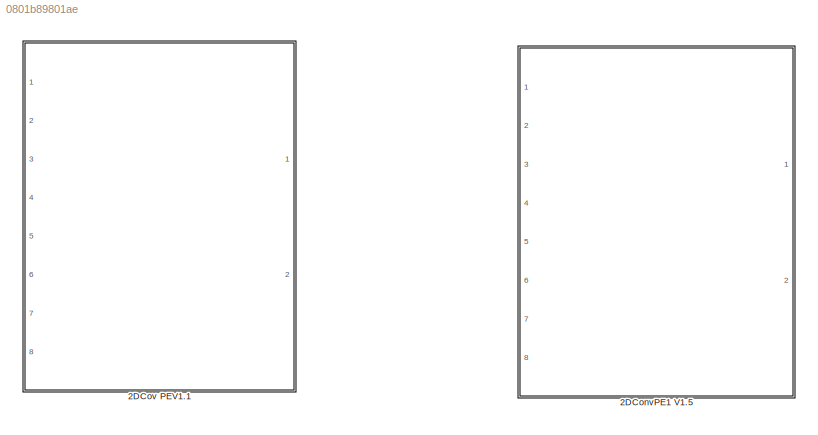
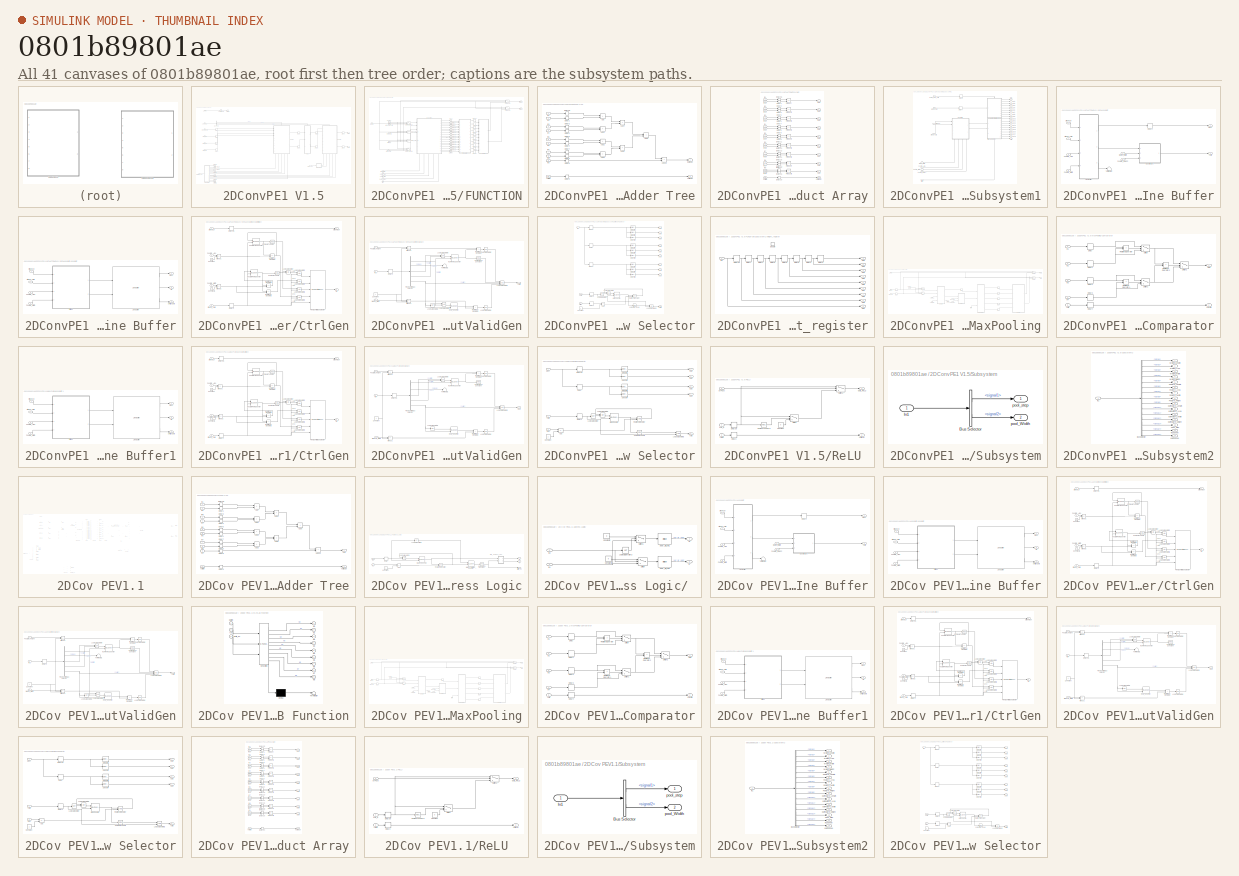
[diagram: thumbnail index - all 41 canvases of the model, root first then tree order]
MODEL slx_0801b89801ae
KIND model
CONFIG AbsTol = auto
CONFIG EnableMultiTasking = off
CONFIG FixedStep = auto
CONFIG MaxStep = auto
CONFIG MinStep = auto
CONFIG RelTol = 1e-3
CONFIG SampleTimeConstraint = Unconstrained
CONFIG SolverName = VariableStepAuto
CONFIG StartTime = 0.0
CONFIG StopTime = 10.0
BLOCK [SubSystem] 2DConvPE1 V1.5
  PortSchema = {"entries":[{"content":{"sides":[{"content":{"connectorIds":["In1","In2","In3","In4","In5","In6"]},"type":"ConnectorPlacement.EquallySpacedRectSide","uuid":"72a132f7-3e47-4ef1-8d79-baadbeb84817"},{"content":{"connectorIds":["Out1","Out2"],"side":"RIGHT"},"type":"ConnectorPlacement.EquallySpacedRectSide","uuid":"2df9bf31-2175-4d97-aafa-a0227f37f2af"},{"content":{"connectorIds":["In7","In8"],"side":...<+576ch>
  Ports = [8, 2]
  RequestExecContextInheritance = off
BLOCK [BusSelector] 2DConvPE1 V1.5/Bus Selector
  OutputSignals = signal1,signal2,signal3
  Ports = [1, 3]
BLOCK [Inport] 2DConvPE1 V1.5/Conv_en
  Port = 7
BLOCK [Delay] 2DConvPE1 V1.5/Delay
  DelayLength = 1
  InputPortMap = u0
  Ports = [1, 1]
BLOCK [Delay] 2DConvPE1 V1.5/Delay1
  DelayLength = 1
  InputPortMap = u0
  Ports = [1, 1]
BLOCK [Delay] 2DConvPE1 V1.5/Delay2
  DelayLength = 1
  InputPortMap = u0
  Ports = [1, 1]
BLOCK [Delay] 2DConvPE1 V1.5/Delay3
  DelayLength = 1
  InputPortMap = u0
  Ports = [1, 1]
BLOCK [Delay] 2DConvPE1 V1.5/Delay35
  DelayLength = 1
  InputPortMap = u0
  Ports = [1, 1]
BLOCK [Delay] 2DConvPE1 V1.5/Delay36
  DelayLength = 1
  InputPortMap = u0
  Ports = [1, 1]
BLOCK [Delay] 2DConvPE1 V1.5/Delay37
  DelayLength = 1
  InputPortMap = u0
  Ports = [1, 1]
BLOCK [Delay] 2DConvPE1 V1.5/Delay38
  DelayLength = 1
  InputPortMap = u0
  Ports = [1, 1]
BLOCK [Delay] 2DConvPE1 V1.5/Delay39
  DelayLength = 1
  InputPortMap = u0
  Ports = [1, 1]
BLOCK [Delay] 2DConvPE1 V1.5/Delay41
  DelayLength = 1
  InputPortMap = u0
  Ports = [1, 1]
BLOCK [SubSystem] 2DConvPE1 V1.5/FUNCTION
  NameLocation = left
  PortSchema = {"entries":[{"content":{"sides":[{"content":{"connectorIds":["In1","In2","In3","In4"]},"type":"ConnectorPlacement.EquallySpacedRectSide","uuid":"bed083cc-10ce-4f46-a724-2c2c82e71793"},{"content":{"connectorIds":["Out1","Out2"],"side":"RIGHT"},"type":"ConnectorPlacement.EquallySpacedRectSide","uuid":"c0d53dd0-88dc-4789-a28b-52aa625e6829"},{"content":{"connectorIds":["In5"],"side":"TOP"},"type":"Con...<+588ch>
  Ports = [10, 2]
  RequestExecContextInheritance = off
BLOCK [SubSystem] 2DConvPE1 V1.5/FUNCTION/Adder Tree
  Ports = [10, 2]
  RequestExecContextInheritance = off
BLOCK [Sum] 2DConvPE1 V1.5/FUNCTION/Adder Tree/Add
  IconShape = rectangular
  Ports = [2, 1]
BLOCK [Sum] 2DConvPE1 V1.5/FUNCTION/Adder Tree/Add1
  IconShape = rectangular
  Ports = [2, 1]
BLOCK [Sum] 2DConvPE1 V1.5/FUNCTION/Adder Tree/Add10
  IconShape = rectangular
  Ports = [2, 1]
BLOCK [Sum] 2DConvPE1 V1.5/FUNCTION/Adder Tree/Add2
  IconShape = rectangular
  Ports = [2, 1]
BLOCK [Sum] 2DConvPE1 V1.5/FUNCTION/Adder Tree/Add3
  IconShape = rectangular
  Ports = [2, 1]
BLOCK [Sum] 2DConvPE1 V1.5/FUNCTION/Adder Tree/Add4
  IconShape = rectangular
  Ports = [2, 1]
BLOCK [Sum] 2DConvPE1 V1.5/FUNCTION/Adder Tree/Add5
  IconShape = rectangular
  Ports = [2, 1]
BLOCK [Sum] 2DConvPE1 V1.5/FUNCTION/Adder Tree/Add6
  IconShape = rectangular
  Ports = [2, 1]
BLOCK [Delay] 2DConvPE1 V1.5/FUNCTION/Adder Tree/Delay1
  DelayLength = 1
  InputPortMap = u0
  Ports = [1, 1]
BLOCK [Delay] 2DConvPE1 V1.5/FUNCTION/Adder Tree/Delay2
  DelayLength = 1
  InputPortMap = u0
  Ports = [1, 1]
BLOCK [Delay] 2DConvPE1 V1.5/FUNCTION/Adder Tree/Delay3
  DelayLength = 1
  InputPortMap = u0
  Ports = [1, 1]
BLOCK [Delay] 2DConvPE1 V1.5/FUNCTION/Adder Tree/Delay35
  DelayLength = 1
  InputPortMap = u0
  Ports = [1, 1]
BLOCK [Delay] 2DConvPE1 V1.5/FUNCTION/Adder Tree/Delay4
  DelayLength = 1
  InputPortMap = u0
  Ports = [1, 1]
BLOCK [Delay] 2DConvPE1 V1.5/FUNCTION/Adder Tree/Delay5
  DelayLength = 1
  InputPortMap = u0
  Ports = [1, 1]
BLOCK [Delay] 2DConvPE1 V1.5/FUNCTION/Adder Tree/Delay6
  DelayLength = 1
  InputPortMap = u0
  Ports = [1, 1]
BLOCK [Delay] 2DConvPE1 V1.5/FUNCTION/Adder Tree/Delay7
  DelayLength = 1
  InputPortMap = u0
  Ports = [1, 1]
BLOCK [Delay] 2DConvPE1 V1.5/FUNCTION/Adder Tree/Delay8
  DelayLength = 1
  InputPortMap = u0
  Ports = [1, 1]
BLOCK [Delay] 2DConvPE1 V1.5/FUNCTION/Adder Tree/Delay9
  DelayLength = 1
  InputPortMap = u0
  Ports = [1, 1]
BLOCK [Inport] 2DConvPE1 V1.5/FUNCTION/Adder Tree/In1
BLOCK [Inport] 2DConvPE1 V1.5/FUNCTION/Adder Tree/In2
  Port = 2
BLOCK [Inport] 2DConvPE1 V1.5/FUNCTION/Adder Tree/In3
  Port = 3
BLOCK [Inport] 2DConvPE1 V1.5/FUNCTION/Adder Tree/In4
  Port = 4
BLOCK [Inport] 2DConvPE1 V1.5/FUNCTION/Adder Tree/In5
  Port = 5
BLOCK [Inport] 2DConvPE1 V1.5/FUNCTION/Adder Tree/In6
  Port = 6
BLOCK [Inport] 2DConvPE1 V1.5/FUNCTION/Adder Tree/In7
  Port = 7
BLOCK [Inport] 2DConvPE1 V1.5/FUNCTION/Adder Tree/In8
  Port = 8
BLOCK [Inport] 2DConvPE1 V1.5/FUNCTION/Adder Tree/In9
  Port = 9
BLOCK [Outport] 2DConvPE1 V1.5/FUNCTION/Adder Tree/dataOut
BLOCK [Inport] 2DConvPE1 V1.5/FUNCTION/Adder Tree/validIn
  Port = 10
BLOCK [Outport] 2DConvPE1 V1.5/FUNCTION/Adder Tree/validOut
  Port = 2
BLOCK [Constant] 2DConvPE1 V1.5/FUNCTION/Constant
  Value = ZERO
BLOCK [Delay] 2DConvPE1 V1.5/FUNCTION/Delay10
  DelayLength = 1
  InputPortMap = u0
  Ports = [1, 1]
BLOCK [Delay] 2DConvPE1 V1.5/FUNCTION/Delay11
  DelayLength = 1
  InputPortMap = u0
  Ports = [1, 1]
BLOCK [Delay] 2DConvPE1 V1.5/FUNCTION/Delay12
  DelayLength = 1
  InputPortMap = u0
  Ports = [1, 1]
BLOCK [Delay] 2DConvPE1 V1.5/FUNCTION/Delay13
  DelayLength = 1
  InputPortMap = u0
  Ports = [1, 1]
BLOCK [Delay] 2DConvPE1 V1.5/FUNCTION/Delay14
  DelayLength = 1
  InputPortMap = u0
  Ports = [1, 1]
BLOCK [Delay] 2DConvPE1 V1.5/FUNCTION/Delay15
  DelayLength = 1
  InputPortMap = u0
  Ports = [1, 1]
BLOCK [Delay] 2DConvPE1 V1.5/FUNCTION/Delay16
  DelayLength = 1
  InputPortMap = u0
  Ports = [1, 1]
BLOCK [Delay] 2DConvPE1 V1.5/FUNCTION/Delay17
  DelayLength = 1
  InputPortMap = u0
  Ports = [1, 1]
BLOCK [Delay] 2DConvPE1 V1.5/FUNCTION/Delay18
  DelayLength = 1
  InputPortMap = u0
  Ports = [1, 1]
BLOCK [Delay] 2DConvPE1 V1.5/FUNCTION/Delay19
  DelayLength = 1
  InputPortMap = u0
  Ports = [1, 1]
BLOCK [Delay] 2DConvPE1 V1.5/FUNCTION/Delay20
  DelayLength = 1
  InputPortMap = u0
  Ports = [1, 1]
BLOCK [Delay] 2DConvPE1 V1.5/FUNCTION/Delay21
  DelayLength = 1
  InputPortMap = u0
  Ports = [1, 1]
BLOCK [Delay] 2DConvPE1 V1.5/FUNCTION/Delay22
  DelayLength = 1
  InputPortMap = u0
  Ports = [1, 1]
BLOCK [Delay] 2DConvPE1 V1.5/FUNCTION/Delay23
  DelayLength = 1
  InputPortMap = u0
  Ports = [1, 1]
BLOCK [Delay] 2DConvPE1 V1.5/FUNCTION/Delay24
  DelayLength = 1
  InputPortMap = u0
  Ports = [1, 1]
BLOCK [Delay] 2DConvPE1 V1.5/FUNCTION/Delay25
  DelayLength = 1
  InputPortMap = u0
  Ports = [1, 1]
BLOCK [Delay] 2DConvPE1 V1.5/FUNCTION/Delay26
  DelayLength = 1
  InputPortMap = u0
  Ports = [1, 1]
BLOCK [Delay] 2DConvPE1 V1.5/FUNCTION/Delay27
  DelayLength = 1
  InputPortMap = u0
  Ports = [1, 1]
BLOCK [Delay] 2DConvPE1 V1.5/FUNCTION/Delay28
  DelayLength = 1
  InputPortMap = u0
  Ports = [1, 1]
BLOCK [Delay] 2DConvPE1 V1.5/FUNCTION/Delay29
  DelayLength = 1
  InputPortMap = u0
  Ports = [1, 1]
BLOCK [Delay] 2DConvPE1 V1.5/FUNCTION/Delay30
  DelayLength = 1
  InputPortMap = u0
  Ports = [1, 1]
BLOCK [Delay] 2DConvPE1 V1.5/FUNCTION/Delay31
  DelayLength = 1
  InputPortMap = u0
  Ports = [1, 1]
BLOCK [Delay] 2DConvPE1 V1.5/FUNCTION/Delay32
  DelayLength = 1
  InputPortMap = u0
  Ports = [1, 1]
BLOCK [Delay] 2DConvPE1 V1.5/FUNCTION/Delay33
  DelayLength = 1
  InputPortMap = u0
  Ports = [1, 1]
BLOCK [Delay] 2DConvPE1 V1.5/FUNCTION/Delay34
  DelayLength = 1
  InputPortMap = u0
  Ports = [1, 1]
BLOCK [Delay] 2DConvPE1 V1.5/FUNCTION/Delay6
  DelayLength = 1
  InputPortMap = u0
  Ports = [1, 1]
BLOCK [Delay] 2DConvPE1 V1.5/FUNCTION/Delay7
  DelayLength = 1
  InputPortMap = u0
  Ports = [1, 1]
BLOCK [Delay] 2DConvPE1 V1.5/FUNCTION/Delay8
  DelayLength = 1
  InputPortMap = u0
  Ports = [1, 1]
BLOCK [Delay] 2DConvPE1 V1.5/FUNCTION/Delay9
  DelayLength = 1
  InputPortMap = u0
  Ports = [1, 1]
BLOCK [Inport] 2DConvPE1 V1.5/FUNCTION/Feature_Area
  Port = 7
BLOCK [Inport] 2DConvPE1 V1.5/FUNCTION/Feature_Height
  Port = 9
BLOCK [Inport] 2DConvPE1 V1.5/FUNCTION/Feature_Width
  Port = 8
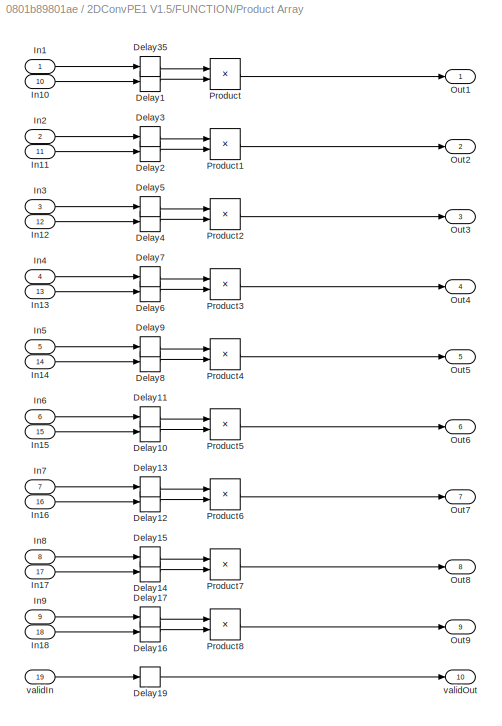
BLOCK [SubSystem] 2DConvPE1 V1.5/FUNCTION/Product Array
  Ports = [19, 10]
  RequestExecContextInheritance = off
BLOCK [Delay] 2DConvPE1 V1.5/FUNCTION/Product Array/Delay1
  DelayLength = 1
  InputPortMap = u0
  Ports = [1, 1]
BLOCK [Delay] 2DConvPE1 V1.5/FUNCTION/Product Array/Delay10
  DelayLength = 1
  InputPortMap = u0
  Ports = [1, 1]
BLOCK [Delay] 2DConvPE1 V1.5/FUNCTION/Product Array/Delay11
  DelayLength = 1
  InputPortMap = u0
  Ports = [1, 1]
BLOCK [Delay] 2DConvPE1 V1.5/FUNCTION/Product Array/Delay12
  DelayLength = 1
  InputPortMap = u0
  Ports = [1, 1]
BLOCK [Delay] 2DConvPE1 V1.5/FUNCTION/Product Array/Delay13
  DelayLength = 1
  InputPortMap = u0
  Ports = [1, 1]
BLOCK [Delay] 2DConvPE1 V1.5/FUNCTION/Product Array/Delay14
  DelayLength = 1
  InputPortMap = u0
  Ports = [1, 1]
BLOCK [Delay] 2DConvPE1 V1.5/FUNCTION/Product Array/Delay15
  DelayLength = 1
  InputPortMap = u0
  Ports = [1, 1]
BLOCK [Delay] 2DConvPE1 V1.5/FUNCTION/Product Array/Delay16
  DelayLength = 1
  InputPortMap = u0
  Ports = [1, 1]
BLOCK [Delay] 2DConvPE1 V1.5/FUNCTION/Product Array/Delay17
  DelayLength = 1
  InputPortMap = u0
  Ports = [1, 1]
BLOCK [Delay] 2DConvPE1 V1.5/FUNCTION/Product Array/Delay19
  DelayLength = 1
  InputPortMap = u0
  Ports = [1, 1]
BLOCK [Delay] 2DConvPE1 V1.5/FUNCTION/Product Array/Delay2
  DelayLength = 1
  InputPortMap = u0
  Ports = [1, 1]
BLOCK [Delay] 2DConvPE1 V1.5/FUNCTION/Product Array/Delay3
  DelayLength = 1
  InputPortMap = u0
  Ports = [1, 1]
BLOCK [Delay] 2DConvPE1 V1.5/FUNCTION/Product Array/Delay35
  DelayLength = 1
  InputPortMap = u0
  Ports = [1, 1]
BLOCK [Delay] 2DConvPE1 V1.5/FUNCTION/Product Array/Delay4
  DelayLength = 1
  InputPortMap = u0
  Ports = [1, 1]
BLOCK [Delay] 2DConvPE1 V1.5/FUNCTION/Product Array/Delay5
  DelayLength = 1
  InputPortMap = u0
  Ports = [1, 1]
BLOCK [Delay] 2DConvPE1 V1.5/FUNCTION/Product Array/Delay6
  DelayLength = 1
  InputPortMap = u0
  Ports = [1, 1]
BLOCK [Delay] 2DConvPE1 V1.5/FUNCTION/Product Array/Delay7
  DelayLength = 1
  InputPortMap = u0
  Ports = [1, 1]
BLOCK [Delay] 2DConvPE1 V1.5/FUNCTION/Product Array/Delay8
  DelayLength = 1
  InputPortMap = u0
  Ports = [1, 1]
BLOCK [Delay] 2DConvPE1 V1.5/FUNCTION/Product Array/Delay9
  DelayLength = 1
  InputPortMap = u0
  Ports = [1, 1]
BLOCK [Inport] 2DConvPE1 V1.5/FUNCTION/Product Array/In1
BLOCK [Inport] 2DConvPE1 V1.5/FUNCTION/Product Array/In10
  Port = 10
BLOCK [Inport] 2DConvPE1 V1.5/FUNCTION/Product Array/In11
  Port = 11
BLOCK [Inport] 2DConvPE1 V1.5/FUNCTION/Product Array/In12
  Port = 12
BLOCK [Inport] 2DConvPE1 V1.5/FUNCTION/Product Array/In13
  Port = 13
BLOCK [Inport] 2DConvPE1 V1.5/FUNCTION/Product Array/In14
  Port = 14
BLOCK [Inport] 2DConvPE1 V1.5/FUNCTION/Product Array/In15
  Port = 15
BLOCK [Inport] 2DConvPE1 V1.5/FUNCTION/Product Array/In16
  Port = 16
BLOCK [Inport] 2DConvPE1 V1.5/FUNCTION/Product Array/In17
  Port = 17
BLOCK [Inport] 2DConvPE1 V1.5/FUNCTION/Product Array/In18
  Port = 18
BLOCK [Inport] 2DConvPE1 V1.5/FUNCTION/Product Array/In2
  Port = 2
BLOCK [Inport] 2DConvPE1 V1.5/FUNCTION/Product Array/In3
  Port = 3
BLOCK [Inport] 2DConvPE1 V1.5/FUNCTION/Product Array/In4
  Port = 4
BLOCK [Inport] 2DConvPE1 V1.5/FUNCTION/Product Array/In5
  Port = 5
BLOCK [Inport] 2DConvPE1 V1.5/FUNCTION/Product Array/In6
  Port = 6
BLOCK [Inport] 2DConvPE1 V1.5/FUNCTION/Product Array/In7
  Port = 7
BLOCK [Inport] 2DConvPE1 V1.5/FUNCTION/Product Array/In8
  Port = 8
BLOCK [Inport] 2DConvPE1 V1.5/FUNCTION/Product Array/In9
  Port = 9
BLOCK [Outport] 2DConvPE1 V1.5/FUNCTION/Product Array/Out1
BLOCK [Outport] 2DConvPE1 V1.5/FUNCTION/Product Array/Out2
  Port = 2
BLOCK [Outport] 2DConvPE1 V1.5/FUNCTION/Product Array/Out3
  Port = 3
BLOCK [Outport] 2DConvPE1 V1.5/FUNCTION/Product Array/Out4
  Port = 4
BLOCK [Outport] 2DConvPE1 V1.5/FUNCTION/Product Array/Out5
  Port = 5
BLOCK [Outport] 2DConvPE1 V1.5/FUNCTION/Product Array/Out6
  Port = 6
BLOCK [Outport] 2DConvPE1 V1.5/FUNCTION/Product Array/Out7
  Port = 7
BLOCK [Outport] 2DConvPE1 V1.5/FUNCTION/Product Array/Out8
  Port = 8
BLOCK [Outport] 2DConvPE1 V1.5/FUNCTION/Product Array/Out9
  Port = 9
BLOCK [Product] 2DConvPE1 V1.5/FUNCTION/Product Array/Product
  Ports = [2, 1]
BLOCK [Product] 2DConvPE1 V1.5/FUNCTION/Product Array/Product1
  Ports = [2, 1]
BLOCK [Product] 2DConvPE1 V1.5/FUNCTION/Product Array/Product2
  Ports = [2, 1]
BLOCK [Product] 2DConvPE1 V1.5/FUNCTION/Product Array/Product3
  Ports = [2, 1]
BLOCK [Product] 2DConvPE1 V1.5/FUNCTION/Product Array/Product4
  Ports = [2, 1]
BLOCK [Product] 2DConvPE1 V1.5/FUNCTION/Product Array/Product5
  Ports = [2, 1]
BLOCK [Product] 2DConvPE1 V1.5/FUNCTION/Product Array/Product6
  Ports = [2, 1]
BLOCK [Product] 2DConvPE1 V1.5/FUNCTION/Product Array/Product7
  Ports = [2, 1]
BLOCK [Product] 2DConvPE1 V1.5/FUNCTION/Product Array/Product8
  Ports = [2, 1]
BLOCK [Inport] 2DConvPE1 V1.5/FUNCTION/Product Array/validIn
  Port = 19
BLOCK [Outport] 2DConvPE1 V1.5/FUNCTION/Product Array/validOut
  Port = 10
BLOCK [Inport] 2DConvPE1 V1.5/FUNCTION/Stream_In
  Port = 3
BLOCK [Inport] 2DConvPE1 V1.5/FUNCTION/Stream_Valid
  Port = 4
BLOCK [SubSystem] 2DConvPE1 V1.5/FUNCTION/Subsystem1
  PortSchema = {"entries":[{"content":{"sides":[{"content":{"connectorIds":["In1","In2","In3","In4"]},"type":"ConnectorPlacement.EquallySpacedRectSide","uuid":"29b80ed8-848a-41c0-b6e7-f177bb4434f3"},{"content":{"connectorIds":["Out1","Out2","Out3","Out4","Out5","Out6","Out7","Out8","Out9","Out10","Out11","Out12","Out13","Out14","Out15","Out16","Out17","Out18","Out19"],"side":"RIGHT"},"type":"ConnectorPlacement.E...<+711ch>
  Ports = [9, 19]
  RequestExecContextInheritance = off
BLOCK [Delay] 2DConvPE1 V1.5/FUNCTION/Subsystem1/Delay4
  InputPortMap = u0
  Ports = [1, 1]
BLOCK [Delay] 2DConvPE1 V1.5/FUNCTION/Subsystem1/Delay5
  InputPortMap = u0
  Ports = [1, 1]
BLOCK [Inport] 2DConvPE1 V1.5/FUNCTION/Subsystem1/Feature_Area
  Port = 6
BLOCK [Inport] 2DConvPE1 V1.5/FUNCTION/Subsystem1/Feature_Height
  Port = 8
BLOCK [Inport] 2DConvPE1 V1.5/FUNCTION/Subsystem1/Feature_Width
  Port = 7
BLOCK [SubSystem] 2DConvPE1 V1.5/FUNCTION/Subsystem1/LIne Buffer
  NameLocation = top
  PortSchema = {"entries":[{"content":{"sides":[{"content":{"connectorIds":["In1","In2"]},"type":"ConnectorPlacement.EquallySpacedRectSide","uuid":"a250c848-7a40-462c-bfcf-0ff48046d99d"},{"content":{"connectorIds":["Out1","Out2"],"side":"RIGHT"},"type":"ConnectorPlacement.EquallySpacedRectSide","uuid":"81aecf2d-6bfb-4d40-80c7-cfb89c921406"},{"content":{"connectorIds":[],"side":"TOP"},"type":"ConnectorPlacement.E...<+564ch>
  Ports = [6, 2]
  RequestExecContextInheritance = off
BLOCK [Delay] 2DConvPE1 V1.5/FUNCTION/Subsystem1/LIne Buffer/Delay2
  DelayLength = 1
  InputPortMap = u0
  Ports = [1, 1]
BLOCK [Inport] 2DConvPE1 V1.5/FUNCTION/Subsystem1/LIne Buffer/Feature_Area
  Port = 4
BLOCK [Inport] 2DConvPE1 V1.5/FUNCTION/Subsystem1/LIne Buffer/Feature_Height
  Port = 6
BLOCK [Inport] 2DConvPE1 V1.5/FUNCTION/Subsystem1/LIne Buffer/Feature_Width
  Port = 5
BLOCK [SubSystem] 2DConvPE1 V1.5/FUNCTION/Subsystem1/LIne Buffer/Line Buffer
  Ports = [4, 3]
  RequestExecContextInheritance = off
BLOCK [SubSystem] 2DConvPE1 V1.5/FUNCTION/Subsystem1/LIne Buffer/Line Buffer/CtrlGen
  Ports = [4, 2]
  RequestExecContextInheritance = off
BLOCK [Reference] 2DConvPE1 V1.5/FUNCTION/Subsystem1/LIne Buffer/Line Buffer/CtrlGen/Compare To Zero  REF=simulink/Logic and Bit
Operations/Compare
To Zero
  Ports = [1, 1]
  SourceBlock = simulink/Logic and Bit\nOperations/Compare\nTo Zero
  SourceProductBaseCode = SL
  SourceType = Compare To Zero
BLOCK [Reference] 2DConvPE1 V1.5/FUNCTION/Subsystem1/LIne Buffer/Line Buffer/CtrlGen/Compare To Zero1  REF=simulink/Logic and Bit
Operations/Compare
To Zero
  Ports = [1, 1]
  SourceBlock = simulink/Logic and Bit\nOperations/Compare\nTo Zero
  SourceProductBaseCode = SL
  SourceType = Compare To Zero
BLOCK [Constant] 2DConvPE1 V1.5/FUNCTION/Subsystem1/LIne Buffer/Line Buffer/CtrlGen/Constant
  OutDataTypeStr = uint32
  SampleTime = -1
BLOCK [Constant] 2DConvPE1 V1.5/FUNCTION/Subsystem1/LIne Buffer/Line Buffer/CtrlGen/Constant1
  OutDataTypeStr = uint32
  SampleTime = -1
BLOCK [Outport] 2DConvPE1 V1.5/FUNCTION/Subsystem1/LIne Buffer/Line Buffer/CtrlGen/Ctrl
  Port = 2
BLOCK [Delay] 2DConvPE1 V1.5/FUNCTION/Subsystem1/LIne Buffer/Line Buffer/CtrlGen/Delay3
  DelayLength = 1
  InputPortMap = u0
  Ports = [1, 1]
BLOCK [Delay] 2DConvPE1 V1.5/FUNCTION/Subsystem1/LIne Buffer/Line Buffer/CtrlGen/Delay35
  DelayLength = 1
  InputPortMap = u0
  Ports = [1, 1]
BLOCK [Reference] 2DConvPE1 V1.5/FUNCTION/Subsystem1/LIne Buffer/Line Buffer/CtrlGen/Feature Area Counter  REF=hdlsllib/Sources/HDL Counter
  Ports = [2, 1]
  SourceBlock = hdlsllib/Sources/HDL Counter
  SourceProductName = HDL Coder
  SourceType = HDL Counter
BLOCK [Reference] 2DConvPE1 V1.5/FUNCTION/Subsystem1/LIne Buffer/Line Buffer/CtrlGen/Feature Row Counter  REF=hdlsllib/Sources/HDL Counter
  Ports = [2, 1]
  SourceBlock = hdlsllib/Sources/HDL Counter
  SourceProductName = HDL Coder
  SourceType = HDL Counter
BLOCK [Inport] 2DConvPE1 V1.5/FUNCTION/Subsystem1/LIne Buffer/Line Buffer/CtrlGen/Feature_Area
  Port = 3
BLOCK [Inport] 2DConvPE1 V1.5/FUNCTION/Subsystem1/LIne Buffer/Line Buffer/CtrlGen/Feature_Width
  Port = 4
BLOCK [Logic] 2DConvPE1 V1.5/FUNCTION/Subsystem1/LIne Buffer/Line Buffer/CtrlGen/Logical Operator
  AllPortsSameDT = off
  Operator = OR
  OutDataTypeStr = boolean
  Ports = [2, 1]
BLOCK [Logic] 2DConvPE1 V1.5/FUNCTION/Subsystem1/LIne Buffer/Line Buffer/CtrlGen/Logical Operator1
  AllPortsSameDT = off
  OutDataTypeStr = boolean
  Ports = [2, 1]
BLOCK [Logic] 2DConvPE1 V1.5/FUNCTION/Subsystem1/LIne Buffer/Line Buffer/CtrlGen/Logical Operator2
  AllPortsSameDT = off
  OutDataTypeStr = boolean
  Ports = [2, 1]
BLOCK [Logic] 2DConvPE1 V1.5/FUNCTION/Subsystem1/LIne Buffer/Line Buffer/CtrlGen/Logical Operator3
  AllPortsSameDT = off
  OutDataTypeStr = boolean
  Ports = [2, 1]
BLOCK [Logic] 2DConvPE1 V1.5/FUNCTION/Subsystem1/LIne Buffer/Line Buffer/CtrlGen/Logical Operator5
  AllPortsSameDT = off
  OutDataTypeStr = boolean
  Ports = [2, 1]
BLOCK [Sum] 2DConvPE1 V1.5/FUNCTION/Subsystem1/LIne Buffer/Line Buffer/CtrlGen/Minus1
  IconShape = rectangular
  Inputs = +-
  Ports = [2, 1]
BLOCK [Sum] 2DConvPE1 V1.5/FUNCTION/Subsystem1/LIne Buffer/Line Buffer/CtrlGen/Minus2
  IconShape = rectangular
  Inputs = +-
  Ports = [2, 1]
BLOCK [Reference] 2DConvPE1 V1.5/FUNCTION/Subsystem1/LIne Buffer/Line Buffer/CtrlGen/Pixel Control Bus Creator  REF=visionhdlutilities/Pixel Control
Bus Creator
  Ports = [5, 1]
  SourceBlock = visionhdlutilities/Pixel Control\nBus Creator
  SourceProductBaseCode = VT
  SourceType = Pixel Control Bus Creator
BLOCK [RelationalOperator] 2DConvPE1 V1.5/FUNCTION/Subsystem1/LIne Buffer/Line Buffer/CtrlGen/Relational Operator1
  InputSameDT = off
  Operator = ==
  OutDataTypeStr = boolean
  Ports = [2, 1]
BLOCK [RelationalOperator] 2DConvPE1 V1.5/FUNCTION/Subsystem1/LIne Buffer/Line Buffer/CtrlGen/Relational Operator2
  InputSameDT = off
  Operator = ==
  OutDataTypeStr = boolean
  Ports = [2, 1]
BLOCK [RelationalOperator] 2DConvPE1 V1.5/FUNCTION/Subsystem1/LIne Buffer/Line Buffer/CtrlGen/Relational Operator3
  InputSameDT = off
  Operator = ==
  OutDataTypeStr = boolean
  Ports = [2, 1]
BLOCK [Outport] 2DConvPE1 V1.5/FUNCTION/Subsystem1/LIne Buffer/Line Buffer/CtrlGen/StreamOut
BLOCK [Inport] 2DConvPE1 V1.5/FUNCTION/Subsystem1/LIne Buffer/Line Buffer/CtrlGen/Stream_In
BLOCK [Inport] 2DConvPE1 V1.5/FUNCTION/Subsystem1/LIne Buffer/Line Buffer/CtrlGen/Stream_Valid
  Port = 2
BLOCK [Inport] 2DConvPE1 V1.5/FUNCTION/Subsystem1/LIne Buffer/Line Buffer/Feature_Area
  Port = 3
BLOCK [Inport] 2DConvPE1 V1.5/FUNCTION/Subsystem1/LIne Buffer/Line Buffer/Feature_Width
  Port = 4
BLOCK [Reference] 2DConvPE1 V1.5/FUNCTION/Subsystem1/LIne Buffer/Line Buffer/Line Buffer  REF=visionhdlutilities/Line Buffer
  Ports = [2, 3]
  SourceBlock = visionhdlutilities/Line Buffer
  SourceProductBaseCode = VT
  SourceType = visionhdl.LineBuffer
BLOCK [Inport] 2DConvPE1 V1.5/FUNCTION/Subsystem1/LIne Buffer/Line Buffer/Stream_In
BLOCK [Inport] 2DConvPE1 V1.5/FUNCTION/Subsystem1/LIne Buffer/Line Buffer/Stream_Valid
  Port = 2
BLOCK [Outport] 2DConvPE1 V1.5/FUNCTION/Subsystem1/LIne Buffer/Line Buffer/ctrl
  Port = 2
BLOCK [Outport] 2DConvPE1 V1.5/FUNCTION/Subsystem1/LIne Buffer/Line Buffer/pixel
BLOCK [Outport] 2DConvPE1 V1.5/FUNCTION/Subsystem1/LIne Buffer/Line Buffer/shftEnable
  Port = 3
BLOCK [SubSystem] 2DConvPE1 V1.5/FUNCTION/Subsystem1/LIne Buffer/OutValidGen
  Ports = [3, 1]
  RequestExecContextInheritance = off
BLOCK [Reference] 2DConvPE1 V1.5/FUNCTION/Subsystem1/LIne Buffer/OutValidGen/Compare To Constant  REF=simulink/Logic and Bit
Operations/Compare
To Constant
  Ports = [1, 1]
  SourceBlock = simulink/Logic and Bit\nOperations/Compare\nTo Constant
  SourceProductBaseCode = SL
  SourceType = Compare To Constant
BLOCK [Constant] 2DConvPE1 V1.5/FUNCTION/Subsystem1/LIne Buffer/OutValidGen/Constant
  OutDataTypeStr = uint32
  SampleTime = -1
BLOCK [Delay] 2DConvPE1 V1.5/FUNCTION/Subsystem1/LIne Buffer/OutValidGen/Delay2
  DelayLength = 1
  InputPortMap = u0
  Ports = [1, 1]
BLOCK [Inport] 2DConvPE1 V1.5/FUNCTION/Subsystem1/LIne Buffer/OutValidGen/Feature_Height
  Port = 3
BLOCK [Inport] 2DConvPE1 V1.5/FUNCTION/Subsystem1/LIne Buffer/OutValidGen/In1
BLOCK [Logic] 2DConvPE1 V1.5/FUNCTION/Subsystem1/LIne Buffer/OutValidGen/Logical Operator1
  AllPortsSameDT = off
  Operator = NOT
  OutDataTypeStr = boolean
  Ports = [1, 1]
BLOCK [Logic] 2DConvPE1 V1.5/FUNCTION/Subsystem1/LIne Buffer/OutValidGen/Logical Operator2
  AllPortsSameDT = off
  Operator = OR
  OutDataTypeStr = boolean
  Ports = [2, 1]
BLOCK [Logic] 2DConvPE1 V1.5/FUNCTION/Subsystem1/LIne Buffer/OutValidGen/Logical Operator3
  AllPortsSameDT = off
  Inputs = 4
  OutDataTypeStr = boolean
  Ports = [4, 1]
BLOCK [Logic] 2DConvPE1 V1.5/FUNCTION/Subsystem1/LIne Buffer/OutValidGen/Logical Operator4
  AllPortsSameDT = off
  Operator = NOT
  OutDataTypeStr = boolean
  Ports = [1, 1]
BLOCK [Logic] 2DConvPE1 V1.5/FUNCTION/Subsystem1/LIne Buffer/OutValidGen/Logical Operator5
  AllPortsSameDT = off
  Operator = OR
  OutDataTypeStr = boolean
  Ports = [2, 1]
BLOCK [Logic] 2DConvPE1 V1.5/FUNCTION/Subsystem1/LIne Buffer/OutValidGen/Logical Operator6
  AllPortsSameDT = off
  Inputs = 3
  Operator = NOT
  OutDataTypeStr = boolean
  Ports = [1, 1]
BLOCK [Sum] 2DConvPE1 V1.5/FUNCTION/Subsystem1/LIne Buffer/OutValidGen/Minus1
  IconShape = rectangular
  Inputs = +--
  Ports = [3, 1]
BLOCK [Sum] 2DConvPE1 V1.5/FUNCTION/Subsystem1/LIne Buffer/OutValidGen/Minus2
  IconShape = rectangular
  Inputs = +-
  Ports = [2, 1]
BLOCK [Reference] 2DConvPE1 V1.5/FUNCTION/Subsystem1/LIne Buffer/OutValidGen/NumRow_Counter  REF=hdlsllib/Sources/HDL Counter
  Ports = [2, 1]
  SourceBlock = hdlsllib/Sources/HDL Counter
  SourceProductName = HDL Coder
  SourceType = HDL Counter
BLOCK [BusSelector] 2DConvPE1 V1.5/FUNCTION/Subsystem1/LIne Buffer/OutValidGen/Pixel Control Bus Selector
  OutputSignals = hStart,hEnd,vStart,vEnd,valid
  Ports = [1, 5]
BLOCK [RelationalOperator] 2DConvPE1 V1.5/FUNCTION/Subsystem1/LIne Buffer/OutValidGen/Relational Operator1
  InputSameDT = off
  Operator = <
  OutDataTypeStr = boolean
  Ports = [2, 1]
BLOCK [RelationalOperator] 2DConvPE1 V1.5/FUNCTION/Subsystem1/LIne Buffer/OutValidGen/Relational Operator2
  InputSameDT = off
  Operator = <=
  OutDataTypeStr = boolean
  Ports = [2, 1]
BLOCK [Reference] 2DConvPE1 V1.5/FUNCTION/Subsystem1/LIne Buffer/OutValidGen/Row_Counter  REF=hdlsllib/Sources/HDL Counter
  Ports = [2, 1]
  SourceBlock = hdlsllib/Sources/HDL Counter
  SourceProductName = HDL Coder
  SourceType = HDL Counter
BLOCK [Terminator] 2DConvPE1 V1.5/FUNCTION/Subsystem1/LIne Buffer/OutValidGen/Terminator1
BLOCK [Inport] 2DConvPE1 V1.5/FUNCTION/Subsystem1/LIne Buffer/OutValidGen/Weight_Width
  Port = 2
BLOCK [Outport] 2DConvPE1 V1.5/FUNCTION/Subsystem1/LIne Buffer/OutValidGen/valid
BLOCK [Inport] 2DConvPE1 V1.5/FUNCTION/Subsystem1/LIne Buffer/Stream_In
BLOCK [Inport] 2DConvPE1 V1.5/FUNCTION/Subsystem1/LIne Buffer/Stream_Valid
  Port = 2
BLOCK [Terminator] 2DConvPE1 V1.5/FUNCTION/Subsystem1/LIne Buffer/Terminator
BLOCK [Inport] 2DConvPE1 V1.5/FUNCTION/Subsystem1/LIne Buffer/Weight_Width
  Port = 3
BLOCK [Outport] 2DConvPE1 V1.5/FUNCTION/Subsystem1/LIne Buffer/pixel
BLOCK [Outport] 2DConvPE1 V1.5/FUNCTION/Subsystem1/LIne Buffer/valid
  Port = 2
BLOCK [Outport] 2DConvPE1 V1.5/FUNCTION/Subsystem1/Out1
BLOCK [Outport] 2DConvPE1 V1.5/FUNCTION/Subsystem1/Out10
  Port = 10
BLOCK [Outport] 2DConvPE1 V1.5/FUNCTION/Subsystem1/Out11
  Port = 11
BLOCK [Outport] 2DConvPE1 V1.5/FUNCTION/Subsystem1/Out12
  Port = 12
BLOCK [Outport] 2DConvPE1 V1.5/FUNCTION/Subsystem1/Out13
  Port = 13
BLOCK [Outport] 2DConvPE1 V1.5/FUNCTION/Subsystem1/Out14
  Port = 14
BLOCK [Outport] 2DConvPE1 V1.5/FUNCTION/Subsystem1/Out15
  Port = 15
BLOCK [Outport] 2DConvPE1 V1.5/FUNCTION/Subsystem1/Out16
  Port = 16
BLOCK [Outport] 2DConvPE1 V1.5/FUNCTION/Subsystem1/Out17
  Port = 17
BLOCK [Outport] 2DConvPE1 V1.5/FUNCTION/Subsystem1/Out18
  Port = 18
BLOCK [Outport] 2DConvPE1 V1.5/FUNCTION/Subsystem1/Out2
  Port = 2
BLOCK [Outport] 2DConvPE1 V1.5/FUNCTION/Subsystem1/Out3
  Port = 3
BLOCK [Outport] 2DConvPE1 V1.5/FUNCTION/Subsystem1/Out4
  Port = 4
BLOCK [Outport] 2DConvPE1 V1.5/FUNCTION/Subsystem1/Out5
  Port = 5
BLOCK [Outport] 2DConvPE1 V1.5/FUNCTION/Subsystem1/Out6
  Port = 6
BLOCK [Outport] 2DConvPE1 V1.5/FUNCTION/Subsystem1/Out7
  Port = 7
BLOCK [Outport] 2DConvPE1 V1.5/FUNCTION/Subsystem1/Out8
  Port = 8
BLOCK [Outport] 2DConvPE1 V1.5/FUNCTION/Subsystem1/Out9
  Port = 9
BLOCK [Inport] 2DConvPE1 V1.5/FUNCTION/Subsystem1/Stream_In
  Port = 3
BLOCK [Inport] 2DConvPE1 V1.5/FUNCTION/Subsystem1/Stream_Valid
  Port = 4
BLOCK [Outport] 2DConvPE1 V1.5/FUNCTION/Subsystem1/Valid
  Port = 19
BLOCK [Inport] 2DConvPE1 V1.5/FUNCTION/Subsystem1/Weight_Width
  Port = 5
BLOCK [SubSystem] 2DConvPE1 V1.5/FUNCTION/Subsystem1/Window Selector
  PortSchema = {"entries":[{"content":{"sides":[{"content":{"connectorIds":["In1","In2"]},"type":"ConnectorPlacement.EquallySpacedRectSide","uuid":"2f98ee57-d732-418e-86bd-7acbaf2524e0"},{"content":{"connectorIds":["Out1","Out2","Out3","Out4","Out5","Out6","Out7","Out8","Out9","Out10"],"side":"RIGHT"},"type":"ConnectorPlacement.EquallySpacedRectSide","uuid":"287ad403-178f-48f1-9791-2ccad363e9c6"},{"content":{"co...<+603ch>
  Ports = [3, 10]
  RequestExecContextInheritance = off
BLOCK [Sum] 2DConvPE1 V1.5/FUNCTION/Subsystem1/Window Selector/Add
  IconShape = rectangular
  Inputs = +-
  Ports = [2, 1]
BLOCK [Reference] 2DConvPE1 V1.5/FUNCTION/Subsystem1/Window Selector/Compare To Zero  REF=simulink/Logic and Bit
Operations/Compare
To Zero
  Ports = [1, 1]
  SourceBlock = simulink/Logic and Bit\nOperations/Compare\nTo Zero
  SourceProductBaseCode = SL
  SourceType = Compare To Zero
BLOCK [Constant] 2DConvPE1 V1.5/FUNCTION/Subsystem1/Window Selector/Constant
  OutDataTypeStr = uint32
BLOCK [Delay] 2DConvPE1 V1.5/FUNCTION/Subsystem1/Window Selector/Delay
  InputPortMap = u0
  Ports = [1, 1]
BLOCK [Delay] 2DConvPE1 V1.5/FUNCTION/Subsystem1/Window Selector/Delay1
  DelayLength = 3
  InputPortMap = u0
  Ports = [1, 1]
BLOCK [Delay] 2DConvPE1 V1.5/FUNCTION/Subsystem1/Window Selector/Delay2
  DelayLength = 1
  InputPortMap = u0
  Ports = [1, 1]
BLOCK [Delay] 2DConvPE1 V1.5/FUNCTION/Subsystem1/Window Selector/Delay3
  DelayLength = 1
  InputPortMap = u0
  Ports = [1, 1]
BLOCK [Delay] 2DConvPE1 V1.5/FUNCTION/Subsystem1/Window Selector/Delay4
  DelayLength = 1
  InputPortMap = u0
  Ports = [1, 1]
BLOCK [Inport] 2DConvPE1 V1.5/FUNCTION/Subsystem1/Window Selector/In1
BLOCK [Logic] 2DConvPE1 V1.5/FUNCTION/Subsystem1/Window Selector/Logical Operator
  AllPortsSameDT = off
  Operator = NOT
  OutDataTypeStr = boolean
  Ports = [1, 1]
BLOCK [Logic] 2DConvPE1 V1.5/FUNCTION/Subsystem1/Window Selector/Logical Operator1
  AllPortsSameDT = off
  Operator = OR
  OutDataTypeStr = boolean
  Ports = [2, 1]
BLOCK [Logic] 2DConvPE1 V1.5/FUNCTION/Subsystem1/Window Selector/Logical Operator2
  AllPortsSameDT = off
  OutDataTypeStr = boolean
  Ports = [2, 1]
BLOCK [Outport] 2DConvPE1 V1.5/FUNCTION/Subsystem1/Window Selector/Out1
BLOCK [Outport] 2DConvPE1 V1.5/FUNCTION/Subsystem1/Window Selector/Out2
  Port = 2
BLOCK [Outport] 2DConvPE1 V1.5/FUNCTION/Subsystem1/Window Selector/Out3
  Port = 3
BLOCK [Outport] 2DConvPE1 V1.5/FUNCTION/Subsystem1/Window Selector/Out4
  Port = 4
BLOCK [Outport] 2DConvPE1 V1.5/FUNCTION/Subsystem1/Window Selector/Out5
  Port = 5
BLOCK [Outport] 2DConvPE1 V1.5/FUNCTION/Subsystem1/Window Selector/Out6
  Port = 6
BLOCK [Outport] 2DConvPE1 V1.5/FUNCTION/Subsystem1/Window Selector/Out7
  Port = 7
BLOCK [Outport] 2DConvPE1 V1.5/FUNCTION/Subsystem1/Window Selector/Out8
  Port = 8
BLOCK [Outport] 2DConvPE1 V1.5/FUNCTION/Subsystem1/Window Selector/Out9
  Port = 9
BLOCK [RelationalOperator] 2DConvPE1 V1.5/FUNCTION/Subsystem1/Window Selector/Relational Operator
  InputSameDT = off
  OutDataTypeStr = boolean
  Ports = [2, 1]
BLOCK [Selector] 2DConvPE1 V1.5/FUNCTION/Subsystem1/Window Selector/Selector1
  IndexOptions = Index vector (dialog)
  Indices = [1]
  InputPortWidth = 3
  OutputSizes = 1
  Ports = [1, 1]
BLOCK [Selector] 2DConvPE1 V1.5/FUNCTION/Subsystem1/Window Selector/Selector2
  IndexOptions = Index vector (dialog)
  Indices = [2]
  InputPortWidth = 3
  OutputSizes = 1
  Ports = [1, 1]
BLOCK [Selector] 2DConvPE1 V1.5/FUNCTION/Subsystem1/Window Selector/Selector3
  IndexOptions = Index vector (dialog)
  Indices = [3]
  InputPortWidth = 3
  OutputSizes = 1
  Ports = [1, 1]
BLOCK [Selector] 2DConvPE1 V1.5/FUNCTION/Subsystem1/Window Selector/Selector4
  IndexOptions = Index vector (dialog)
  Indices = [1]
  InputPortWidth = 3
  OutputSizes = 1
  Ports = [1, 1]
BLOCK [Selector] 2DConvPE1 V1.5/FUNCTION/Subsystem1/Window Selector/Selector5
  IndexOptions = Index vector (dialog)
  Indices = [2]
  InputPortWidth = 3
  OutputSizes = 1
  Ports = [1, 1]
BLOCK [Selector] 2DConvPE1 V1.5/FUNCTION/Subsystem1/Window Selector/Selector6
  IndexOptions = Index vector (dialog)
  Indices = [3]
  InputPortWidth = 3
  OutputSizes = 1
  Ports = [1, 1]
BLOCK [Selector] 2DConvPE1 V1.5/FUNCTION/Subsystem1/Window Selector/Selector7
  IndexOptions = Index vector (dialog)
  Indices = [1]
  InputPortWidth = 3
  OutputSizes = 1
  Ports = [1, 1]
BLOCK [Selector] 2DConvPE1 V1.5/FUNCTION/Subsystem1/Window Selector/Selector8
  IndexOptions = Index vector (dialog)
  Indices = [2]
  InputPortWidth = 3
  OutputSizes = 1
  Ports = [1, 1]
BLOCK [Selector] 2DConvPE1 V1.5/FUNCTION/Subsystem1/Window Selector/Selector9
  IndexOptions = Index vector (dialog)
  Indices = [3]
  InputPortWidth = 3
  OutputSizes = 1
  Ports = [1, 1]
BLOCK [Reference] 2DConvPE1 V1.5/FUNCTION/Subsystem1/Window Selector/Step Counter  REF=hdlsllib/Sources/HDL Counter
  Ports = [2, 1]
  SourceBlock = hdlsllib/Sources/HDL Counter
  SourceProductName = HDL Coder
  SourceType = HDL Counter
BLOCK [Outport] 2DConvPE1 V1.5/FUNCTION/Subsystem1/Window Selector/Valid
  Port = 10
BLOCK [Inport] 2DConvPE1 V1.5/FUNCTION/Subsystem1/Window Selector/stride
  Port = 3
BLOCK [Inport] 2DConvPE1 V1.5/FUNCTION/Subsystem1/Window Selector/valid
  Port = 2
BLOCK [Inport] 2DConvPE1 V1.5/FUNCTION/Subsystem1/stride
  Port = 9
BLOCK [Inport] 2DConvPE1 V1.5/FUNCTION/Subsystem1/weight_data
  Port = 2
BLOCK [Inport] 2DConvPE1 V1.5/FUNCTION/Subsystem1/weight_data_valid
BLOCK [SubSystem] 2DConvPE1 V1.5/FUNCTION/Subsystem1/weight_register
  Ports = [1, 9, 1]
  RequestExecContextInheritance = off
BLOCK [Delay] 2DConvPE1 V1.5/FUNCTION/Subsystem1/weight_register/Delay1
  DelayLength = 1
  InputPortMap = u0
  Ports = [1, 1]
BLOCK [Delay] 2DConvPE1 V1.5/FUNCTION/Subsystem1/weight_register/Delay3
  DelayLength = 1
  InputPortMap = u0
  Ports = [1, 1]
BLOCK [Delay] 2DConvPE1 V1.5/FUNCTION/Subsystem1/weight_register/Delay4
  DelayLength = 1
  InputPortMap = u0
  Ports = [1, 1]
BLOCK [Delay] 2DConvPE1 V1.5/FUNCTION/Subsystem1/weight_register/Delay40
  DelayLength = 1
  InputPortMap = u0
  Ports = [1, 1]
BLOCK [Delay] 2DConvPE1 V1.5/FUNCTION/Subsystem1/weight_register/Delay5
  DelayLength = 1
  InputPortMap = u0
  Ports = [1, 1]
BLOCK [Delay] 2DConvPE1 V1.5/FUNCTION/Subsystem1/weight_register/Delay6
  DelayLength = 1
  InputPortMap = u0
  Ports = [1, 1]
BLOCK [Delay] 2DConvPE1 V1.5/FUNCTION/Subsystem1/weight_register/Delay7
  DelayLength = 1
  InputPortMap = u0
  Ports = [1, 1]
BLOCK [Delay] 2DConvPE1 V1.5/FUNCTION/Subsystem1/weight_register/Delay8
  DelayLength = 1
  InputPortMap = u0
  Ports = [1, 1]
BLOCK [EnablePort] 2DConvPE1 V1.5/FUNCTION/Subsystem1/weight_register/Enable
  Ports = []
BLOCK [Inport] 2DConvPE1 V1.5/FUNCTION/Subsystem1/weight_register/In1
BLOCK [Outport] 2DConvPE1 V1.5/FUNCTION/Subsystem1/weight_register/Out1
  Port = 9
BLOCK [Outport] 2DConvPE1 V1.5/FUNCTION/Subsystem1/weight_register/Out2
BLOCK [Outport] 2DConvPE1 V1.5/FUNCTION/Subsystem1/weight_register/Out3
  Port = 2
BLOCK [Outport] 2DConvPE1 V1.5/FUNCTION/Subsystem1/weight_register/Out4
  Port = 3
BLOCK [Outport] 2DConvPE1 V1.5/FUNCTION/Subsystem1/weight_register/Out5
  Port = 4
BLOCK [Outport] 2DConvPE1 V1.5/FUNCTION/Subsystem1/weight_register/Out6
  Port = 5
BLOCK [Outport] 2DConvPE1 V1.5/FUNCTION/Subsystem1/weight_register/Out7
  Port = 6
BLOCK [Outport] 2DConvPE1 V1.5/FUNCTION/Subsystem1/weight_register/Out8
  Port = 7
BLOCK [Outport] 2DConvPE1 V1.5/FUNCTION/Subsystem1/weight_register/Out9
  Port = 8
BLOCK [Inport] 2DConvPE1 V1.5/FUNCTION/Weight_Width
  Port = 6
BLOCK [Inport] 2DConvPE1 V1.5/FUNCTION/byPass
  Port = 5
BLOCK [Outport] 2DConvPE1 V1.5/FUNCTION/dataOut
BLOCK [Switch] 2DConvPE1 V1.5/FUNCTION/dataOut_SW
  Criteria = u2 > Threshold
  InputSameDT = off
  SaturateOnIntegerOverflow = off
BLOCK [Switch] 2DConvPE1 V1.5/FUNCTION/feature_data_SW
  Criteria = u2 > Threshold
  InputSameDT = off
  SaturateOnIntegerOverflow = off
BLOCK [Switch] 2DConvPE1 V1.5/FUNCTION/feature_valid_SW
  Criteria = u2 > Threshold
  InputSameDT = off
  SaturateOnIntegerOverflow = off
BLOCK [Inport] 2DConvPE1 V1.5/FUNCTION/stride
  Port = 10
BLOCK [Outport] 2DConvPE1 V1.5/FUNCTION/validOut
  Port = 2
BLOCK [Switch] 2DConvPE1 V1.5/FUNCTION/validOut_SW
  Criteria = u2 > Threshold
  InputSameDT = off
  SaturateOnIntegerOverflow = off
BLOCK [Inport] 2DConvPE1 V1.5/FUNCTION/weight_data
  Port = 2
BLOCK [Switch] 2DConvPE1 V1.5/FUNCTION/weight_data_SW
  Criteria = u2 > Threshold
  InputSameDT = off
  SaturateOnIntegerOverflow = off
BLOCK [Inport] 2DConvPE1 V1.5/FUNCTION/weight_data_valid
BLOCK [Switch] 2DConvPE1 V1.5/FUNCTION/weight_valid_SW
  Criteria = u2 > Threshold
  InputSameDT = off
  SaturateOnIntegerOverflow = off
BLOCK [Logic] 2DConvPE1 V1.5/Logical Operator2
  AllPortsSameDT = off
  Operator = NOT
  OutDataTypeStr = boolean
  Ports = [1, 1]
BLOCK [SubSystem] 2DConvPE1 V1.5/MaxPooling
  NameLocation = left
  PortSchema = {"entries":[{"content":{"sides":[{"content":{"connectorIds":["In1","In2"]},"type":"ConnectorPlacement.EquallySpacedRectSide","uuid":"8f082555-10a5-4426-9c6d-30ad9c9edc83"},{"content":{"connectorIds":["Out1","Out2"],"side":"RIGHT"},"type":"ConnectorPlacement.EquallySpacedRectSide","uuid":"2f08e48d-98a7-49ef-9240-49e9a92f7835"},{"content":{"connectorIds":["In3"],"side":"TOP"},"type":"ConnectorPlacem...<+575ch>
  Ports = [8, 2]
  RequestExecContextInheritance = off
BLOCK [Inport] 2DConvPE1 V1.5/MaxPooling/ByPass
  Port = 3
BLOCK [SubSystem] 2DConvPE1 V1.5/MaxPooling/Comparator
  Ports = [5, 2]
  RequestExecContextInheritance = off
BLOCK [Delay] 2DConvPE1 V1.5/MaxPooling/Comparator/Delay
  DelayLength = 1
  InputPortMap = u0
  Ports = [1, 1]
BLOCK [Delay] 2DConvPE1 V1.5/MaxPooling/Comparator/Delay1
  DelayLength = 1
  InputPortMap = u0
  Ports = [1, 1]
BLOCK [Delay] 2DConvPE1 V1.5/MaxPooling/Comparator/Delay2
  DelayLength = 1
  InputPortMap = u0
  Ports = [1, 1]
BLOCK [Delay] 2DConvPE1 V1.5/MaxPooling/Comparator/Delay3
  DelayLength = 1
  InputPortMap = u0
  Ports = [1, 1]
BLOCK [Delay] 2DConvPE1 V1.5/MaxPooling/Comparator/Delay4
  DelayLength = 1
  InputPortMap = u0
  Ports = [1, 1]
BLOCK [Inport] 2DConvPE1 V1.5/MaxPooling/Comparator/In1
BLOCK [Inport] 2DConvPE1 V1.5/MaxPooling/Comparator/In2
  Port = 2
BLOCK [Inport] 2DConvPE1 V1.5/MaxPooling/Comparator/In3
  Port = 3
BLOCK [Inport] 2DConvPE1 V1.5/MaxPooling/Comparator/In4
  Port = 4
BLOCK [Outport] 2DConvPE1 V1.5/MaxPooling/Comparator/Out1
BLOCK [RelationalOperator] 2DConvPE1 V1.5/MaxPooling/Comparator/Relational Operator
  InputSameDT = off
  Operator = >
  OutDataTypeStr = boolean
  Ports = [2, 1]
BLOCK [RelationalOperator] 2DConvPE1 V1.5/MaxPooling/Comparator/Relational Operator1
  InputSameDT = off
  Operator = >
  OutDataTypeStr = boolean
  Ports = [2, 1]
BLOCK [RelationalOperator] 2DConvPE1 V1.5/MaxPooling/Comparator/Relational Operator2
  InputSameDT = off
  Operator = >
  OutDataTypeStr = boolean
  Ports = [2, 1]
BLOCK [Switch] 2DConvPE1 V1.5/MaxPooling/Comparator/Switch
  Criteria = u2 > Threshold
  InputSameDT = off
  SaturateOnIntegerOverflow = off
BLOCK [Switch] 2DConvPE1 V1.5/MaxPooling/Comparator/Switch1
  Criteria = u2 > Threshold
  InputSameDT = off
  SaturateOnIntegerOverflow = off
BLOCK [Switch] 2DConvPE1 V1.5/MaxPooling/Comparator/Switch2
  Criteria = u2 > Threshold
  InputSameDT = off
  SaturateOnIntegerOverflow = off
BLOCK [Inport] 2DConvPE1 V1.5/MaxPooling/Comparator/Valid
  Port = 5
BLOCK [Outport] 2DConvPE1 V1.5/MaxPooling/Comparator/outvalid
  Port = 2
BLOCK [Constant] 2DConvPE1 V1.5/MaxPooling/Constant
  OutDataTypeStr = int32
  Value = 0
BLOCK [Delay] 2DConvPE1 V1.5/MaxPooling/Delay
  DelayLength = 1
  InputPortMap = u0
  Ports = [1, 1]
BLOCK [Delay] 2DConvPE1 V1.5/MaxPooling/Delay1
  DelayLength = 1
  InputPortMap = u0
  Ports = [1, 1]
BLOCK [Delay] 2DConvPE1 V1.5/MaxPooling/Delay2
  DelayLength = 1
  InputPortMap = u0
  Ports = [1, 1]
BLOCK [Delay] 2DConvPE1 V1.5/MaxPooling/Delay3
  DelayLength = 1
  InputPortMap = u0
  Ports = [1, 1]
BLOCK [Delay] 2DConvPE1 V1.5/MaxPooling/Delay36
  DelayLength = 1
  InputPortMap = u0
  Ports = [1, 1]
BLOCK [Delay] 2DConvPE1 V1.5/MaxPooling/Delay4
  DelayLength = 1
  InputPortMap = u0
  Ports = [1, 1]
BLOCK [Delay] 2DConvPE1 V1.5/MaxPooling/Delay5
  DelayLength = 1
  InputPortMap = u0
  Ports = [1, 1]
BLOCK [Delay] 2DConvPE1 V1.5/MaxPooling/Delay6
  DelayLength = 1
  InputPortMap = u0
  Ports = [1, 1]
BLOCK [Inport] 2DConvPE1 V1.5/MaxPooling/Feature_Area
  Port = 6
BLOCK [Inport] 2DConvPE1 V1.5/MaxPooling/Feature_Height
  Port = 8
BLOCK [Inport] 2DConvPE1 V1.5/MaxPooling/Feature_Width
  Port = 7
BLOCK [SubSystem] 2DConvPE1 V1.5/MaxPooling/Line Buffer1
  Ports = [4, 3]
  RequestExecContextInheritance = off
BLOCK [SubSystem] 2DConvPE1 V1.5/MaxPooling/Line Buffer1/CtrlGen
  Ports = [4, 2]
  RequestExecContextInheritance = off
BLOCK [Reference] 2DConvPE1 V1.5/MaxPooling/Line Buffer1/CtrlGen/Compare To Zero  REF=simulink/Logic and Bit
Operations/Compare
To Zero
  Ports = [1, 1]
  SourceBlock = simulink/Logic and Bit\nOperations/Compare\nTo Zero
  SourceProductBaseCode = SL
  SourceType = Compare To Zero
BLOCK [Reference] 2DConvPE1 V1.5/MaxPooling/Line Buffer1/CtrlGen/Compare To Zero1  REF=simulink/Logic and Bit
Operations/Compare
To Zero
  Ports = [1, 1]
  SourceBlock = simulink/Logic and Bit\nOperations/Compare\nTo Zero
  SourceProductBaseCode = SL
  SourceType = Compare To Zero
BLOCK [Constant] 2DConvPE1 V1.5/MaxPooling/Line Buffer1/CtrlGen/Constant
  OutDataTypeStr = uint32
  SampleTime = -1
BLOCK [Constant] 2DConvPE1 V1.5/MaxPooling/Line Buffer1/CtrlGen/Constant1
  OutDataTypeStr = uint32
  SampleTime = -1
BLOCK [Outport] 2DConvPE1 V1.5/MaxPooling/Line Buffer1/CtrlGen/Ctrl
  Port = 2
BLOCK [Delay] 2DConvPE1 V1.5/MaxPooling/Line Buffer1/CtrlGen/Delay1
  DelayLength = 1
  InputPortMap = u0
  Ports = [1, 1]
BLOCK [Delay] 2DConvPE1 V1.5/MaxPooling/Line Buffer1/CtrlGen/Delay36
  DelayLength = 1
  InputPortMap = u0
  Ports = [1, 1]
BLOCK [Reference] 2DConvPE1 V1.5/MaxPooling/Line Buffer1/CtrlGen/Feature Area Counter  REF=hdlsllib/Sources/HDL Counter
  Ports = [2, 1]
  SourceBlock = hdlsllib/Sources/HDL Counter
  SourceProductName = HDL Coder
  SourceType = HDL Counter
BLOCK [Reference] 2DConvPE1 V1.5/MaxPooling/Line Buffer1/CtrlGen/Feature Row Counter  REF=hdlsllib/Sources/HDL Counter
  Ports = [2, 1]
  SourceBlock = hdlsllib/Sources/HDL Counter
  SourceProductName = HDL Coder
  SourceType = HDL Counter
BLOCK [Inport] 2DConvPE1 V1.5/MaxPooling/Line Buffer1/CtrlGen/Feature_Area
  Port = 3
BLOCK [Inport] 2DConvPE1 V1.5/MaxPooling/Line Buffer1/CtrlGen/Feature_Width
  Port = 4
BLOCK [Logic] 2DConvPE1 V1.5/MaxPooling/Line Buffer1/CtrlGen/Logical Operator
  AllPortsSameDT = off
  Operator = OR
  OutDataTypeStr = boolean
  Ports = [2, 1]
BLOCK [Logic] 2DConvPE1 V1.5/MaxPooling/Line Buffer1/CtrlGen/Logical Operator1
  AllPortsSameDT = off
  OutDataTypeStr = boolean
  Ports = [2, 1]
BLOCK [Logic] 2DConvPE1 V1.5/MaxPooling/Line Buffer1/CtrlGen/Logical Operator2
  AllPortsSameDT = off
  OutDataTypeStr = boolean
  Ports = [2, 1]
BLOCK [Logic] 2DConvPE1 V1.5/MaxPooling/Line Buffer1/CtrlGen/Logical Operator3
  AllPortsSameDT = off
  OutDataTypeStr = boolean
  Ports = [2, 1]
BLOCK [Logic] 2DConvPE1 V1.5/MaxPooling/Line Buffer1/CtrlGen/Logical Operator5
  AllPortsSameDT = off
  OutDataTypeStr = boolean
  Ports = [2, 1]
BLOCK [Sum] 2DConvPE1 V1.5/MaxPooling/Line Buffer1/CtrlGen/Minus1
  IconShape = rectangular
  Inputs = +-
  Ports = [2, 1]
BLOCK [Sum] 2DConvPE1 V1.5/MaxPooling/Line Buffer1/CtrlGen/Minus2
  IconShape = rectangular
  Inputs = +-
  Ports = [2, 1]
BLOCK [Reference] 2DConvPE1 V1.5/MaxPooling/Line Buffer1/CtrlGen/Pixel Control Bus Creator  REF=visionhdlutilities/Pixel Control
Bus Creator
  Ports = [5, 1]
  SourceBlock = visionhdlutilities/Pixel Control\nBus Creator
  SourceProductBaseCode = VT
  SourceType = Pixel Control Bus Creator
BLOCK [RelationalOperator] 2DConvPE1 V1.5/MaxPooling/Line Buffer1/CtrlGen/Relational Operator1
  InputSameDT = off
  Operator = ==
  OutDataTypeStr = boolean
  Ports = [2, 1]
BLOCK [RelationalOperator] 2DConvPE1 V1.5/MaxPooling/Line Buffer1/CtrlGen/Relational Operator2
  InputSameDT = off
  Operator = ==
  OutDataTypeStr = boolean
  Ports = [2, 1]
BLOCK [RelationalOperator] 2DConvPE1 V1.5/MaxPooling/Line Buffer1/CtrlGen/Relational Operator3
  InputSameDT = off
  Operator = ==
  OutDataTypeStr = boolean
  Ports = [2, 1]
BLOCK [Outport] 2DConvPE1 V1.5/MaxPooling/Line Buffer1/CtrlGen/StreamOut
BLOCK [Inport] 2DConvPE1 V1.5/MaxPooling/Line Buffer1/CtrlGen/Stream_In
BLOCK [Inport] 2DConvPE1 V1.5/MaxPooling/Line Buffer1/CtrlGen/Stream_Valid
  Port = 2
BLOCK [Inport] 2DConvPE1 V1.5/MaxPooling/Line Buffer1/Feature_Area
  Port = 3
BLOCK [Inport] 2DConvPE1 V1.5/MaxPooling/Line Buffer1/Feature_Width
  Port = 4
BLOCK [Reference] 2DConvPE1 V1.5/MaxPooling/Line Buffer1/Line Buffer  REF=visionhdlutilities/Line Buffer
  Ports = [2, 3]
  SourceBlock = visionhdlutilities/Line Buffer
  SourceProductBaseCode = VT
  SourceType = visionhdl.LineBuffer
BLOCK [Inport] 2DConvPE1 V1.5/MaxPooling/Line Buffer1/Stream_In
BLOCK [Inport] 2DConvPE1 V1.5/MaxPooling/Line Buffer1/Stream_Valid
  Port = 2
BLOCK [Outport] 2DConvPE1 V1.5/MaxPooling/Line Buffer1/ctrl
  Port = 2
BLOCK [Outport] 2DConvPE1 V1.5/MaxPooling/Line Buffer1/pixel
BLOCK [Outport] 2DConvPE1 V1.5/MaxPooling/Line Buffer1/shftEnable
  Port = 3
BLOCK [SubSystem] 2DConvPE1 V1.5/MaxPooling/OutValidGen
  Ports = [3, 1]
  RequestExecContextInheritance = off
BLOCK [Reference] 2DConvPE1 V1.5/MaxPooling/OutValidGen/Compare To Constant  REF=simulink/Logic and Bit
Operations/Compare
To Constant
  Commented = on
  Ports = [1, 1]
  SourceBlock = simulink/Logic and Bit\nOperations/Compare\nTo Constant
  SourceProductBaseCode = SL
  SourceType = Compare To Constant
BLOCK [Constant] 2DConvPE1 V1.5/MaxPooling/OutValidGen/Constant
  OutDataTypeStr = uint32
  SampleTime = -1
BLOCK [Delay] 2DConvPE1 V1.5/MaxPooling/OutValidGen/Delay36
  DelayLength = 1
  InputPortMap = u0
  Ports = [1, 1]
BLOCK [Inport] 2DConvPE1 V1.5/MaxPooling/OutValidGen/Feature_Height
  Port = 3
BLOCK [Logic] 2DConvPE1 V1.5/MaxPooling/OutValidGen/Logical Operator1
  AllPortsSameDT = off
  Operator = NOT
  OutDataTypeStr = boolean
  Ports = [1, 1]
BLOCK [Logic] 2DConvPE1 V1.5/MaxPooling/OutValidGen/Logical Operator3
  AllPortsSameDT = off
  Inputs = 3
  OutDataTypeStr = boolean
  Ports = [3, 1]
BLOCK [Logic] 2DConvPE1 V1.5/MaxPooling/OutValidGen/Logical Operator4
  AllPortsSameDT = off
  Operator = NOT
  OutDataTypeStr = boolean
  Ports = [1, 1]
BLOCK [Logic] 2DConvPE1 V1.5/MaxPooling/OutValidGen/Logical Operator5
  AllPortsSameDT = off
  Operator = OR
  OutDataTypeStr = boolean
  Ports = [2, 1]
BLOCK [Logic] 2DConvPE1 V1.5/MaxPooling/OutValidGen/Logical Operator6
  AllPortsSameDT = off
  Inputs = 3
  Operator = NOT
  OutDataTypeStr = boolean
  Ports = [1, 1]
BLOCK [Sum] 2DConvPE1 V1.5/MaxPooling/OutValidGen/Minus1
  IconShape = rectangular
  Inputs = +-
  Ports = [2, 1]
BLOCK [Sum] 2DConvPE1 V1.5/MaxPooling/OutValidGen/Minus2
  IconShape = rectangular
  Inputs = +-
  Ports = [2, 1]
BLOCK [Reference] 2DConvPE1 V1.5/MaxPooling/OutValidGen/NumRow_Counter  REF=hdlsllib/Sources/HDL Counter
  Ports = [2, 1]
  SourceBlock = hdlsllib/Sources/HDL Counter
  SourceProductName = HDL Coder
  SourceType = HDL Counter
BLOCK [Outport] 2DConvPE1 V1.5/MaxPooling/OutValidGen/Out1
BLOCK [BusSelector] 2DConvPE1 V1.5/MaxPooling/OutValidGen/Pixel Control Bus Selector
  OutputSignals = hStart,hEnd,vStart,vEnd,valid
  Ports = [1, 5]
BLOCK [RelationalOperator] 2DConvPE1 V1.5/MaxPooling/OutValidGen/Relational Operator1
  InputSameDT = off
  Operator = <
  OutDataTypeStr = boolean
  Ports = [2, 1]
BLOCK [RelationalOperator] 2DConvPE1 V1.5/MaxPooling/OutValidGen/Relational Operator2
  InputSameDT = off
  Operator = <=
  OutDataTypeStr = boolean
  Ports = [2, 1]
BLOCK [Reference] 2DConvPE1 V1.5/MaxPooling/OutValidGen/Row_Counter  REF=hdlsllib/Sources/HDL Counter
  Ports = [2, 1]
  SourceBlock = hdlsllib/Sources/HDL Counter
  SourceProductName = HDL Coder
  SourceType = HDL Counter
BLOCK [Terminator] 2DConvPE1 V1.5/MaxPooling/OutValidGen/Terminator1
BLOCK [Inport] 2DConvPE1 V1.5/MaxPooling/OutValidGen/Window_Width
  Port = 2
BLOCK [Inport] 2DConvPE1 V1.5/MaxPooling/OutValidGen/ctrl
BLOCK [Inport] 2DConvPE1 V1.5/MaxPooling/Stream_In
BLOCK [Inport] 2DConvPE1 V1.5/MaxPooling/Stream_Valid
  Port = 2
BLOCK [Switch] 2DConvPE1 V1.5/MaxPooling/Switch
  Criteria = u2 > Threshold
  InputSameDT = off
  SaturateOnIntegerOverflow = off
BLOCK [Switch] 2DConvPE1 V1.5/MaxPooling/Switch1
  Criteria = u2 > Threshold
  InputSameDT = off
  SaturateOnIntegerOverflow = off
BLOCK [Terminator] 2DConvPE1 V1.5/MaxPooling/Terminator1
BLOCK [Outport] 2DConvPE1 V1.5/MaxPooling/Valid
  Port = 2
BLOCK [Inport] 2DConvPE1 V1.5/MaxPooling/Window_Width
  Port = 5
BLOCK [Switch] 2DConvPE1 V1.5/MaxPooling/dataSwitch
  Criteria = u2 > Threshold
  InputSameDT = off
  SaturateOnIntegerOverflow = off
BLOCK [Outport] 2DConvPE1 V1.5/MaxPooling/outdata
BLOCK [Inport] 2DConvPE1 V1.5/MaxPooling/step
  Port = 4
BLOCK [Switch] 2DConvPE1 V1.5/MaxPooling/validSwitch
  Criteria = u2 > Threshold
  InputSameDT = off
  SaturateOnIntegerOverflow = off
BLOCK [SubSystem] 2DConvPE1 V1.5/MaxPooling/window Selector
  Ports = [3, 5]
  RequestExecContextInheritance = off
BLOCK [Sum] 2DConvPE1 V1.5/MaxPooling/window Selector/Add
  IconShape = rectangular
  Inputs = +-
  Ports = [2, 1]
BLOCK [Reference] 2DConvPE1 V1.5/MaxPooling/window Selector/Compare To Zero  REF=simulink/Logic and Bit
Operations/Compare
To Zero
  Ports = [1, 1]
  SourceBlock = simulink/Logic and Bit\nOperations/Compare\nTo Zero
  SourceProductBaseCode = SL
  SourceType = Compare To Zero
BLOCK [Constant] 2DConvPE1 V1.5/MaxPooling/window Selector/Constant
  OutDataTypeStr = uint32
BLOCK [Delay] 2DConvPE1 V1.5/MaxPooling/window Selector/Delay
  InputPortMap = u0
  Ports = [1, 1]
BLOCK [Delay] 2DConvPE1 V1.5/MaxPooling/window Selector/Delay1
  DelayLength = 1
  InputPortMap = u0
  Ports = [1, 1]
BLOCK [Delay] 2DConvPE1 V1.5/MaxPooling/window Selector/Delay36
  DelayLength = 1
  InputPortMap = u0
  Ports = [1, 1]
BLOCK [Logic] 2DConvPE1 V1.5/MaxPooling/window Selector/Logical Operator
  AllPortsSameDT = off
  Operator = NOT
  OutDataTypeStr = boolean
  Ports = [1, 1]
BLOCK [Logic] 2DConvPE1 V1.5/MaxPooling/window Selector/Logical Operator1
  AllPortsSameDT = off
  Operator = OR
  OutDataTypeStr = boolean
  Ports = [2, 1]
BLOCK [Logic] 2DConvPE1 V1.5/MaxPooling/window Selector/Logical Operator2
  AllPortsSameDT = off
  OutDataTypeStr = boolean
  Ports = [2, 1]
BLOCK [Outport] 2DConvPE1 V1.5/MaxPooling/window Selector/Out1
BLOCK [Outport] 2DConvPE1 V1.5/MaxPooling/window Selector/Out2
  Port = 2
BLOCK [Outport] 2DConvPE1 V1.5/MaxPooling/window Selector/Out3
  Port = 3
BLOCK [Outport] 2DConvPE1 V1.5/MaxPooling/window Selector/Out4
  Port = 4
BLOCK [RelationalOperator] 2DConvPE1 V1.5/MaxPooling/window Selector/Relational Operator
  InputSameDT = off
  OutDataTypeStr = boolean
  Ports = [2, 1]
BLOCK [Selector] 2DConvPE1 V1.5/MaxPooling/window Selector/Selector1
  IndexOptions = Index vector (dialog)
  Indices = [1]
  InputPortWidth = 2
  OutputSizes = 1
  Ports = [1, 1]
BLOCK [Selector] 2DConvPE1 V1.5/MaxPooling/window Selector/Selector2
  IndexOptions = Index vector (dialog)
  Indices = [2]
  InputPortWidth = 2
  OutputSizes = 1
  Ports = [1, 1]
BLOCK [Selector] 2DConvPE1 V1.5/MaxPooling/window Selector/Selector3
  IndexOptions = Index vector (dialog)
  Indices = [1]
  InputPortWidth = 2
  OutputSizes = 1
  Ports = [1, 1]
BLOCK [Selector] 2DConvPE1 V1.5/MaxPooling/window Selector/Selector4
  IndexOptions = Index vector (dialog)
  Indices = [2]
  InputPortWidth = 2
  OutputSizes = 1
  Ports = [1, 1]
BLOCK [Reference] 2DConvPE1 V1.5/MaxPooling/window Selector/Step Counter  REF=hdlsllib/Sources/HDL Counter
  Ports = [2, 1]
  SourceBlock = hdlsllib/Sources/HDL Counter
  SourceProductName = HDL Coder
  SourceType = HDL Counter
BLOCK [Outport] 2DConvPE1 V1.5/MaxPooling/window Selector/Valid
  Port = 5
BLOCK [Inport] 2DConvPE1 V1.5/MaxPooling/window Selector/pixel
BLOCK [Inport] 2DConvPE1 V1.5/MaxPooling/window Selector/step
  Port = 3
BLOCK [Inport] 2DConvPE1 V1.5/MaxPooling/window Selector/valid
  Port = 2
BLOCK [Outport] 2DConvPE1 V1.5/OutData
BLOCK [Outport] 2DConvPE1 V1.5/OutValid
  Port = 2
BLOCK [SubSystem] 2DConvPE1 V1.5/ReLU
  NameLocation = left
  PortSchema = {"entries":[{"content":{"sides":[{"content":{"connectorIds":["In1","In2"]},"type":"ConnectorPlacement.EquallySpacedRectSide","uuid":"abc19905-3b44-4985-b45b-942e5eaa1386"},{"content":{"connectorIds":["Out1","Out2"],"side":"RIGHT"},"type":"ConnectorPlacement.EquallySpacedRectSide","uuid":"b0a86706-72e5-448b-9f1b-a0967f50aac9"},{"content":{"connectorIds":["In3"],"side":"TOP"},"type":"ConnectorPlacem...<+402ch>
  Ports = [3, 2]
  RequestExecContextInheritance = off
BLOCK [Reference] 2DConvPE1 V1.5/ReLU/Compare To Zero  REF=simulink/Logic and Bit
Operations/Compare
To Zero
  Ports = [1, 1]
  SourceBlock = simulink/Logic and Bit\nOperations/Compare\nTo Zero
  SourceProductBaseCode = SL
  SourceType = Compare To Zero
BLOCK [Constant] 2DConvPE1 V1.5/ReLU/Constant
  OutDataTypeStr = int32
  Value = 0
BLOCK [Delay] 2DConvPE1 V1.5/ReLU/Delay1
  DelayLength = 1
  InputPortMap = u0
  Ports = [1, 1]
BLOCK [Delay] 2DConvPE1 V1.5/ReLU/Delay36
  DelayLength = 1
  InputPortMap = u0
  Ports = [1, 1]
BLOCK [Switch] 2DConvPE1 V1.5/ReLU/Switch
  Criteria = u2 > Threshold
  InputSameDT = off
  SaturateOnIntegerOverflow = off
BLOCK [Switch] 2DConvPE1 V1.5/ReLU/Switch1
  Criteria = u2 > Threshold
  InputSameDT = off
  SaturateOnIntegerOverflow = off
BLOCK [Inport] 2DConvPE1 V1.5/ReLU/byPass
  Port = 3
BLOCK [Outport] 2DConvPE1 V1.5/ReLU/data_ReLU
BLOCK [Inport] 2DConvPE1 V1.5/ReLU/data_in
BLOCK [Inport] 2DConvPE1 V1.5/ReLU/validIn
  Port = 2
BLOCK [Outport] 2DConvPE1 V1.5/ReLU/valildOut
  Port = 2
BLOCK [Inport] 2DConvPE1 V1.5/Stream_Valid
  Port = 3
BLOCK [SubSystem] 2DConvPE1 V1.5/Subsystem
  Ports = [1, 2]
  RequestExecContextInheritance = off
BLOCK [BusSelector] 2DConvPE1 V1.5/Subsystem/Bus Selector
  OutputSignals = signal1,signal2
  Ports = [1, 2]
BLOCK [Inport] 2DConvPE1 V1.5/Subsystem/In1
BLOCK [Outport] 2DConvPE1 V1.5/Subsystem/pool_Width
  Port = 2
BLOCK [Outport] 2DConvPE1 V1.5/Subsystem/pool_step
BLOCK [SubSystem] 2DConvPE1 V1.5/Subsystem2
  Ports = [1, 15]
  RequestExecContextInheritance = off
BLOCK [BusSelector] 2DConvPE1 V1.5/Subsystem2/Bus Selector
  OutputSignals = signal1,signal2,signal3,signal4,signal5,signal6,signal7,signal8,signal9,signal10,signal11,signal12,signal13,signal14,signal15
  Ports = [1, 15]
BLOCK [Outport] 2DConvPE1 V1.5/Subsystem2/Conv_Step
  Port = 13
BLOCK [Outport] 2DConvPE1 V1.5/Subsystem2/Feature_Area
  Port = 6
BLOCK [Outport] 2DConvPE1 V1.5/Subsystem2/Feature_Height
  Port = 8
BLOCK [Outport] 2DConvPE1 V1.5/Subsystem2/Feature_Length
  Port = 5
BLOCK [Outport] 2DConvPE1 V1.5/Subsystem2/Feature_Width
  Port = 7
BLOCK [Inport] 2DConvPE1 V1.5/Subsystem2/In1
BLOCK [Outport] 2DConvPE1 V1.5/Subsystem2/Weight_Area
  Port = 2
BLOCK [Outport] 2DConvPE1 V1.5/Subsystem2/Weight_Height
  Port = 4
BLOCK [Outport] 2DConvPE1 V1.5/Subsystem2/Weight_Length
BLOCK [Outport] 2DConvPE1 V1.5/Subsystem2/Weight_Width
  Port = 3
BLOCK [Outport] 2DConvPE1 V1.5/Subsystem2/inChannel
  Port = 14
BLOCK [Outport] 2DConvPE1 V1.5/Subsystem2/outChannel
  Port = 15
BLOCK [Outport] 2DConvPE1 V1.5/Subsystem2/outFeature_Area
  Port = 10
BLOCK [Outport] 2DConvPE1 V1.5/Subsystem2/outFeature_Height
  Port = 12
BLOCK [Outport] 2DConvPE1 V1.5/Subsystem2/outFeature_Length
  Port = 9
BLOCK [Outport] 2DConvPE1 V1.5/Subsystem2/outFeature_Width
  Port = 11
BLOCK [Terminator] 2DConvPE1 V1.5/Terminator
BLOCK [Terminator] 2DConvPE1 V1.5/Terminator1
BLOCK [Terminator] 2DConvPE1 V1.5/Terminator2
BLOCK [Terminator] 2DConvPE1 V1.5/Terminator3
BLOCK [Terminator] 2DConvPE1 V1.5/Terminator4
BLOCK [Terminator] 2DConvPE1 V1.5/Terminator5
BLOCK [Terminator] 2DConvPE1 V1.5/Terminator6
BLOCK [Terminator] 2DConvPE1 V1.5/Terminator8
BLOCK [Inport] 2DConvPE1 V1.5/byPass_Bus
  Port = 8
BLOCK [Inport] 2DConvPE1 V1.5/feature_data
  Port = 2
BLOCK [Inport] 2DConvPE1 V1.5/paraBus_Pool
  Port = 6
BLOCK [Inport] 2DConvPE1 V1.5/paramBus_Conv
  Port = 5
BLOCK [Inport] 2DConvPE1 V1.5/weight_data
  NameLocation = top
BLOCK [Inport] 2DConvPE1 V1.5/weight_data_valid
  Port = 4
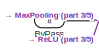
[diagram: 2DCov PEV1.1 - part 1/5, top left region]
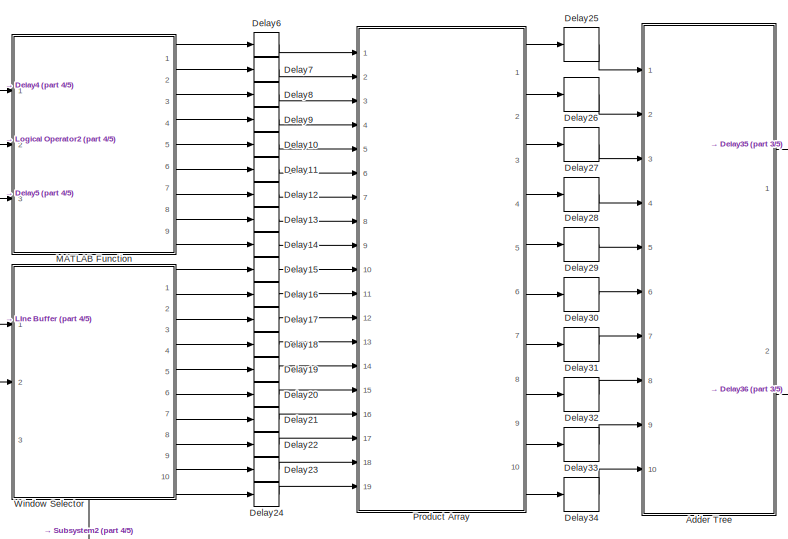
[diagram: 2DCov PEV1.1 - part 2/5, top center region]
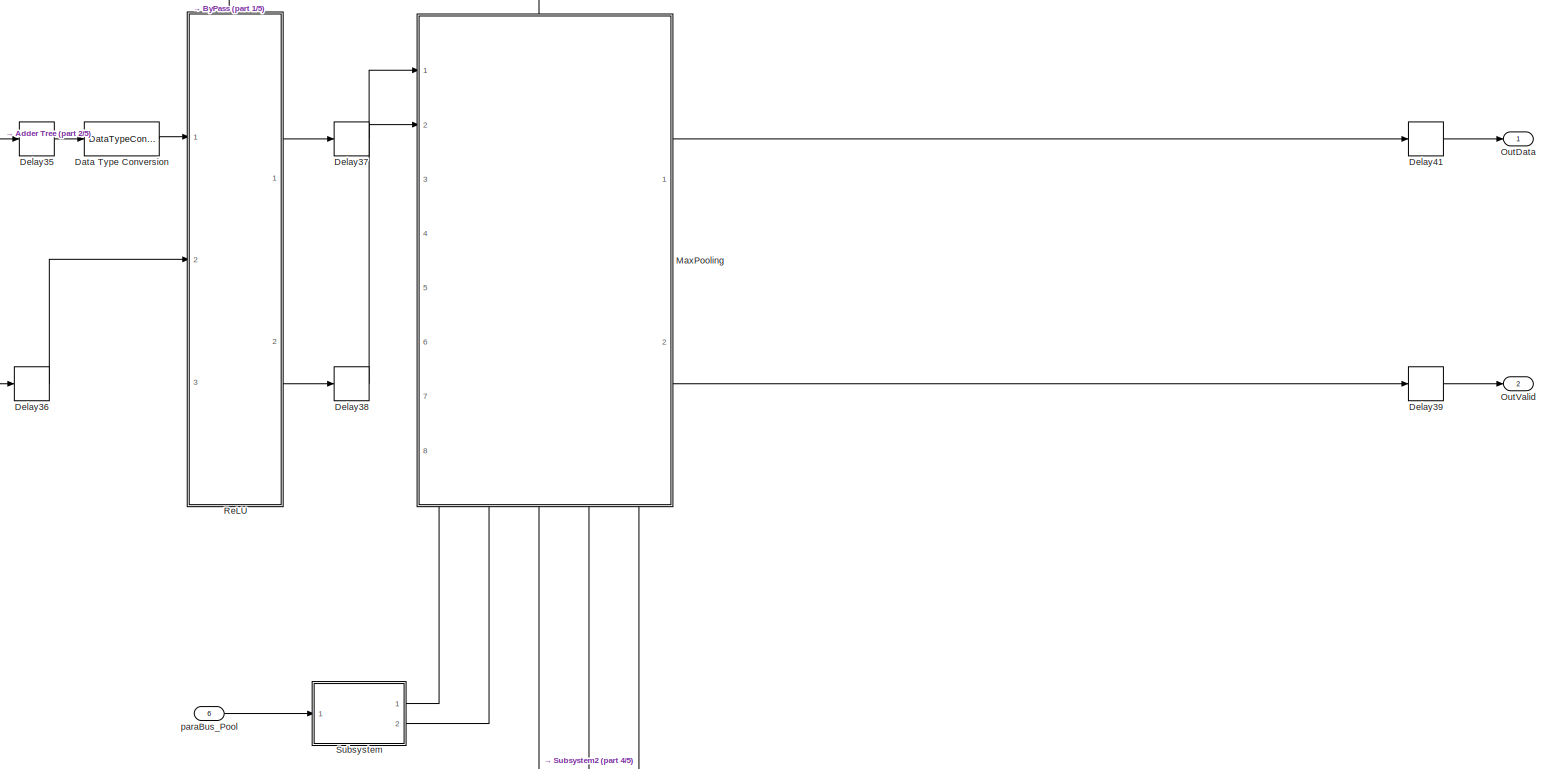
[diagram: 2DCov PEV1.1 - part 3/5, middle right region]
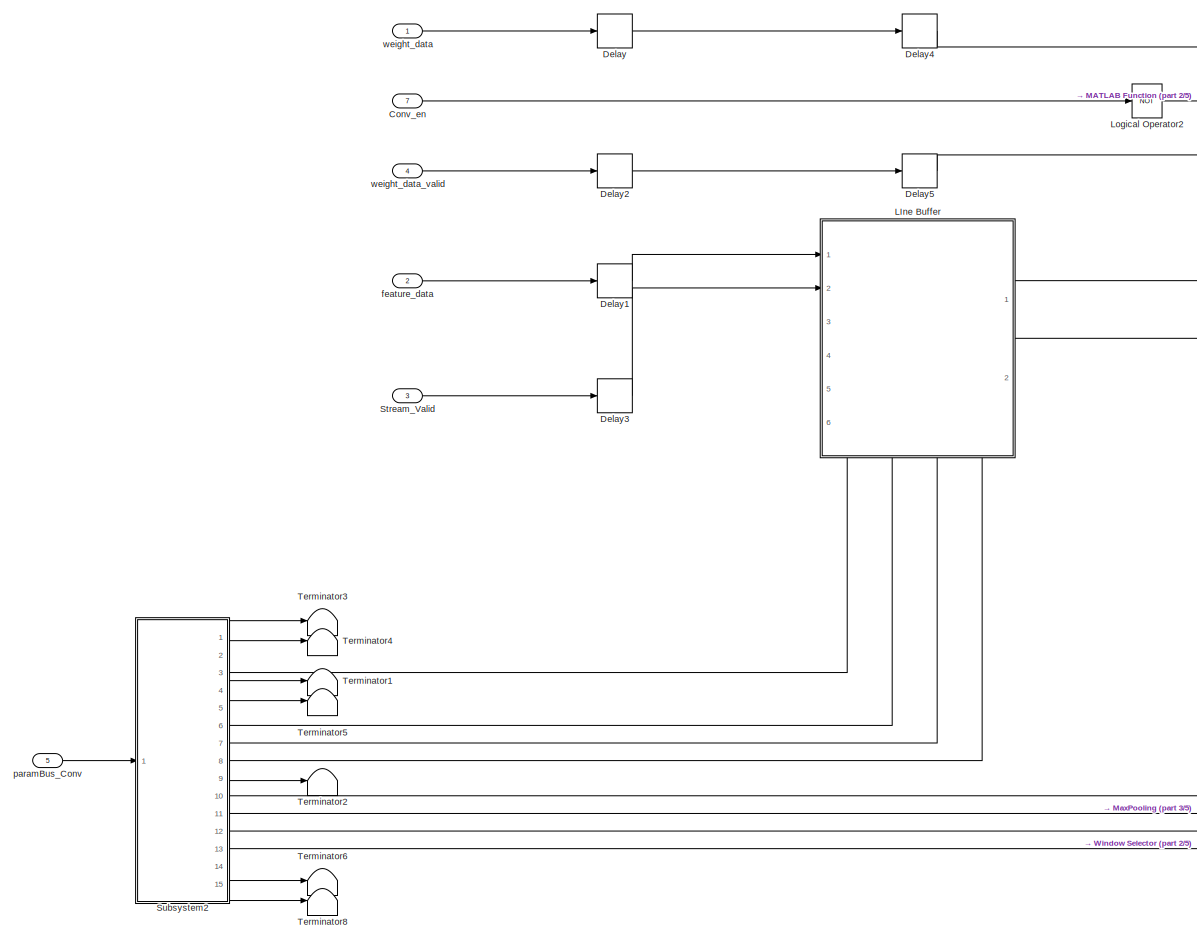
[diagram: 2DCov PEV1.1 - part 4/5, middle left region]
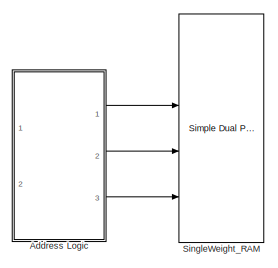
[diagram: 2DCov PEV1.1 - part 5/5, bottom left region]
BLOCK [SubSystem] 2DCov PEV1.1
  PortSchema = {"entries":[{"content":{"sides":[{"content":{"connectorIds":["In1","In2","In3","In4","In5","In6"]},"type":"ConnectorPlacement.EquallySpacedRectSide","uuid":"72a132f7-3e47-4ef1-8d79-baadbeb84817"},{"content":{"connectorIds":["Out1","Out2"],"side":"RIGHT"},"type":"ConnectorPlacement.EquallySpacedRectSide","uuid":"2df9bf31-2175-4d97-aafa-a0227f37f2af"},{"content":{"connectorIds":["In7","In8"],"side":...<+576ch>
  Ports = [8, 2]
  RequestExecContextInheritance = off
BLOCK [SubSystem] 2DCov PEV1.1/Adder Tree
  Ports = [10, 2]
  RequestExecContextInheritance = off
BLOCK [Sum] 2DCov PEV1.1/Adder Tree/Add
  IconShape = rectangular
  Ports = [2, 1]
BLOCK [Sum] 2DCov PEV1.1/Adder Tree/Add1
  IconShape = rectangular
  Ports = [2, 1]
BLOCK [Sum] 2DCov PEV1.1/Adder Tree/Add10
  IconShape = rectangular
  Ports = [2, 1]
BLOCK [Sum] 2DCov PEV1.1/Adder Tree/Add2
  IconShape = rectangular
  Ports = [2, 1]
BLOCK [Sum] 2DCov PEV1.1/Adder Tree/Add3
  IconShape = rectangular
  Ports = [2, 1]
BLOCK [Sum] 2DCov PEV1.1/Adder Tree/Add4
  IconShape = rectangular
  Ports = [2, 1]
BLOCK [Sum] 2DCov PEV1.1/Adder Tree/Add5
  IconShape = rectangular
  Ports = [2, 1]
BLOCK [Sum] 2DCov PEV1.1/Adder Tree/Add6
  IconShape = rectangular
  Ports = [2, 1]
BLOCK [Delay] 2DCov PEV1.1/Adder Tree/Delay1
  DelayLength = 1
  InputPortMap = u0
  Ports = [1, 1]
BLOCK [Delay] 2DCov PEV1.1/Adder Tree/Delay2
  DelayLength = 1
  InputPortMap = u0
  Ports = [1, 1]
BLOCK [Delay] 2DCov PEV1.1/Adder Tree/Delay3
  DelayLength = 1
  InputPortMap = u0
  Ports = [1, 1]
BLOCK [Delay] 2DCov PEV1.1/Adder Tree/Delay35
  DelayLength = 1
  InputPortMap = u0
  Ports = [1, 1]
BLOCK [Delay] 2DCov PEV1.1/Adder Tree/Delay4
  DelayLength = 1
  InputPortMap = u0
  Ports = [1, 1]
BLOCK [Delay] 2DCov PEV1.1/Adder Tree/Delay5
  DelayLength = 1
  InputPortMap = u0
  Ports = [1, 1]
BLOCK [Delay] 2DCov PEV1.1/Adder Tree/Delay6
  DelayLength = 1
  InputPortMap = u0
  Ports = [1, 1]
BLOCK [Delay] 2DCov PEV1.1/Adder Tree/Delay7
  DelayLength = 1
  InputPortMap = u0
  Ports = [1, 1]
BLOCK [Delay] 2DCov PEV1.1/Adder Tree/Delay8
  DelayLength = 1
  InputPortMap = u0
  Ports = [1, 1]
BLOCK [Delay] 2DCov PEV1.1/Adder Tree/Delay9
  DelayLength = 1
  InputPortMap = u0
  Ports = [1, 1]
BLOCK [Inport] 2DCov PEV1.1/Adder Tree/In1
BLOCK [Inport] 2DCov PEV1.1/Adder Tree/In2
  Port = 2
BLOCK [Inport] 2DCov PEV1.1/Adder Tree/In3
  Port = 3
BLOCK [Inport] 2DCov PEV1.1/Adder Tree/In4
  Port = 4
BLOCK [Inport] 2DCov PEV1.1/Adder Tree/In5
  Port = 5
BLOCK [Inport] 2DCov PEV1.1/Adder Tree/In6
  Port = 6
BLOCK [Inport] 2DCov PEV1.1/Adder Tree/In7
  Port = 7
BLOCK [Inport] 2DCov PEV1.1/Adder Tree/In8
  Port = 8
BLOCK [Inport] 2DCov PEV1.1/Adder Tree/In9
  Port = 9
BLOCK [Outport] 2DCov PEV1.1/Adder Tree/Out1
BLOCK [Inport] 2DCov PEV1.1/Adder Tree/validIn
  Port = 10
BLOCK [Outport] 2DCov PEV1.1/Adder Tree/validOut
  Port = 2
BLOCK [SubSystem] 2DCov PEV1.1/Address Logic
  Commented = on
  Ports = [2, 3]
  RequestExecContextInheritance = off
BLOCK [SubSystem] 2DCov PEV1.1/Address Logic/ 
  Ports = [2, 2]
  RequestExecContextInheritance = off
BLOCK [Constant] 2DCov PEV1.1/Address Logic/ /Constant1
  OutDataTypeStr = uint32
  Value = 0
BLOCK [Constant] 2DCov PEV1.1/Address Logic/ /Constant2
  OutDataTypeStr = uint32
  Value = 0
BLOCK [Inport] 2DCov PEV1.1/Address Logic/ /In1
BLOCK [Inport] 2DCov PEV1.1/Address Logic/ /In2
  Port = 2
BLOCK [Logic] 2DCov PEV1.1/Address Logic/ /Logical Operator3
  AllPortsSameDT = off
  Operator = NOT
  OutDataTypeStr = boolean
  Ports = [1, 1]
BLOCK [Outport] 2DCov PEV1.1/Address Logic/ /R
  Port = 2
BLOCK [Switch] 2DCov PEV1.1/Address Logic/ /Switch
  Criteria = u2 ~= 0
  InputSameDT = off
  SaturateOnIntegerOverflow = off
BLOCK [Switch] 2DCov PEV1.1/Address Logic/ /Switch1
  Criteria = u2 ~= 0
  InputSameDT = off
  SaturateOnIntegerOverflow = off
BLOCK [Outport] 2DCov PEV1.1/Address Logic/ /W
BLOCK [Reference] 2DCov PEV1.1/Address Logic/ /addr_bit_sel1  REF=hdlsllib/Logic and Bit
Operations/Bit Slice
  Ports = [1, 1]
  SourceBlock = hdlsllib/Logic and Bit\nOperations/Bit Slice
  SourceProductName = HDL Coder
  SourceType = Bit Slice
BLOCK [Reference] 2DCov PEV1.1/Address Logic/ /addr_bit_sel2  REF=hdlsllib/Logic and Bit
Operations/Bit Slice
  Ports = [1, 1]
  SourceBlock = hdlsllib/Logic and Bit\nOperations/Bit Slice
  SourceProductName = HDL Coder
  SourceType = Bit Slice
BLOCK [Sum] 2DCov PEV1.1/Address Logic/Add
  IconShape = rectangular
  Inputs = +-
  Ports = [2, 1]
BLOCK [Reference] 2DCov PEV1.1/Address Logic/Compare To Constant  REF=simulink/Logic and Bit
Operations/Compare
To Constant
  Ports = [1, 1]
  SourceBlock = simulink/Logic and Bit\nOperations/Compare\nTo Constant
  SourceProductBaseCode = SL
  SourceType = Compare To Constant
BLOCK [Constant] 2DCov PEV1.1/Address Logic/Constant
  OutDataTypeStr = uint32
BLOCK [Delay] 2DCov PEV1.1/Address Logic/Delay
  DelayLength = 1
  InputPortMap = u0
  Ports = [1, 1]
BLOCK [Inport] 2DCov PEV1.1/Address Logic/In1
BLOCK [Inport] 2DCov PEV1.1/Address Logic/In2
  Port = 2
BLOCK [Logic] 2DCov PEV1.1/Address Logic/Logical Operator1
  AllPortsSameDT = off
  OutDataTypeStr = boolean
  Ports = [2, 1]
BLOCK [Logic] 2DCov PEV1.1/Address Logic/Logical Operator2
  AllPortsSameDT = off
  Operator = NOT
  OutDataTypeStr = boolean
  Ports = [1, 1]
BLOCK [Outport] 2DCov PEV1.1/Address Logic/R
  Port = 3
BLOCK [RelationalOperator] 2DCov PEV1.1/Address Logic/Relational Operator
  InputSameDT = off
  OutDataTypeStr = boolean
  Ports = [2, 1]
  RndMeth = Simplest
BLOCK [Outport] 2DCov PEV1.1/Address Logic/W
BLOCK [Reference] 2DCov PEV1.1/Address Logic/Weight_Counter  REF=hdlsllib/Sources/HDL Counter
  Ports = [2, 1]
  SourceBlock = hdlsllib/Sources/HDL Counter
  SourceProductName = HDL Coder
  SourceType = HDL Counter
BLOCK [Reference] 2DCov PEV1.1/Address Logic/Weight_Interation_Counter  REF=hdlsllib/Sources/HDL Counter
  Ports = [2, 1]
  SourceBlock = hdlsllib/Sources/HDL Counter
  SourceProductName = HDL Coder
  SourceType = HDL Counter
BLOCK [Outport] 2DCov PEV1.1/Address Logic/Write_en
  Port = 2
BLOCK [Inport] 2DCov PEV1.1/ByPass
  Port = 8
BLOCK [Inport] 2DCov PEV1.1/Conv_en
  Port = 7
BLOCK [DataTypeConversion] 2DCov PEV1.1/Data Type Conversion
  OutDataTypeStr = int32
  RndMeth = Floor
  SaturateOnIntegerOverflow = off
BLOCK [Delay] 2DCov PEV1.1/Delay
  DelayLength = 1
  InputPortMap = u0
  Ports = [1, 1]
BLOCK [Delay] 2DCov PEV1.1/Delay1
  DelayLength = 1
  InputPortMap = u0
  Ports = [1, 1]
BLOCK [Delay] 2DCov PEV1.1/Delay10
  DelayLength = 1
  InputPortMap = u0
  Ports = [1, 1]
BLOCK [Delay] 2DCov PEV1.1/Delay11
  DelayLength = 1
  InputPortMap = u0
  Ports = [1, 1]
BLOCK [Delay] 2DCov PEV1.1/Delay12
  DelayLength = 1
  InputPortMap = u0
  Ports = [1, 1]
BLOCK [Delay] 2DCov PEV1.1/Delay13
  DelayLength = 1
  InputPortMap = u0
  Ports = [1, 1]
BLOCK [Delay] 2DCov PEV1.1/Delay14
  DelayLength = 1
  InputPortMap = u0
  Ports = [1, 1]
BLOCK [Delay] 2DCov PEV1.1/Delay15
  DelayLength = 1
  InputPortMap = u0
  Ports = [1, 1]
BLOCK [Delay] 2DCov PEV1.1/Delay16
  DelayLength = 1
  InputPortMap = u0
  Ports = [1, 1]
BLOCK [Delay] 2DCov PEV1.1/Delay17
  DelayLength = 1
  InputPortMap = u0
  Ports = [1, 1]
BLOCK [Delay] 2DCov PEV1.1/Delay18
  DelayLength = 1
  InputPortMap = u0
  Ports = [1, 1]
BLOCK [Delay] 2DCov PEV1.1/Delay19
  DelayLength = 1
  InputPortMap = u0
  Ports = [1, 1]
BLOCK [Delay] 2DCov PEV1.1/Delay2
  DelayLength = 1
  InputPortMap = u0
  Ports = [1, 1]
BLOCK [Delay] 2DCov PEV1.1/Delay20
  DelayLength = 1
  InputPortMap = u0
  Ports = [1, 1]
BLOCK [Delay] 2DCov PEV1.1/Delay21
  DelayLength = 1
  InputPortMap = u0
  Ports = [1, 1]
BLOCK [Delay] 2DCov PEV1.1/Delay22
  DelayLength = 1
  InputPortMap = u0
  Ports = [1, 1]
BLOCK [Delay] 2DCov PEV1.1/Delay23
  DelayLength = 1
  InputPortMap = u0
  Ports = [1, 1]
BLOCK [Delay] 2DCov PEV1.1/Delay24
  DelayLength = 1
  InputPortMap = u0
  Ports = [1, 1]
BLOCK [Delay] 2DCov PEV1.1/Delay25
  DelayLength = 1
  InputPortMap = u0
  Ports = [1, 1]
BLOCK [Delay] 2DCov PEV1.1/Delay26
  DelayLength = 1
  InputPortMap = u0
  Ports = [1, 1]
BLOCK [Delay] 2DCov PEV1.1/Delay27
  DelayLength = 1
  InputPortMap = u0
  Ports = [1, 1]
BLOCK [Delay] 2DCov PEV1.1/Delay28
  DelayLength = 1
  InputPortMap = u0
  Ports = [1, 1]
BLOCK [Delay] 2DCov PEV1.1/Delay29
  DelayLength = 1
  InputPortMap = u0
  Ports = [1, 1]
BLOCK [Delay] 2DCov PEV1.1/Delay3
  DelayLength = 1
  InputPortMap = u0
  Ports = [1, 1]
BLOCK [Delay] 2DCov PEV1.1/Delay30
  DelayLength = 1
  InputPortMap = u0
  Ports = [1, 1]
BLOCK [Delay] 2DCov PEV1.1/Delay31
  DelayLength = 1
  InputPortMap = u0
  Ports = [1, 1]
BLOCK [Delay] 2DCov PEV1.1/Delay32
  DelayLength = 1
  InputPortMap = u0
  Ports = [1, 1]
BLOCK [Delay] 2DCov PEV1.1/Delay33
  DelayLength = 1
  InputPortMap = u0
  Ports = [1, 1]
BLOCK [Delay] 2DCov PEV1.1/Delay34
  DelayLength = 1
  InputPortMap = u0
  Ports = [1, 1]
BLOCK [Delay] 2DCov PEV1.1/Delay35
  DelayLength = 1
  InputPortMap = u0
  Ports = [1, 1]
BLOCK [Delay] 2DCov PEV1.1/Delay36
  DelayLength = 1
  InputPortMap = u0
  Ports = [1, 1]
BLOCK [Delay] 2DCov PEV1.1/Delay37
  DelayLength = 1
  InputPortMap = u0
  Ports = [1, 1]
BLOCK [Delay] 2DCov PEV1.1/Delay38
  DelayLength = 1
  InputPortMap = u0
  Ports = [1, 1]
BLOCK [Delay] 2DCov PEV1.1/Delay39
  DelayLength = 1
  InputPortMap = u0
  Ports = [1, 1]
BLOCK [Delay] 2DCov PEV1.1/Delay4
  InputPortMap = u0
  Ports = [1, 1]
BLOCK [Delay] 2DCov PEV1.1/Delay41
  DelayLength = 1
  InputPortMap = u0
  Ports = [1, 1]
BLOCK [Delay] 2DCov PEV1.1/Delay5
  InputPortMap = u0
  Ports = [1, 1]
BLOCK [Delay] 2DCov PEV1.1/Delay6
  DelayLength = 1
  InputPortMap = u0
  Ports = [1, 1]
BLOCK [Delay] 2DCov PEV1.1/Delay7
  DelayLength = 1
  InputPortMap = u0
  Ports = [1, 1]
BLOCK [Delay] 2DCov PEV1.1/Delay8
  DelayLength = 1
  InputPortMap = u0
  Ports = [1, 1]
BLOCK [Delay] 2DCov PEV1.1/Delay9
  DelayLength = 1
  InputPortMap = u0
  Ports = [1, 1]
BLOCK [SubSystem] 2DCov PEV1.1/LIne Buffer
  PortSchema = {"entries":[{"content":{"sides":[{"content":{"connectorIds":["In1","In2"]},"type":"ConnectorPlacement.EquallySpacedRectSide","uuid":"a250c848-7a40-462c-bfcf-0ff48046d99d"},{"content":{"connectorIds":["Out1","Out2"],"side":"RIGHT"},"type":"ConnectorPlacement.EquallySpacedRectSide","uuid":"81aecf2d-6bfb-4d40-80c7-cfb89c921406"},{"content":{"connectorIds":[],"side":"TOP"},"type":"ConnectorPlacement.E...<+564ch>
  Ports = [6, 2]
  RequestExecContextInheritance = off
BLOCK [Delay] 2DCov PEV1.1/LIne Buffer/Delay2
  DelayLength = 1
  InputPortMap = u0
  Ports = [1, 1]
BLOCK [Inport] 2DCov PEV1.1/LIne Buffer/Feature_Area
  Port = 4
BLOCK [Inport] 2DCov PEV1.1/LIne Buffer/Feature_Height
  Port = 6
BLOCK [Inport] 2DCov PEV1.1/LIne Buffer/Feature_Width
  Port = 5
BLOCK [SubSystem] 2DCov PEV1.1/LIne Buffer/Line Buffer
  Ports = [4, 3]
  RequestExecContextInheritance = off
BLOCK [SubSystem] 2DCov PEV1.1/LIne Buffer/Line Buffer/CtrlGen
  Ports = [4, 2]
  RequestExecContextInheritance = off
BLOCK [Reference] 2DCov PEV1.1/LIne Buffer/Line Buffer/CtrlGen/Compare To Zero  REF=simulink/Logic and Bit
Operations/Compare
To Zero
  Ports = [1, 1]
  SourceBlock = simulink/Logic and Bit\nOperations/Compare\nTo Zero
  SourceProductBaseCode = SL
  SourceType = Compare To Zero
BLOCK [Reference] 2DCov PEV1.1/LIne Buffer/Line Buffer/CtrlGen/Compare To Zero1  REF=simulink/Logic and Bit
Operations/Compare
To Zero
  Ports = [1, 1]
  SourceBlock = simulink/Logic and Bit\nOperations/Compare\nTo Zero
  SourceProductBaseCode = SL
  SourceType = Compare To Zero
BLOCK [Constant] 2DCov PEV1.1/LIne Buffer/Line Buffer/CtrlGen/Constant
  OutDataTypeStr = uint32
  SampleTime = -1
BLOCK [Constant] 2DCov PEV1.1/LIne Buffer/Line Buffer/CtrlGen/Constant1
  OutDataTypeStr = uint32
  SampleTime = -1
BLOCK [Outport] 2DCov PEV1.1/LIne Buffer/Line Buffer/CtrlGen/Ctrl
  Port = 2
BLOCK [Delay] 2DCov PEV1.1/LIne Buffer/Line Buffer/CtrlGen/Delay3
  DelayLength = 1
  InputPortMap = u0
  Ports = [1, 1]
BLOCK [Delay] 2DCov PEV1.1/LIne Buffer/Line Buffer/CtrlGen/Delay35
  DelayLength = 1
  InputPortMap = u0
  Ports = [1, 1]
BLOCK [Reference] 2DCov PEV1.1/LIne Buffer/Line Buffer/CtrlGen/Feature Area Counter  REF=hdlsllib/Sources/HDL Counter
  Ports = [2, 1]
  SourceBlock = hdlsllib/Sources/HDL Counter
  SourceProductName = HDL Coder
  SourceType = HDL Counter
BLOCK [Reference] 2DCov PEV1.1/LIne Buffer/Line Buffer/CtrlGen/Feature Row Counter  REF=hdlsllib/Sources/HDL Counter
  Ports = [2, 1]
  SourceBlock = hdlsllib/Sources/HDL Counter
  SourceProductName = HDL Coder
  SourceType = HDL Counter
BLOCK [Inport] 2DCov PEV1.1/LIne Buffer/Line Buffer/CtrlGen/Feature_Area
  Port = 3
BLOCK [Inport] 2DCov PEV1.1/LIne Buffer/Line Buffer/CtrlGen/Feature_Width
  Port = 4
BLOCK [Logic] 2DCov PEV1.1/LIne Buffer/Line Buffer/CtrlGen/Logical Operator
  AllPortsSameDT = off
  Operator = OR
  OutDataTypeStr = boolean
  Ports = [2, 1]
BLOCK [Logic] 2DCov PEV1.1/LIne Buffer/Line Buffer/CtrlGen/Logical Operator1
  AllPortsSameDT = off
  OutDataTypeStr = boolean
  Ports = [2, 1]
BLOCK [Logic] 2DCov PEV1.1/LIne Buffer/Line Buffer/CtrlGen/Logical Operator2
  AllPortsSameDT = off
  OutDataTypeStr = boolean
  Ports = [2, 1]
BLOCK [Logic] 2DCov PEV1.1/LIne Buffer/Line Buffer/CtrlGen/Logical Operator3
  AllPortsSameDT = off
  OutDataTypeStr = boolean
  Ports = [2, 1]
BLOCK [Logic] 2DCov PEV1.1/LIne Buffer/Line Buffer/CtrlGen/Logical Operator5
  AllPortsSameDT = off
  OutDataTypeStr = boolean
  Ports = [2, 1]
BLOCK [Sum] 2DCov PEV1.1/LIne Buffer/Line Buffer/CtrlGen/Minus1
  IconShape = rectangular
  Inputs = +-
  Ports = [2, 1]
BLOCK [Sum] 2DCov PEV1.1/LIne Buffer/Line Buffer/CtrlGen/Minus2
  IconShape = rectangular
  Inputs = +-
  Ports = [2, 1]
BLOCK [Reference] 2DCov PEV1.1/LIne Buffer/Line Buffer/CtrlGen/Pixel Control Bus Creator  REF=visionhdlutilities/Pixel Control
Bus Creator
  Ports = [5, 1]
  SourceBlock = visionhdlutilities/Pixel Control\nBus Creator
  SourceProductBaseCode = VT
  SourceType = Pixel Control Bus Creator
BLOCK [RelationalOperator] 2DCov PEV1.1/LIne Buffer/Line Buffer/CtrlGen/Relational Operator1
  InputSameDT = off
  Operator = ==
  OutDataTypeStr = boolean
  Ports = [2, 1]
BLOCK [RelationalOperator] 2DCov PEV1.1/LIne Buffer/Line Buffer/CtrlGen/Relational Operator2
  InputSameDT = off
  Operator = ==
  OutDataTypeStr = boolean
  Ports = [2, 1]
BLOCK [RelationalOperator] 2DCov PEV1.1/LIne Buffer/Line Buffer/CtrlGen/Relational Operator3
  InputSameDT = off
  Operator = ==
  OutDataTypeStr = boolean
  Ports = [2, 1]
BLOCK [Outport] 2DCov PEV1.1/LIne Buffer/Line Buffer/CtrlGen/StreamOut
BLOCK [Inport] 2DCov PEV1.1/LIne Buffer/Line Buffer/CtrlGen/Stream_In
BLOCK [Inport] 2DCov PEV1.1/LIne Buffer/Line Buffer/CtrlGen/Stream_Valid
  Port = 2
BLOCK [Inport] 2DCov PEV1.1/LIne Buffer/Line Buffer/Feature_Area
  Port = 3
BLOCK [Inport] 2DCov PEV1.1/LIne Buffer/Line Buffer/Feature_Width
  Port = 4
BLOCK [Reference] 2DCov PEV1.1/LIne Buffer/Line Buffer/Line Buffer  REF=visionhdlutilities/Line Buffer
  Ports = [2, 3]
  SourceBlock = visionhdlutilities/Line Buffer
  SourceProductBaseCode = VT
  SourceType = visionhdl.LineBuffer
BLOCK [Inport] 2DCov PEV1.1/LIne Buffer/Line Buffer/Stream_In
BLOCK [Inport] 2DCov PEV1.1/LIne Buffer/Line Buffer/Stream_Valid
  Port = 2
BLOCK [Outport] 2DCov PEV1.1/LIne Buffer/Line Buffer/ctrl
  Port = 2
BLOCK [Outport] 2DCov PEV1.1/LIne Buffer/Line Buffer/pixel
BLOCK [Outport] 2DCov PEV1.1/LIne Buffer/Line Buffer/shftEnable
  Port = 3
BLOCK [SubSystem] 2DCov PEV1.1/LIne Buffer/OutValidGen
  Ports = [3, 1]
  RequestExecContextInheritance = off
BLOCK [Reference] 2DCov PEV1.1/LIne Buffer/OutValidGen/Compare To Constant  REF=simulink/Logic and Bit
Operations/Compare
To Constant
  Ports = [1, 1]
  SourceBlock = simulink/Logic and Bit\nOperations/Compare\nTo Constant
  SourceProductBaseCode = SL
  SourceType = Compare To Constant
BLOCK [Constant] 2DCov PEV1.1/LIne Buffer/OutValidGen/Constant
  OutDataTypeStr = uint32
  SampleTime = -1
BLOCK [Delay] 2DCov PEV1.1/LIne Buffer/OutValidGen/Delay2
  DelayLength = 1
  InputPortMap = u0
  Ports = [1, 1]
BLOCK [Inport] 2DCov PEV1.1/LIne Buffer/OutValidGen/Feature_Height
  Port = 3
BLOCK [Inport] 2DCov PEV1.1/LIne Buffer/OutValidGen/In1
BLOCK [Logic] 2DCov PEV1.1/LIne Buffer/OutValidGen/Logical Operator1
  AllPortsSameDT = off
  Operator = NOT
  OutDataTypeStr = boolean
  Ports = [1, 1]
BLOCK [Logic] 2DCov PEV1.1/LIne Buffer/OutValidGen/Logical Operator2
  AllPortsSameDT = off
  Operator = OR
  OutDataTypeStr = boolean
  Ports = [2, 1]
BLOCK [Logic] 2DCov PEV1.1/LIne Buffer/OutValidGen/Logical Operator3
  AllPortsSameDT = off
  Inputs = 4
  OutDataTypeStr = boolean
  Ports = [4, 1]
BLOCK [Logic] 2DCov PEV1.1/LIne Buffer/OutValidGen/Logical Operator4
  AllPortsSameDT = off
  Operator = NOT
  OutDataTypeStr = boolean
  Ports = [1, 1]
BLOCK [Logic] 2DCov PEV1.1/LIne Buffer/OutValidGen/Logical Operator5
  AllPortsSameDT = off
  Operator = OR
  OutDataTypeStr = boolean
  Ports = [2, 1]
BLOCK [Logic] 2DCov PEV1.1/LIne Buffer/OutValidGen/Logical Operator6
  AllPortsSameDT = off
  Inputs = 3
  Operator = NOT
  OutDataTypeStr = boolean
  Ports = [1, 1]
BLOCK [Sum] 2DCov PEV1.1/LIne Buffer/OutValidGen/Minus1
  IconShape = rectangular
  Inputs = +--
  Ports = [3, 1]
BLOCK [Sum] 2DCov PEV1.1/LIne Buffer/OutValidGen/Minus2
  IconShape = rectangular
  Inputs = +-
  Ports = [2, 1]
BLOCK [Reference] 2DCov PEV1.1/LIne Buffer/OutValidGen/NumRow_Counter  REF=hdlsllib/Sources/HDL Counter
  Ports = [2, 1]
  SourceBlock = hdlsllib/Sources/HDL Counter
  SourceProductName = HDL Coder
  SourceType = HDL Counter
BLOCK [BusSelector] 2DCov PEV1.1/LIne Buffer/OutValidGen/Pixel Control Bus Selector
  OutputSignals = hStart,hEnd,vStart,vEnd,valid
  Ports = [1, 5]
BLOCK [RelationalOperator] 2DCov PEV1.1/LIne Buffer/OutValidGen/Relational Operator1
  InputSameDT = off
  Operator = <
  OutDataTypeStr = boolean
  Ports = [2, 1]
BLOCK [RelationalOperator] 2DCov PEV1.1/LIne Buffer/OutValidGen/Relational Operator2
  InputSameDT = off
  Operator = <=
  OutDataTypeStr = boolean
  Ports = [2, 1]
BLOCK [Reference] 2DCov PEV1.1/LIne Buffer/OutValidGen/Row_Counter  REF=hdlsllib/Sources/HDL Counter
  Ports = [2, 1]
  SourceBlock = hdlsllib/Sources/HDL Counter
  SourceProductName = HDL Coder
  SourceType = HDL Counter
BLOCK [Terminator] 2DCov PEV1.1/LIne Buffer/OutValidGen/Terminator1
BLOCK [Inport] 2DCov PEV1.1/LIne Buffer/OutValidGen/Weight_Width
  Port = 2
BLOCK [Outport] 2DCov PEV1.1/LIne Buffer/OutValidGen/valid
BLOCK [Inport] 2DCov PEV1.1/LIne Buffer/Stream_In
BLOCK [Inport] 2DCov PEV1.1/LIne Buffer/Stream_Valid
  Port = 2
BLOCK [Terminator] 2DCov PEV1.1/LIne Buffer/Terminator
BLOCK [Inport] 2DCov PEV1.1/LIne Buffer/Weight_Width
  Port = 3
BLOCK [Outport] 2DCov PEV1.1/LIne Buffer/pixel
BLOCK [Outport] 2DCov PEV1.1/LIne Buffer/valid
  Port = 2
BLOCK [Logic] 2DCov PEV1.1/Logical Operator2
  AllPortsSameDT = off
  Operator = NOT
  OutDataTypeStr = boolean
  Ports = [1, 1]
BLOCK [SubSystem] 2DCov PEV1.1/MATLAB Function
  ErrorFcn = Stateflow.Translate.translate
  PermitHierarchicalResolution = ExplicitOnly
  Ports = [3, 9]
  RequestExecContextInheritance = off
  SFBlockType = MATLAB Function
  TreatAsAtomicUnit = on
BLOCK [Demux] 2DCov PEV1.1/MATLAB Function/ Demux 
  Outputs = 1
  Ports = [1, 1]
BLOCK [S-Function] 2DCov PEV1.1/MATLAB Function/ SFunction 
  EnableBusSupport = on
  FunctionName = sf_sfun
  PortCounts = [3 10]
  Ports = [3, 10]
  SFcnIsStateOwnerBlock = off
  SFunctionDeploymentMode = off
  Tag = Stateflow S-Function 6
BLOCK [Terminator] 2DCov PEV1.1/MATLAB Function/ Terminator 
BLOCK [Inport] 2DCov PEV1.1/MATLAB Function/dataIn
BLOCK [Inport] 2DCov PEV1.1/MATLAB Function/rst
  Port = 2
BLOCK [Outport] 2DCov PEV1.1/MATLAB Function/w0
BLOCK [Outport] 2DCov PEV1.1/MATLAB Function/w1
  Port = 2
  VectorParamsAs1DForOutWhenUnconnected = off
BLOCK [Outport] 2DCov PEV1.1/MATLAB Function/w2
  Port = 3
BLOCK [Outport] 2DCov PEV1.1/MATLAB Function/w3
  Port = 4
BLOCK [Outport] 2DCov PEV1.1/MATLAB Function/w4
  Port = 5
BLOCK [Outport] 2DCov PEV1.1/MATLAB Function/w5
  Port = 6
BLOCK [Outport] 2DCov PEV1.1/MATLAB Function/w6
  Port = 7
BLOCK [Outport] 2DCov PEV1.1/MATLAB Function/w7
  Port = 8
BLOCK [Outport] 2DCov PEV1.1/MATLAB Function/w8
  Port = 9
BLOCK [Inport] 2DCov PEV1.1/MATLAB Function/write_en
  Port = 3
BLOCK [SubSystem] 2DCov PEV1.1/MaxPooling
  PortSchema = {"entries":[{"content":{"sides":[{"content":{"connectorIds":["In1","In2"]},"type":"ConnectorPlacement.EquallySpacedRectSide","uuid":"8f082555-10a5-4426-9c6d-30ad9c9edc83"},{"content":{"connectorIds":["Out1","Out2"],"side":"RIGHT"},"type":"ConnectorPlacement.EquallySpacedRectSide","uuid":"2f08e48d-98a7-49ef-9240-49e9a92f7835"},{"content":{"connectorIds":["In3"],"side":"TOP"},"type":"ConnectorPlacem...<+575ch>
  Ports = [8, 2]
  RequestExecContextInheritance = off
BLOCK [Inport] 2DCov PEV1.1/MaxPooling/ByPass
  Port = 3
BLOCK [SubSystem] 2DCov PEV1.1/MaxPooling/Comparator
  Ports = [5, 2]
  RequestExecContextInheritance = off
BLOCK [Delay] 2DCov PEV1.1/MaxPooling/Comparator/Delay
  DelayLength = 1
  InputPortMap = u0
  Ports = [1, 1]
BLOCK [Delay] 2DCov PEV1.1/MaxPooling/Comparator/Delay1
  DelayLength = 1
  InputPortMap = u0
  Ports = [1, 1]
BLOCK [Delay] 2DCov PEV1.1/MaxPooling/Comparator/Delay2
  DelayLength = 1
  InputPortMap = u0
  Ports = [1, 1]
BLOCK [Delay] 2DCov PEV1.1/MaxPooling/Comparator/Delay3
  DelayLength = 1
  InputPortMap = u0
  Ports = [1, 1]
BLOCK [Delay] 2DCov PEV1.1/MaxPooling/Comparator/Delay4
  DelayLength = 1
  InputPortMap = u0
  Ports = [1, 1]
BLOCK [Inport] 2DCov PEV1.1/MaxPooling/Comparator/In1
BLOCK [Inport] 2DCov PEV1.1/MaxPooling/Comparator/In2
  Port = 2
BLOCK [Inport] 2DCov PEV1.1/MaxPooling/Comparator/In3
  Port = 3
BLOCK [Inport] 2DCov PEV1.1/MaxPooling/Comparator/In4
  Port = 4
BLOCK [Outport] 2DCov PEV1.1/MaxPooling/Comparator/Out1
BLOCK [RelationalOperator] 2DCov PEV1.1/MaxPooling/Comparator/Relational Operator
  InputSameDT = off
  Operator = >
  OutDataTypeStr = boolean
  Ports = [2, 1]
BLOCK [RelationalOperator] 2DCov PEV1.1/MaxPooling/Comparator/Relational Operator1
  InputSameDT = off
  Operator = >
  OutDataTypeStr = boolean
  Ports = [2, 1]
BLOCK [RelationalOperator] 2DCov PEV1.1/MaxPooling/Comparator/Relational Operator2
  InputSameDT = off
  Operator = >
  OutDataTypeStr = boolean
  Ports = [2, 1]
BLOCK [Switch] 2DCov PEV1.1/MaxPooling/Comparator/Switch
  Criteria = u2 > Threshold
  InputSameDT = off
  SaturateOnIntegerOverflow = off
BLOCK [Switch] 2DCov PEV1.1/MaxPooling/Comparator/Switch1
  Criteria = u2 > Threshold
  InputSameDT = off
  SaturateOnIntegerOverflow = off
BLOCK [Switch] 2DCov PEV1.1/MaxPooling/Comparator/Switch2
  Criteria = u2 > Threshold
  InputSameDT = off
  SaturateOnIntegerOverflow = off
BLOCK [Inport] 2DCov PEV1.1/MaxPooling/Comparator/Valid
  Port = 5
BLOCK [Outport] 2DCov PEV1.1/MaxPooling/Comparator/outvalid
  Port = 2
BLOCK [Constant] 2DCov PEV1.1/MaxPooling/Constant
  OutDataTypeStr = int32
  Value = 0
BLOCK [Delay] 2DCov PEV1.1/MaxPooling/Delay
  DelayLength = 1
  InputPortMap = u0
  Ports = [1, 1]
BLOCK [Delay] 2DCov PEV1.1/MaxPooling/Delay1
  DelayLength = 1
  InputPortMap = u0
  Ports = [1, 1]
BLOCK [Delay] 2DCov PEV1.1/MaxPooling/Delay2
  DelayLength = 1
  InputPortMap = u0
  Ports = [1, 1]
BLOCK [Delay] 2DCov PEV1.1/MaxPooling/Delay3
  DelayLength = 1
  InputPortMap = u0
  Ports = [1, 1]
BLOCK [Delay] 2DCov PEV1.1/MaxPooling/Delay36
  DelayLength = 1
  InputPortMap = u0
  Ports = [1, 1]
BLOCK [Delay] 2DCov PEV1.1/MaxPooling/Delay4
  DelayLength = 1
  InputPortMap = u0
  Ports = [1, 1]
BLOCK [Delay] 2DCov PEV1.1/MaxPooling/Delay5
  DelayLength = 1
  InputPortMap = u0
  Ports = [1, 1]
BLOCK [Delay] 2DCov PEV1.1/MaxPooling/Delay6
  DelayLength = 1
  InputPortMap = u0
  Ports = [1, 1]
BLOCK [Inport] 2DCov PEV1.1/MaxPooling/Feature_Area
  Port = 6
BLOCK [Inport] 2DCov PEV1.1/MaxPooling/Feature_Height
  Port = 8
BLOCK [Inport] 2DCov PEV1.1/MaxPooling/Feature_Width
  Port = 7
BLOCK [SubSystem] 2DCov PEV1.1/MaxPooling/Line Buffer1
  Ports = [4, 3]
  RequestExecContextInheritance = off
BLOCK [SubSystem] 2DCov PEV1.1/MaxPooling/Line Buffer1/CtrlGen
  Ports = [4, 2]
  RequestExecContextInheritance = off
BLOCK [Reference] 2DCov PEV1.1/MaxPooling/Line Buffer1/CtrlGen/Compare To Zero  REF=simulink/Logic and Bit
Operations/Compare
To Zero
  Ports = [1, 1]
  SourceBlock = simulink/Logic and Bit\nOperations/Compare\nTo Zero
  SourceProductBaseCode = SL
  SourceType = Compare To Zero
BLOCK [Reference] 2DCov PEV1.1/MaxPooling/Line Buffer1/CtrlGen/Compare To Zero1  REF=simulink/Logic and Bit
Operations/Compare
To Zero
  Ports = [1, 1]
  SourceBlock = simulink/Logic and Bit\nOperations/Compare\nTo Zero
  SourceProductBaseCode = SL
  SourceType = Compare To Zero
BLOCK [Constant] 2DCov PEV1.1/MaxPooling/Line Buffer1/CtrlGen/Constant
  OutDataTypeStr = uint32
  SampleTime = -1
BLOCK [Constant] 2DCov PEV1.1/MaxPooling/Line Buffer1/CtrlGen/Constant1
  OutDataTypeStr = uint32
  SampleTime = -1
BLOCK [Outport] 2DCov PEV1.1/MaxPooling/Line Buffer1/CtrlGen/Ctrl
  Port = 2
BLOCK [Delay] 2DCov PEV1.1/MaxPooling/Line Buffer1/CtrlGen/Delay1
  DelayLength = 1
  InputPortMap = u0
  Ports = [1, 1]
BLOCK [Delay] 2DCov PEV1.1/MaxPooling/Line Buffer1/CtrlGen/Delay36
  DelayLength = 1
  InputPortMap = u0
  Ports = [1, 1]
BLOCK [Reference] 2DCov PEV1.1/MaxPooling/Line Buffer1/CtrlGen/Feature Area Counter  REF=hdlsllib/Sources/HDL Counter
  Ports = [2, 1]
  SourceBlock = hdlsllib/Sources/HDL Counter
  SourceProductName = HDL Coder
  SourceType = HDL Counter
BLOCK [Reference] 2DCov PEV1.1/MaxPooling/Line Buffer1/CtrlGen/Feature Row Counter  REF=hdlsllib/Sources/HDL Counter
  Ports = [2, 1]
  SourceBlock = hdlsllib/Sources/HDL Counter
  SourceProductName = HDL Coder
  SourceType = HDL Counter
BLOCK [Inport] 2DCov PEV1.1/MaxPooling/Line Buffer1/CtrlGen/Feature_Area
  Port = 3
BLOCK [Inport] 2DCov PEV1.1/MaxPooling/Line Buffer1/CtrlGen/Feature_Width
  Port = 4
BLOCK [Logic] 2DCov PEV1.1/MaxPooling/Line Buffer1/CtrlGen/Logical Operator
  AllPortsSameDT = off
  Operator = OR
  OutDataTypeStr = boolean
  Ports = [2, 1]
BLOCK [Logic] 2DCov PEV1.1/MaxPooling/Line Buffer1/CtrlGen/Logical Operator1
  AllPortsSameDT = off
  OutDataTypeStr = boolean
  Ports = [2, 1]
BLOCK [Logic] 2DCov PEV1.1/MaxPooling/Line Buffer1/CtrlGen/Logical Operator2
  AllPortsSameDT = off
  OutDataTypeStr = boolean
  Ports = [2, 1]
BLOCK [Logic] 2DCov PEV1.1/MaxPooling/Line Buffer1/CtrlGen/Logical Operator3
  AllPortsSameDT = off
  OutDataTypeStr = boolean
  Ports = [2, 1]
BLOCK [Logic] 2DCov PEV1.1/MaxPooling/Line Buffer1/CtrlGen/Logical Operator5
  AllPortsSameDT = off
  OutDataTypeStr = boolean
  Ports = [2, 1]
BLOCK [Sum] 2DCov PEV1.1/MaxPooling/Line Buffer1/CtrlGen/Minus1
  IconShape = rectangular
  Inputs = +-
  Ports = [2, 1]
BLOCK [Sum] 2DCov PEV1.1/MaxPooling/Line Buffer1/CtrlGen/Minus2
  IconShape = rectangular
  Inputs = +-
  Ports = [2, 1]
BLOCK [Reference] 2DCov PEV1.1/MaxPooling/Line Buffer1/CtrlGen/Pixel Control Bus Creator  REF=visionhdlutilities/Pixel Control
Bus Creator
  Ports = [5, 1]
  SourceBlock = visionhdlutilities/Pixel Control\nBus Creator
  SourceProductBaseCode = VT
  SourceType = Pixel Control Bus Creator
BLOCK [RelationalOperator] 2DCov PEV1.1/MaxPooling/Line Buffer1/CtrlGen/Relational Operator1
  InputSameDT = off
  Operator = ==
  OutDataTypeStr = boolean
  Ports = [2, 1]
BLOCK [RelationalOperator] 2DCov PEV1.1/MaxPooling/Line Buffer1/CtrlGen/Relational Operator2
  InputSameDT = off
  Operator = ==
  OutDataTypeStr = boolean
  Ports = [2, 1]
BLOCK [RelationalOperator] 2DCov PEV1.1/MaxPooling/Line Buffer1/CtrlGen/Relational Operator3
  InputSameDT = off
  Operator = ==
  OutDataTypeStr = boolean
  Ports = [2, 1]
BLOCK [Outport] 2DCov PEV1.1/MaxPooling/Line Buffer1/CtrlGen/StreamOut
BLOCK [Inport] 2DCov PEV1.1/MaxPooling/Line Buffer1/CtrlGen/Stream_In
BLOCK [Inport] 2DCov PEV1.1/MaxPooling/Line Buffer1/CtrlGen/Stream_Valid
  Port = 2
BLOCK [Inport] 2DCov PEV1.1/MaxPooling/Line Buffer1/Feature_Area
  Port = 3
BLOCK [Inport] 2DCov PEV1.1/MaxPooling/Line Buffer1/Feature_Width
  Port = 4
BLOCK [Reference] 2DCov PEV1.1/MaxPooling/Line Buffer1/Line Buffer  REF=visionhdlutilities/Line Buffer
  Ports = [2, 3]
  SourceBlock = visionhdlutilities/Line Buffer
  SourceProductBaseCode = VT
  SourceType = visionhdl.LineBuffer
BLOCK [Inport] 2DCov PEV1.1/MaxPooling/Line Buffer1/Stream_In
BLOCK [Inport] 2DCov PEV1.1/MaxPooling/Line Buffer1/Stream_Valid
  Port = 2
BLOCK [Outport] 2DCov PEV1.1/MaxPooling/Line Buffer1/ctrl
  Port = 2
BLOCK [Outport] 2DCov PEV1.1/MaxPooling/Line Buffer1/pixel
BLOCK [Outport] 2DCov PEV1.1/MaxPooling/Line Buffer1/shftEnable
  Port = 3
BLOCK [SubSystem] 2DCov PEV1.1/MaxPooling/OutValidGen
  Ports = [3, 1]
  RequestExecContextInheritance = off
BLOCK [Reference] 2DCov PEV1.1/MaxPooling/OutValidGen/Compare To Constant  REF=simulink/Logic and Bit
Operations/Compare
To Constant
  Commented = on
  Ports = [1, 1]
  SourceBlock = simulink/Logic and Bit\nOperations/Compare\nTo Constant
  SourceProductBaseCode = SL
  SourceType = Compare To Constant
BLOCK [Constant] 2DCov PEV1.1/MaxPooling/OutValidGen/Constant
  OutDataTypeStr = uint32
  SampleTime = -1
BLOCK [Delay] 2DCov PEV1.1/MaxPooling/OutValidGen/Delay36
  DelayLength = 1
  InputPortMap = u0
  Ports = [1, 1]
BLOCK [Inport] 2DCov PEV1.1/MaxPooling/OutValidGen/Feature_Height
  Port = 3
BLOCK [Logic] 2DCov PEV1.1/MaxPooling/OutValidGen/Logical Operator1
  AllPortsSameDT = off
  Operator = NOT
  OutDataTypeStr = boolean
  Ports = [1, 1]
BLOCK [Logic] 2DCov PEV1.1/MaxPooling/OutValidGen/Logical Operator3
  AllPortsSameDT = off
  Inputs = 3
  OutDataTypeStr = boolean
  Ports = [3, 1]
BLOCK [Logic] 2DCov PEV1.1/MaxPooling/OutValidGen/Logical Operator4
  AllPortsSameDT = off
  Operator = NOT
  OutDataTypeStr = boolean
  Ports = [1, 1]
BLOCK [Logic] 2DCov PEV1.1/MaxPooling/OutValidGen/Logical Operator5
  AllPortsSameDT = off
  Operator = OR
  OutDataTypeStr = boolean
  Ports = [2, 1]
BLOCK [Logic] 2DCov PEV1.1/MaxPooling/OutValidGen/Logical Operator6
  AllPortsSameDT = off
  Inputs = 3
  Operator = NOT
  OutDataTypeStr = boolean
  Ports = [1, 1]
BLOCK [Sum] 2DCov PEV1.1/MaxPooling/OutValidGen/Minus1
  IconShape = rectangular
  Inputs = +-
  Ports = [2, 1]
BLOCK [Sum] 2DCov PEV1.1/MaxPooling/OutValidGen/Minus2
  IconShape = rectangular
  Inputs = +-
  Ports = [2, 1]
BLOCK [Reference] 2DCov PEV1.1/MaxPooling/OutValidGen/NumRow_Counter  REF=hdlsllib/Sources/HDL Counter
  Ports = [2, 1]
  SourceBlock = hdlsllib/Sources/HDL Counter
  SourceProductName = HDL Coder
  SourceType = HDL Counter
BLOCK [Outport] 2DCov PEV1.1/MaxPooling/OutValidGen/Out1
BLOCK [BusSelector] 2DCov PEV1.1/MaxPooling/OutValidGen/Pixel Control Bus Selector
  OutputSignals = hStart,hEnd,vStart,vEnd,valid
  Ports = [1, 5]
BLOCK [RelationalOperator] 2DCov PEV1.1/MaxPooling/OutValidGen/Relational Operator1
  InputSameDT = off
  Operator = <
  OutDataTypeStr = boolean
  Ports = [2, 1]
BLOCK [RelationalOperator] 2DCov PEV1.1/MaxPooling/OutValidGen/Relational Operator2
  InputSameDT = off
  Operator = <=
  OutDataTypeStr = boolean
  Ports = [2, 1]
BLOCK [Reference] 2DCov PEV1.1/MaxPooling/OutValidGen/Row_Counter  REF=hdlsllib/Sources/HDL Counter
  Ports = [2, 1]
  SourceBlock = hdlsllib/Sources/HDL Counter
  SourceProductName = HDL Coder
  SourceType = HDL Counter
BLOCK [Terminator] 2DCov PEV1.1/MaxPooling/OutValidGen/Terminator1
BLOCK [Inport] 2DCov PEV1.1/MaxPooling/OutValidGen/Window_Width
  Port = 2
BLOCK [Inport] 2DCov PEV1.1/MaxPooling/OutValidGen/ctrl
BLOCK [Inport] 2DCov PEV1.1/MaxPooling/Stream_In
BLOCK [Inport] 2DCov PEV1.1/MaxPooling/Stream_Valid
  Port = 2
BLOCK [Switch] 2DCov PEV1.1/MaxPooling/Switch
  Criteria = u2 > Threshold
  InputSameDT = off
  SaturateOnIntegerOverflow = off
BLOCK [Switch] 2DCov PEV1.1/MaxPooling/Switch1
  Criteria = u2 > Threshold
  InputSameDT = off
  SaturateOnIntegerOverflow = off
BLOCK [Terminator] 2DCov PEV1.1/MaxPooling/Terminator1
BLOCK [Outport] 2DCov PEV1.1/MaxPooling/Valid
  Port = 2
BLOCK [Inport] 2DCov PEV1.1/MaxPooling/Window_Width
  Port = 5
BLOCK [Switch] 2DCov PEV1.1/MaxPooling/dataSwitch
  Criteria = u2 > Threshold
  InputSameDT = off
  SaturateOnIntegerOverflow = off
BLOCK [Outport] 2DCov PEV1.1/MaxPooling/outdata
BLOCK [Inport] 2DCov PEV1.1/MaxPooling/step
  Port = 4
BLOCK [Switch] 2DCov PEV1.1/MaxPooling/validSwitch
  Criteria = u2 > Threshold
  InputSameDT = off
  SaturateOnIntegerOverflow = off
BLOCK [SubSystem] 2DCov PEV1.1/MaxPooling/window Selector
  Ports = [3, 5]
  RequestExecContextInheritance = off
BLOCK [Sum] 2DCov PEV1.1/MaxPooling/window Selector/Add
  IconShape = rectangular
  Inputs = +-
  Ports = [2, 1]
BLOCK [Reference] 2DCov PEV1.1/MaxPooling/window Selector/Compare To Zero  REF=simulink/Logic and Bit
Operations/Compare
To Zero
  Ports = [1, 1]
  SourceBlock = simulink/Logic and Bit\nOperations/Compare\nTo Zero
  SourceProductBaseCode = SL
  SourceType = Compare To Zero
BLOCK [Constant] 2DCov PEV1.1/MaxPooling/window Selector/Constant
  OutDataTypeStr = uint32
BLOCK [Delay] 2DCov PEV1.1/MaxPooling/window Selector/Delay
  InputPortMap = u0
  Ports = [1, 1]
BLOCK [Delay] 2DCov PEV1.1/MaxPooling/window Selector/Delay1
  DelayLength = 1
  InputPortMap = u0
  Ports = [1, 1]
BLOCK [Delay] 2DCov PEV1.1/MaxPooling/window Selector/Delay36
  DelayLength = 1
  InputPortMap = u0
  Ports = [1, 1]
BLOCK [Logic] 2DCov PEV1.1/MaxPooling/window Selector/Logical Operator
  AllPortsSameDT = off
  Operator = NOT
  OutDataTypeStr = boolean
  Ports = [1, 1]
BLOCK [Logic] 2DCov PEV1.1/MaxPooling/window Selector/Logical Operator1
  AllPortsSameDT = off
  Operator = OR
  OutDataTypeStr = boolean
  Ports = [2, 1]
BLOCK [Logic] 2DCov PEV1.1/MaxPooling/window Selector/Logical Operator2
  AllPortsSameDT = off
  OutDataTypeStr = boolean
  Ports = [2, 1]
BLOCK [Outport] 2DCov PEV1.1/MaxPooling/window Selector/Out1
BLOCK [Outport] 2DCov PEV1.1/MaxPooling/window Selector/Out2
  Port = 2
BLOCK [Outport] 2DCov PEV1.1/MaxPooling/window Selector/Out3
  Port = 3
BLOCK [Outport] 2DCov PEV1.1/MaxPooling/window Selector/Out4
  Port = 4
BLOCK [RelationalOperator] 2DCov PEV1.1/MaxPooling/window Selector/Relational Operator
  InputSameDT = off
  OutDataTypeStr = boolean
  Ports = [2, 1]
BLOCK [Selector] 2DCov PEV1.1/MaxPooling/window Selector/Selector1
  IndexOptions = Index vector (dialog)
  Indices = [1]
  InputPortWidth = 2
  OutputSizes = 1
  Ports = [1, 1]
BLOCK [Selector] 2DCov PEV1.1/MaxPooling/window Selector/Selector2
  IndexOptions = Index vector (dialog)
  Indices = [2]
  InputPortWidth = 2
  OutputSizes = 1
  Ports = [1, 1]
BLOCK [Selector] 2DCov PEV1.1/MaxPooling/window Selector/Selector3
  IndexOptions = Index vector (dialog)
  Indices = [1]
  InputPortWidth = 2
  OutputSizes = 1
  Ports = [1, 1]
BLOCK [Selector] 2DCov PEV1.1/MaxPooling/window Selector/Selector4
  IndexOptions = Index vector (dialog)
  Indices = [2]
  InputPortWidth = 2
  OutputSizes = 1
  Ports = [1, 1]
BLOCK [Reference] 2DCov PEV1.1/MaxPooling/window Selector/Step Counter  REF=hdlsllib/Sources/HDL Counter
  Ports = [2, 1]
  SourceBlock = hdlsllib/Sources/HDL Counter
  SourceProductName = HDL Coder
  SourceType = HDL Counter
BLOCK [Outport] 2DCov PEV1.1/MaxPooling/window Selector/Valid
  Port = 5
BLOCK [Inport] 2DCov PEV1.1/MaxPooling/window Selector/pixel
BLOCK [Inport] 2DCov PEV1.1/MaxPooling/window Selector/step
  Port = 3
BLOCK [Inport] 2DCov PEV1.1/MaxPooling/window Selector/valid
  Port = 2
BLOCK [Outport] 2DCov PEV1.1/OutData
BLOCK [Outport] 2DCov PEV1.1/OutValid
  Port = 2
BLOCK [SubSystem] 2DCov PEV1.1/Product Array
  Ports = [19, 10]
  RequestExecContextInheritance = off
BLOCK [Delay] 2DCov PEV1.1/Product Array/Delay1
  DelayLength = 1
  InputPortMap = u0
  Ports = [1, 1]
BLOCK [Delay] 2DCov PEV1.1/Product Array/Delay10
  DelayLength = 1
  InputPortMap = u0
  Ports = [1, 1]
BLOCK [Delay] 2DCov PEV1.1/Product Array/Delay11
  DelayLength = 1
  InputPortMap = u0
  Ports = [1, 1]
BLOCK [Delay] 2DCov PEV1.1/Product Array/Delay12
  DelayLength = 1
  InputPortMap = u0
  Ports = [1, 1]
BLOCK [Delay] 2DCov PEV1.1/Product Array/Delay13
  DelayLength = 1
  InputPortMap = u0
  Ports = [1, 1]
BLOCK [Delay] 2DCov PEV1.1/Product Array/Delay14
  DelayLength = 1
  InputPortMap = u0
  Ports = [1, 1]
BLOCK [Delay] 2DCov PEV1.1/Product Array/Delay15
  DelayLength = 1
  InputPortMap = u0
  Ports = [1, 1]
BLOCK [Delay] 2DCov PEV1.1/Product Array/Delay16
  DelayLength = 1
  InputPortMap = u0
  Ports = [1, 1]
BLOCK [Delay] 2DCov PEV1.1/Product Array/Delay17
  DelayLength = 1
  InputPortMap = u0
  Ports = [1, 1]
BLOCK [Delay] 2DCov PEV1.1/Product Array/Delay19
  DelayLength = 1
  InputPortMap = u0
  Ports = [1, 1]
BLOCK [Delay] 2DCov PEV1.1/Product Array/Delay2
  DelayLength = 1
  InputPortMap = u0
  Ports = [1, 1]
BLOCK [Delay] 2DCov PEV1.1/Product Array/Delay3
  DelayLength = 1
  InputPortMap = u0
  Ports = [1, 1]
BLOCK [Delay] 2DCov PEV1.1/Product Array/Delay35
  DelayLength = 1
  InputPortMap = u0
  Ports = [1, 1]
BLOCK [Delay] 2DCov PEV1.1/Product Array/Delay4
  DelayLength = 1
  InputPortMap = u0
  Ports = [1, 1]
BLOCK [Delay] 2DCov PEV1.1/Product Array/Delay5
  DelayLength = 1
  InputPortMap = u0
  Ports = [1, 1]
BLOCK [Delay] 2DCov PEV1.1/Product Array/Delay6
  DelayLength = 1
  InputPortMap = u0
  Ports = [1, 1]
BLOCK [Delay] 2DCov PEV1.1/Product Array/Delay7
  DelayLength = 1
  InputPortMap = u0
  Ports = [1, 1]
BLOCK [Delay] 2DCov PEV1.1/Product Array/Delay8
  DelayLength = 1
  InputPortMap = u0
  Ports = [1, 1]
BLOCK [Delay] 2DCov PEV1.1/Product Array/Delay9
  DelayLength = 1
  InputPortMap = u0
  Ports = [1, 1]
BLOCK [Inport] 2DCov PEV1.1/Product Array/In1
BLOCK [Inport] 2DCov PEV1.1/Product Array/In10
  Port = 10
BLOCK [Inport] 2DCov PEV1.1/Product Array/In11
  Port = 11
BLOCK [Inport] 2DCov PEV1.1/Product Array/In12
  Port = 12
BLOCK [Inport] 2DCov PEV1.1/Product Array/In13
  Port = 13
BLOCK [Inport] 2DCov PEV1.1/Product Array/In14
  Port = 14
BLOCK [Inport] 2DCov PEV1.1/Product Array/In15
  Port = 15
BLOCK [Inport] 2DCov PEV1.1/Product Array/In16
  Port = 16
BLOCK [Inport] 2DCov PEV1.1/Product Array/In17
  Port = 17
BLOCK [Inport] 2DCov PEV1.1/Product Array/In18
  Port = 18
BLOCK [Inport] 2DCov PEV1.1/Product Array/In2
  Port = 2
BLOCK [Inport] 2DCov PEV1.1/Product Array/In3
  Port = 3
BLOCK [Inport] 2DCov PEV1.1/Product Array/In4
  Port = 4
BLOCK [Inport] 2DCov PEV1.1/Product Array/In5
  Port = 5
BLOCK [Inport] 2DCov PEV1.1/Product Array/In6
  Port = 6
BLOCK [Inport] 2DCov PEV1.1/Product Array/In7
  Port = 7
BLOCK [Inport] 2DCov PEV1.1/Product Array/In8
  Port = 8
BLOCK [Inport] 2DCov PEV1.1/Product Array/In9
  Port = 9
BLOCK [Outport] 2DCov PEV1.1/Product Array/Out1
BLOCK [Outport] 2DCov PEV1.1/Product Array/Out2
  Port = 2
BLOCK [Outport] 2DCov PEV1.1/Product Array/Out3
  Port = 3
BLOCK [Outport] 2DCov PEV1.1/Product Array/Out4
  Port = 4
BLOCK [Outport] 2DCov PEV1.1/Product Array/Out5
  Port = 5
BLOCK [Outport] 2DCov PEV1.1/Product Array/Out6
  Port = 6
BLOCK [Outport] 2DCov PEV1.1/Product Array/Out7
  Port = 7
BLOCK [Outport] 2DCov PEV1.1/Product Array/Out8
  Port = 8
BLOCK [Outport] 2DCov PEV1.1/Product Array/Out9
  Port = 9
BLOCK [Product] 2DCov PEV1.1/Product Array/Product
  Ports = [2, 1]
BLOCK [Product] 2DCov PEV1.1/Product Array/Product1
  Ports = [2, 1]
BLOCK [Product] 2DCov PEV1.1/Product Array/Product2
  Ports = [2, 1]
BLOCK [Product] 2DCov PEV1.1/Product Array/Product3
  Ports = [2, 1]
BLOCK [Product] 2DCov PEV1.1/Product Array/Product4
  Ports = [2, 1]
BLOCK [Product] 2DCov PEV1.1/Product Array/Product5
  Ports = [2, 1]
BLOCK [Product] 2DCov PEV1.1/Product Array/Product6
  Ports = [2, 1]
BLOCK [Product] 2DCov PEV1.1/Product Array/Product7
  Ports = [2, 1]
BLOCK [Product] 2DCov PEV1.1/Product Array/Product8
  Ports = [2, 1]
BLOCK [Inport] 2DCov PEV1.1/Product Array/validIn
  Port = 19
BLOCK [Outport] 2DCov PEV1.1/Product Array/validOut
  Port = 10
BLOCK [SubSystem] 2DCov PEV1.1/ReLU
  PortSchema = {"entries":[{"content":{"sides":[{"content":{"connectorIds":["In1","In2"]},"type":"ConnectorPlacement.EquallySpacedRectSide","uuid":"abc19905-3b44-4985-b45b-942e5eaa1386"},{"content":{"connectorIds":["Out1","Out2"],"side":"RIGHT"},"type":"ConnectorPlacement.EquallySpacedRectSide","uuid":"b0a86706-72e5-448b-9f1b-a0967f50aac9"},{"content":{"connectorIds":["In3"],"side":"TOP"},"type":"ConnectorPlacem...<+402ch>
  Ports = [3, 2]
  RequestExecContextInheritance = off
BLOCK [Reference] 2DCov PEV1.1/ReLU/Compare To Zero  REF=simulink/Logic and Bit
Operations/Compare
To Zero
  Ports = [1, 1]
  SourceBlock = simulink/Logic and Bit\nOperations/Compare\nTo Zero
  SourceProductBaseCode = SL
  SourceType = Compare To Zero
BLOCK [Constant] 2DCov PEV1.1/ReLU/Constant
  OutDataTypeStr = int32
  Value = 0
BLOCK [Delay] 2DCov PEV1.1/ReLU/Delay1
  DelayLength = 1
  InputPortMap = u0
  Ports = [1, 1]
BLOCK [Delay] 2DCov PEV1.1/ReLU/Delay36
  DelayLength = 1
  InputPortMap = u0
  Ports = [1, 1]
BLOCK [Switch] 2DCov PEV1.1/ReLU/Switch
  Criteria = u2 > Threshold
  InputSameDT = off
  SaturateOnIntegerOverflow = off
BLOCK [Switch] 2DCov PEV1.1/ReLU/Switch1
  Criteria = u2 > Threshold
  InputSameDT = off
  SaturateOnIntegerOverflow = off
BLOCK [Inport] 2DCov PEV1.1/ReLU/byPass
  Port = 3
BLOCK [Outport] 2DCov PEV1.1/ReLU/data_ReLU
BLOCK [Inport] 2DCov PEV1.1/ReLU/data_in
BLOCK [Inport] 2DCov PEV1.1/ReLU/validIn
  Port = 2
BLOCK [Outport] 2DCov PEV1.1/ReLU/valildOut
  Port = 2
BLOCK [Reference] 2DCov PEV1.1/SingleWeight_RAM  REF=hdlsllib/HDL RAMs/Simple Dual Port RAM
  Commented = on
  Ports = [4, 1]
  SourceBlock = hdlsllib/HDL RAMs/Simple Dual Port RAM
  SourceProductName = HDL Coder
  SourceType = Simple Dual-port RAM
BLOCK [Inport] 2DCov PEV1.1/Stream_Valid
  Port = 3
BLOCK [SubSystem] 2DCov PEV1.1/Subsystem
  Ports = [1, 2]
  RequestExecContextInheritance = off
BLOCK [BusSelector] 2DCov PEV1.1/Subsystem/Bus Selector
  OutputSignals = signal1,signal2
  Ports = [1, 2]
BLOCK [Inport] 2DCov PEV1.1/Subsystem/In1
BLOCK [Outport] 2DCov PEV1.1/Subsystem/pool_Width
  Port = 2
BLOCK [Outport] 2DCov PEV1.1/Subsystem/pool_step
BLOCK [SubSystem] 2DCov PEV1.1/Subsystem2
  Ports = [1, 15]
  RequestExecContextInheritance = off
BLOCK [BusSelector] 2DCov PEV1.1/Subsystem2/Bus Selector
  OutputSignals = signal1,signal2,signal3,signal4,signal5,signal6,signal7,signal8,signal9,signal10,signal11,signal12,signal13,signal14,signal15
  Ports = [1, 15]
BLOCK [Outport] 2DCov PEV1.1/Subsystem2/Conv_Step
  Port = 13
BLOCK [Outport] 2DCov PEV1.1/Subsystem2/Feature_Area
  Port = 6
BLOCK [Outport] 2DCov PEV1.1/Subsystem2/Feature_Height
  Port = 8
BLOCK [Outport] 2DCov PEV1.1/Subsystem2/Feature_Length
  Port = 5
BLOCK [Outport] 2DCov PEV1.1/Subsystem2/Feature_Width
  Port = 7
BLOCK [Inport] 2DCov PEV1.1/Subsystem2/In1
BLOCK [Outport] 2DCov PEV1.1/Subsystem2/Weight_Area
  Port = 2
BLOCK [Outport] 2DCov PEV1.1/Subsystem2/Weight_Height
  Port = 4
BLOCK [Outport] 2DCov PEV1.1/Subsystem2/Weight_Length
BLOCK [Outport] 2DCov PEV1.1/Subsystem2/Weight_Width
  Port = 3
BLOCK [Outport] 2DCov PEV1.1/Subsystem2/inChannel
  Port = 14
BLOCK [Outport] 2DCov PEV1.1/Subsystem2/outChannel
  Port = 15
BLOCK [Outport] 2DCov PEV1.1/Subsystem2/outFeature_Area
  Port = 10
BLOCK [Outport] 2DCov PEV1.1/Subsystem2/outFeature_Height
  Port = 12
BLOCK [Outport] 2DCov PEV1.1/Subsystem2/outFeature_Length
  Port = 9
BLOCK [Outport] 2DCov PEV1.1/Subsystem2/outFeature_Width
  Port = 11
BLOCK [Terminator] 2DCov PEV1.1/Terminator1
BLOCK [Terminator] 2DCov PEV1.1/Terminator2
BLOCK [Terminator] 2DCov PEV1.1/Terminator3
BLOCK [Terminator] 2DCov PEV1.1/Terminator4
BLOCK [Terminator] 2DCov PEV1.1/Terminator5
BLOCK [Terminator] 2DCov PEV1.1/Terminator6
BLOCK [Terminator] 2DCov PEV1.1/Terminator8
BLOCK [SubSystem] 2DCov PEV1.1/Window Selector
  PortSchema = {"entries":[{"content":{"sides":[{"content":{"connectorIds":["In1","In2"]},"type":"ConnectorPlacement.EquallySpacedRectSide","uuid":"2f98ee57-d732-418e-86bd-7acbaf2524e0"},{"content":{"connectorIds":["Out1","Out2","Out3","Out4","Out5","Out6","Out7","Out8","Out9","Out10"],"side":"RIGHT"},"type":"ConnectorPlacement.EquallySpacedRectSide","uuid":"287ad403-178f-48f1-9791-2ccad363e9c6"},{"content":{"co...<+603ch>
  Ports = [3, 10]
  RequestExecContextInheritance = off
BLOCK [Sum] 2DCov PEV1.1/Window Selector/Add
  IconShape = rectangular
  Inputs = +-
  Ports = [2, 1]
BLOCK [Reference] 2DCov PEV1.1/Window Selector/Compare To Zero  REF=simulink/Logic and Bit
Operations/Compare
To Zero
  Ports = [1, 1]
  SourceBlock = simulink/Logic and Bit\nOperations/Compare\nTo Zero
  SourceProductBaseCode = SL
  SourceType = Compare To Zero
BLOCK [Constant] 2DCov PEV1.1/Window Selector/Constant
  OutDataTypeStr = uint32
BLOCK [Delay] 2DCov PEV1.1/Window Selector/Delay
  InputPortMap = u0
  Ports = [1, 1]
BLOCK [Delay] 2DCov PEV1.1/Window Selector/Delay1
  DelayLength = 3
  InputPortMap = u0
  Ports = [1, 1]
BLOCK [Delay] 2DCov PEV1.1/Window Selector/Delay2
  DelayLength = 1
  InputPortMap = u0
  Ports = [1, 1]
BLOCK [Delay] 2DCov PEV1.1/Window Selector/Delay3
  DelayLength = 1
  InputPortMap = u0
  Ports = [1, 1]
BLOCK [Delay] 2DCov PEV1.1/Window Selector/Delay4
  DelayLength = 1
  InputPortMap = u0
  Ports = [1, 1]
BLOCK [Inport] 2DCov PEV1.1/Window Selector/In1
BLOCK [Logic] 2DCov PEV1.1/Window Selector/Logical Operator
  AllPortsSameDT = off
  Operator = NOT
  OutDataTypeStr = boolean
  Ports = [1, 1]
BLOCK [Logic] 2DCov PEV1.1/Window Selector/Logical Operator1
  AllPortsSameDT = off
  Operator = OR
  OutDataTypeStr = boolean
  Ports = [2, 1]
BLOCK [Logic] 2DCov PEV1.1/Window Selector/Logical Operator2
  AllPortsSameDT = off
  OutDataTypeStr = boolean
  Ports = [2, 1]
BLOCK [Outport] 2DCov PEV1.1/Window Selector/Out1
BLOCK [Outport] 2DCov PEV1.1/Window Selector/Out2
  Port = 2
BLOCK [Outport] 2DCov PEV1.1/Window Selector/Out3
  Port = 3
BLOCK [Outport] 2DCov PEV1.1/Window Selector/Out4
  Port = 4
BLOCK [Outport] 2DCov PEV1.1/Window Selector/Out5
  Port = 5
BLOCK [Outport] 2DCov PEV1.1/Window Selector/Out6
  Port = 6
BLOCK [Outport] 2DCov PEV1.1/Window Selector/Out7
  Port = 7
BLOCK [Outport] 2DCov PEV1.1/Window Selector/Out8
  Port = 8
BLOCK [Outport] 2DCov PEV1.1/Window Selector/Out9
  Port = 9
BLOCK [RelationalOperator] 2DCov PEV1.1/Window Selector/Relational Operator
  InputSameDT = off
  OutDataTypeStr = boolean
  Ports = [2, 1]
BLOCK [Selector] 2DCov PEV1.1/Window Selector/Selector1
  IndexOptions = Index vector (dialog)
  Indices = [1]
  InputPortWidth = 3
  OutputSizes = 1
  Ports = [1, 1]
BLOCK [Selector] 2DCov PEV1.1/Window Selector/Selector2
  IndexOptions = Index vector (dialog)
  Indices = [2]
  InputPortWidth = 3
  OutputSizes = 1
  Ports = [1, 1]
BLOCK [Selector] 2DCov PEV1.1/Window Selector/Selector3
  IndexOptions = Index vector (dialog)
  Indices = [3]
  InputPortWidth = 3
  OutputSizes = 1
  Ports = [1, 1]
BLOCK [Selector] 2DCov PEV1.1/Window Selector/Selector4
  IndexOptions = Index vector (dialog)
  Indices = [1]
  InputPortWidth = 3
  OutputSizes = 1
  Ports = [1, 1]
BLOCK [Selector] 2DCov PEV1.1/Window Selector/Selector5
  IndexOptions = Index vector (dialog)
  Indices = [2]
  InputPortWidth = 3
  OutputSizes = 1
  Ports = [1, 1]
BLOCK [Selector] 2DCov PEV1.1/Window Selector/Selector6
  IndexOptions = Index vector (dialog)
  Indices = [3]
  InputPortWidth = 3
  OutputSizes = 1
  Ports = [1, 1]
BLOCK [Selector] 2DCov PEV1.1/Window Selector/Selector7
  IndexOptions = Index vector (dialog)
  Indices = [1]
  InputPortWidth = 3
  OutputSizes = 1
  Ports = [1, 1]
BLOCK [Selector] 2DCov PEV1.1/Window Selector/Selector8
  IndexOptions = Index vector (dialog)
  Indices = [2]
  InputPortWidth = 3
  OutputSizes = 1
  Ports = [1, 1]
BLOCK [Selector] 2DCov PEV1.1/Window Selector/Selector9
  IndexOptions = Index vector (dialog)
  Indices = [3]
  InputPortWidth = 3
  OutputSizes = 1
  Ports = [1, 1]
BLOCK [Reference] 2DCov PEV1.1/Window Selector/Step Counter  REF=hdlsllib/Sources/HDL Counter
  Ports = [2, 1]
  SourceBlock = hdlsllib/Sources/HDL Counter
  SourceProductName = HDL Coder
  SourceType = HDL Counter
BLOCK [Outport] 2DCov PEV1.1/Window Selector/Valid
  Port = 10
BLOCK [Inport] 2DCov PEV1.1/Window Selector/step
  Port = 3
BLOCK [Inport] 2DCov PEV1.1/Window Selector/valid
  Port = 2
BLOCK [Inport] 2DCov PEV1.1/feature_data
  Port = 2
BLOCK [Inport] 2DCov PEV1.1/paraBus_Pool
  Port = 6
BLOCK [Inport] 2DCov PEV1.1/paramBus_Conv
  Port = 5
BLOCK [Inport] 2DCov PEV1.1/weight_data
  NameLocation = top
BLOCK [Inport] 2DCov PEV1.1/weight_data_valid
  Port = 4
ANNOTATION 2DConvPE1 V1.5/FUNCTION/Subsystem1/LIne Buffer/Line Buffer/CtrlGen: hEnd
ANNOTATION 2DConvPE1 V1.5/FUNCTION/Subsystem1/LIne Buffer/Line Buffer/CtrlGen: hstart
ANNOTATION 2DConvPE1 V1.5/FUNCTION/Subsystem1/LIne Buffer/Line Buffer/CtrlGen: vEnd
ANNOTATION 2DConvPE1 V1.5/FUNCTION/Subsystem1/LIne Buffer/Line Buffer/CtrlGen: vStart
ANNOTATION 2DConvPE1 V1.5/FUNCTION/Subsystem1/LIne Buffer/Line Buffer/CtrlGen: valid
ANNOTATION 2DConvPE1 V1.5/MaxPooling/Line Buffer1/CtrlGen: hEnd
ANNOTATION 2DConvPE1 V1.5/MaxPooling/Line Buffer1/CtrlGen: hstart
ANNOTATION 2DConvPE1 V1.5/MaxPooling/Line Buffer1/CtrlGen: vEnd
ANNOTATION 2DConvPE1 V1.5/MaxPooling/Line Buffer1/CtrlGen: vStart
ANNOTATION 2DConvPE1 V1.5/MaxPooling/Line Buffer1/CtrlGen: valid
ANNOTATION 2DCov PEV1.1/Address Logic: W/R_Address_Gen
ANNOTATION 2DCov PEV1.1/LIne Buffer/Line Buffer/CtrlGen: hEnd
ANNOTATION 2DCov PEV1.1/LIne Buffer/Line Buffer/CtrlGen: hstart
ANNOTATION 2DCov PEV1.1/LIne Buffer/Line Buffer/CtrlGen: vEnd
ANNOTATION 2DCov PEV1.1/LIne Buffer/Line Buffer/CtrlGen: vStart
ANNOTATION 2DCov PEV1.1/LIne Buffer/Line Buffer/CtrlGen: valid
ANNOTATION 2DCov PEV1.1/MaxPooling/Line Buffer1/CtrlGen: hEnd
ANNOTATION 2DCov PEV1.1/MaxPooling/Line Buffer1/CtrlGen: hstart
ANNOTATION 2DCov PEV1.1/MaxPooling/Line Buffer1/CtrlGen: vEnd
ANNOTATION 2DCov PEV1.1/MaxPooling/Line Buffer1/CtrlGen: vStart
ANNOTATION 2DCov PEV1.1/MaxPooling/Line Buffer1/CtrlGen: valid
LINE 2DConvPE1 V1.5/Bus Selector:1 -> 2DConvPE1 V1.5/FUNCTION:5
LINE 2DConvPE1 V1.5/Bus Selector:2 -> 2DConvPE1 V1.5/ReLU:3
LINE 2DConvPE1 V1.5/Bus Selector:3 -> 2DConvPE1 V1.5/MaxPooling:3
LINE 2DConvPE1 V1.5/Conv_en:1 -> 2DConvPE1 V1.5/Logical Operator2:1
LINE 2DConvPE1 V1.5/Delay1:1 -> 2DConvPE1 V1.5/FUNCTION:3
LINE 2DConvPE1 V1.5/Delay2:1 -> 2DConvPE1 V1.5/FUNCTION:1
LINE 2DConvPE1 V1.5/Delay35:1 -> 2DConvPE1 V1.5/ReLU:1
LINE 2DConvPE1 V1.5/Delay36:1 -> 2DConvPE1 V1.5/ReLU:2
LINE 2DConvPE1 V1.5/Delay37:1 -> 2DConvPE1 V1.5/MaxPooling:1
LINE 2DConvPE1 V1.5/Delay38:1 -> 2DConvPE1 V1.5/MaxPooling:2
LINE 2DConvPE1 V1.5/Delay39:1 -> 2DConvPE1 V1.5/OutValid:1
LINE 2DConvPE1 V1.5/Delay3:1 -> 2DConvPE1 V1.5/FUNCTION:4
LINE 2DConvPE1 V1.5/Delay41:1 -> 2DConvPE1 V1.5/OutData:1
LINE 2DConvPE1 V1.5/Delay:1 -> 2DConvPE1 V1.5/FUNCTION:2
LINE 2DConvPE1 V1.5/FUNCTION/Adder Tree/Add10:1 -> 2DConvPE1 V1.5/FUNCTION/Adder Tree/dataOut:1
LINE 2DConvPE1 V1.5/FUNCTION/Adder Tree/Add1:1 -> 2DConvPE1 V1.5/FUNCTION/Adder Tree/Add4:2
LINE 2DConvPE1 V1.5/FUNCTION/Adder Tree/Add2:1 -> 2DConvPE1 V1.5/FUNCTION/Adder Tree/Add5:1
LINE 2DConvPE1 V1.5/FUNCTION/Adder Tree/Add3:1 -> 2DConvPE1 V1.5/FUNCTION/Adder Tree/Add5:2
LINE 2DConvPE1 V1.5/FUNCTION/Adder Tree/Add4:1 -> 2DConvPE1 V1.5/FUNCTION/Adder Tree/Add6:1
LINE 2DConvPE1 V1.5/FUNCTION/Adder Tree/Add5:1 -> 2DConvPE1 V1.5/FUNCTION/Adder Tree/Add6:2
LINE 2DConvPE1 V1.5/FUNCTION/Adder Tree/Add6:1 -> 2DConvPE1 V1.5/FUNCTION/Adder Tree/Add10:1
LINE 2DConvPE1 V1.5/FUNCTION/Adder Tree/Add:1 -> 2DConvPE1 V1.5/FUNCTION/Adder Tree/Add4:1
LINE 2DConvPE1 V1.5/FUNCTION/Adder Tree/Delay1:1 -> 2DConvPE1 V1.5/FUNCTION/Adder Tree/Add:2
LINE 2DConvPE1 V1.5/FUNCTION/Adder Tree/Delay2:1 -> 2DConvPE1 V1.5/FUNCTION/Adder Tree/Add1:2
LINE 2DConvPE1 V1.5/FUNCTION/Adder Tree/Delay35:1 -> 2DConvPE1 V1.5/FUNCTION/Adder Tree/Add:1
LINE 2DConvPE1 V1.5/FUNCTION/Adder Tree/Delay3:1 -> 2DConvPE1 V1.5/FUNCTION/Adder Tree/Add1:1
LINE 2DConvPE1 V1.5/FUNCTION/Adder Tree/Delay4:1 -> 2DConvPE1 V1.5/FUNCTION/Adder Tree/Add2:2
LINE 2DConvPE1 V1.5/FUNCTION/Adder Tree/Delay5:1 -> 2DConvPE1 V1.5/FUNCTION/Adder Tree/Add2:1
LINE 2DConvPE1 V1.5/FUNCTION/Adder Tree/Delay6:1 -> 2DConvPE1 V1.5/FUNCTION/Adder Tree/Add3:2
LINE 2DConvPE1 V1.5/FUNCTION/Adder Tree/Delay7:1 -> 2DConvPE1 V1.5/FUNCTION/Adder Tree/Add3:1
LINE 2DConvPE1 V1.5/FUNCTION/Adder Tree/Delay8:1 -> 2DConvPE1 V1.5/FUNCTION/Adder Tree/Add10:2
LINE 2DConvPE1 V1.5/FUNCTION/Adder Tree/Delay9:1 -> 2DConvPE1 V1.5/FUNCTION/Adder Tree/validOut:1
LINE 2DConvPE1 V1.5/FUNCTION/Adder Tree/In1:1 -> 2DConvPE1 V1.5/FUNCTION/Adder Tree/Delay35:1
LINE 2DConvPE1 V1.5/FUNCTION/Adder Tree/In2:1 -> 2DConvPE1 V1.5/FUNCTION/Adder Tree/Delay1:1
LINE 2DConvPE1 V1.5/FUNCTION/Adder Tree/In3:1 -> 2DConvPE1 V1.5/FUNCTION/Adder Tree/Delay3:1
LINE 2DConvPE1 V1.5/FUNCTION/Adder Tree/In4:1 -> 2DConvPE1 V1.5/FUNCTION/Adder Tree/Delay2:1
LINE 2DConvPE1 V1.5/FUNCTION/Adder Tree/In5:1 -> 2DConvPE1 V1.5/FUNCTION/Adder Tree/Delay5:1
LINE 2DConvPE1 V1.5/FUNCTION/Adder Tree/In6:1 -> 2DConvPE1 V1.5/FUNCTION/Adder Tree/Delay4:1
LINE 2DConvPE1 V1.5/FUNCTION/Adder Tree/In7:1 -> 2DConvPE1 V1.5/FUNCTION/Adder Tree/Delay7:1
LINE 2DConvPE1 V1.5/FUNCTION/Adder Tree/In8:1 -> 2DConvPE1 V1.5/FUNCTION/Adder Tree/Delay6:1
LINE 2DConvPE1 V1.5/FUNCTION/Adder Tree/In9:1 -> 2DConvPE1 V1.5/FUNCTION/Adder Tree/Delay8:1
LINE 2DConvPE1 V1.5/FUNCTION/Adder Tree/validIn:1 -> 2DConvPE1 V1.5/FUNCTION/Adder Tree/Delay9:1
LINE 2DConvPE1 V1.5/FUNCTION/Adder Tree:1 -> 2DConvPE1 V1.5/FUNCTION/dataOut_SW:3
LINE 2DConvPE1 V1.5/FUNCTION/Adder Tree:2 -> 2DConvPE1 V1.5/FUNCTION/validOut_SW:3
NET 2DConvPE1 V1.5/FUNCTION/Constant:1 -> 2DConvPE1 V1.5/FUNCTION/feature_data_SW:1, 2DConvPE1 V1.5/FUNCTION/feature_valid_SW:1, 2DConvPE1 V1.5/FUNCTION/weight_data_SW:1, 2DConvPE1 V1.5/FUNCTION/weight_valid_SW:1
LINE 2DConvPE1 V1.5/FUNCTION/Delay10:1 -> 2DConvPE1 V1.5/FUNCTION/Product Array:5
LINE 2DConvPE1 V1.5/FUNCTION/Delay11:1 -> 2DConvPE1 V1.5/FUNCTION/Product Array:6
LINE 2DConvPE1 V1.5/FUNCTION/Delay12:1 -> 2DConvPE1 V1.5/FUNCTION/Product Array:7
LINE 2DConvPE1 V1.5/FUNCTION/Delay13:1 -> 2DConvPE1 V1.5/FUNCTION/Product Array:8
LINE 2DConvPE1 V1.5/FUNCTION/Delay14:1 -> 2DConvPE1 V1.5/FUNCTION/Product Array:9
LINE 2DConvPE1 V1.5/FUNCTION/Delay15:1 -> 2DConvPE1 V1.5/FUNCTION/Product Array:10
LINE 2DConvPE1 V1.5/FUNCTION/Delay16:1 -> 2DConvPE1 V1.5/FUNCTION/Product Array:11
LINE 2DConvPE1 V1.5/FUNCTION/Delay17:1 -> 2DConvPE1 V1.5/FUNCTION/Product Array:12
LINE 2DConvPE1 V1.5/FUNCTION/Delay18:1 -> 2DConvPE1 V1.5/FUNCTION/Product Array:13
LINE 2DConvPE1 V1.5/FUNCTION/Delay19:1 -> 2DConvPE1 V1.5/FUNCTION/Product Array:14
LINE 2DConvPE1 V1.5/FUNCTION/Delay20:1 -> 2DConvPE1 V1.5/FUNCTION/Product Array:15
LINE 2DConvPE1 V1.5/FUNCTION/Delay21:1 -> 2DConvPE1 V1.5/FUNCTION/Product Array:16
LINE 2DConvPE1 V1.5/FUNCTION/Delay22:1 -> 2DConvPE1 V1.5/FUNCTION/Product Array:17
LINE 2DConvPE1 V1.5/FUNCTION/Delay23:1 -> 2DConvPE1 V1.5/FUNCTION/Product Array:18
LINE 2DConvPE1 V1.5/FUNCTION/Delay24:1 -> 2DConvPE1 V1.5/FUNCTION/Product Array:19
LINE 2DConvPE1 V1.5/FUNCTION/Delay25:1 -> 2DConvPE1 V1.5/FUNCTION/Adder Tree:1
LINE 2DConvPE1 V1.5/FUNCTION/Delay26:1 -> 2DConvPE1 V1.5/FUNCTION/Adder Tree:2
LINE 2DConvPE1 V1.5/FUNCTION/Delay27:1 -> 2DConvPE1 V1.5/FUNCTION/Adder Tree:3
LINE 2DConvPE1 V1.5/FUNCTION/Delay28:1 -> 2DConvPE1 V1.5/FUNCTION/Adder Tree:4
LINE 2DConvPE1 V1.5/FUNCTION/Delay29:1 -> 2DConvPE1 V1.5/FUNCTION/Adder Tree:5
LINE 2DConvPE1 V1.5/FUNCTION/Delay30:1 -> 2DConvPE1 V1.5/FUNCTION/Adder Tree:6
LINE 2DConvPE1 V1.5/FUNCTION/Delay31:1 -> 2DConvPE1 V1.5/FUNCTION/Adder Tree:7
LINE 2DConvPE1 V1.5/FUNCTION/Delay32:1 -> 2DConvPE1 V1.5/FUNCTION/Adder Tree:8
LINE 2DConvPE1 V1.5/FUNCTION/Delay33:1 -> 2DConvPE1 V1.5/FUNCTION/Adder Tree:9
LINE 2DConvPE1 V1.5/FUNCTION/Delay34:1 -> 2DConvPE1 V1.5/FUNCTION/Adder Tree:10
LINE 2DConvPE1 V1.5/FUNCTION/Delay6:1 -> 2DConvPE1 V1.5/FUNCTION/Product Array:1
LINE 2DConvPE1 V1.5/FUNCTION/Delay7:1 -> 2DConvPE1 V1.5/FUNCTION/Product Array:2
LINE 2DConvPE1 V1.5/FUNCTION/Delay8:1 -> 2DConvPE1 V1.5/FUNCTION/Product Array:3
LINE 2DConvPE1 V1.5/FUNCTION/Delay9:1 -> 2DConvPE1 V1.5/FUNCTION/Product Array:4
LINE 2DConvPE1 V1.5/FUNCTION/Feature_Area:1 -> 2DConvPE1 V1.5/FUNCTION/Subsystem1:6
LINE 2DConvPE1 V1.5/FUNCTION/Feature_Height:1 -> 2DConvPE1 V1.5/FUNCTION/Subsystem1:8
LINE 2DConvPE1 V1.5/FUNCTION/Feature_Width:1 -> 2DConvPE1 V1.5/FUNCTION/Subsystem1:7
LINE 2DConvPE1 V1.5/FUNCTION/Product Array/Delay10:1 -> 2DConvPE1 V1.5/FUNCTION/Product Array/Product5:2
LINE 2DConvPE1 V1.5/FUNCTION/Product Array/Delay11:1 -> 2DConvPE1 V1.5/FUNCTION/Product Array/Product5:1
LINE 2DConvPE1 V1.5/FUNCTION/Product Array/Delay12:1 -> 2DConvPE1 V1.5/FUNCTION/Product Array/Product6:2
LINE 2DConvPE1 V1.5/FUNCTION/Product Array/Delay13:1 -> 2DConvPE1 V1.5/FUNCTION/Product Array/Product6:1
LINE 2DConvPE1 V1.5/FUNCTION/Product Array/Delay14:1 -> 2DConvPE1 V1.5/FUNCTION/Product Array/Product7:2
LINE 2DConvPE1 V1.5/FUNCTION/Product Array/Delay15:1 -> 2DConvPE1 V1.5/FUNCTION/Product Array/Product7:1
LINE 2DConvPE1 V1.5/FUNCTION/Product Array/Delay16:1 -> 2DConvPE1 V1.5/FUNCTION/Product Array/Product8:2
LINE 2DConvPE1 V1.5/FUNCTION/Product Array/Delay17:1 -> 2DConvPE1 V1.5/FUNCTION/Product Array/Product8:1
LINE 2DConvPE1 V1.5/FUNCTION/Product Array/Delay19:1 -> 2DConvPE1 V1.5/FUNCTION/Product Array/validOut:1
LINE 2DConvPE1 V1.5/FUNCTION/Product Array/Delay1:1 -> 2DConvPE1 V1.5/FUNCTION/Product Array/Product:2
LINE 2DConvPE1 V1.5/FUNCTION/Product Array/Delay2:1 -> 2DConvPE1 V1.5/FUNCTION/Product Array/Product1:2
LINE 2DConvPE1 V1.5/FUNCTION/Product Array/Delay35:1 -> 2DConvPE1 V1.5/FUNCTION/Product Array/Product:1
LINE 2DConvPE1 V1.5/FUNCTION/Product Array/Delay3:1 -> 2DConvPE1 V1.5/FUNCTION/Product Array/Product1:1
LINE 2DConvPE1 V1.5/FUNCTION/Product Array/Delay4:1 -> 2DConvPE1 V1.5/FUNCTION/Product Array/Product2:2
LINE 2DConvPE1 V1.5/FUNCTION/Product Array/Delay5:1 -> 2DConvPE1 V1.5/FUNCTION/Product Array/Product2:1
LINE 2DConvPE1 V1.5/FUNCTION/Product Array/Delay6:1 -> 2DConvPE1 V1.5/FUNCTION/Product Array/Product3:2
LINE 2DConvPE1 V1.5/FUNCTION/Product Array/Delay7:1 -> 2DConvPE1 V1.5/FUNCTION/Product Array/Product3:1
LINE 2DConvPE1 V1.5/FUNCTION/Product Array/Delay8:1 -> 2DConvPE1 V1.5/FUNCTION/Product Array/Product4:2
LINE 2DConvPE1 V1.5/FUNCTION/Product Array/Delay9:1 -> 2DConvPE1 V1.5/FUNCTION/Product Array/Product4:1
LINE 2DConvPE1 V1.5/FUNCTION/Product Array/In10:1 -> 2DConvPE1 V1.5/FUNCTION/Product Array/Delay1:1
LINE 2DConvPE1 V1.5/FUNCTION/Product Array/In11:1 -> 2DConvPE1 V1.5/FUNCTION/Product Array/Delay2:1
LINE 2DConvPE1 V1.5/FUNCTION/Product Array/In12:1 -> 2DConvPE1 V1.5/FUNCTION/Product Array/Delay4:1
LINE 2DConvPE1 V1.5/FUNCTION/Product Array/In13:1 -> 2DConvPE1 V1.5/FUNCTION/Product Array/Delay6:1
LINE 2DConvPE1 V1.5/FUNCTION/Product Array/In14:1 -> 2DConvPE1 V1.5/FUNCTION/Product Array/Delay8:1
LINE 2DConvPE1 V1.5/FUNCTION/Product Array/In15:1 -> 2DConvPE1 V1.5/FUNCTION/Product Array/Delay10:1
LINE 2DConvPE1 V1.5/FUNCTION/Product Array/In16:1 -> 2DConvPE1 V1.5/FUNCTION/Product Array/Delay12:1
LINE 2DConvPE1 V1.5/FUNCTION/Product Array/In17:1 -> 2DConvPE1 V1.5/FUNCTION/Product Array/Delay14:1
LINE 2DConvPE1 V1.5/FUNCTION/Product Array/In18:1 -> 2DConvPE1 V1.5/FUNCTION/Product Array/Delay16:1
LINE 2DConvPE1 V1.5/FUNCTION/Product Array/In1:1 -> 2DConvPE1 V1.5/FUNCTION/Product Array/Delay35:1
LINE 2DConvPE1 V1.5/FUNCTION/Product Array/In2:1 -> 2DConvPE1 V1.5/FUNCTION/Product Array/Delay3:1
LINE 2DConvPE1 V1.5/FUNCTION/Product Array/In3:1 -> 2DConvPE1 V1.5/FUNCTION/Product Array/Delay5:1
LINE 2DConvPE1 V1.5/FUNCTION/Product Array/In4:1 -> 2DConvPE1 V1.5/FUNCTION/Product Array/Delay7:1
LINE 2DConvPE1 V1.5/FUNCTION/Product Array/In5:1 -> 2DConvPE1 V1.5/FUNCTION/Product Array/Delay9:1
LINE 2DConvPE1 V1.5/FUNCTION/Product Array/In6:1 -> 2DConvPE1 V1.5/FUNCTION/Product Array/Delay11:1
LINE 2DConvPE1 V1.5/FUNCTION/Product Array/In7:1 -> 2DConvPE1 V1.5/FUNCTION/Product Array/Delay13:1
LINE 2DConvPE1 V1.5/FUNCTION/Product Array/In8:1 -> 2DConvPE1 V1.5/FUNCTION/Product Array/Delay15:1
LINE 2DConvPE1 V1.5/FUNCTION/Product Array/In9:1 -> 2DConvPE1 V1.5/FUNCTION/Product Array/Delay17:1
LINE 2DConvPE1 V1.5/FUNCTION/Product Array/Product1:1 -> 2DConvPE1 V1.5/FUNCTION/Product Array/Out2:1
LINE 2DConvPE1 V1.5/FUNCTION/Product Array/Product2:1 -> 2DConvPE1 V1.5/FUNCTION/Product Array/Out3:1
LINE 2DConvPE1 V1.5/FUNCTION/Product Array/Product3:1 -> 2DConvPE1 V1.5/FUNCTION/Product Array/Out4:1
LINE 2DConvPE1 V1.5/FUNCTION/Product Array/Product4:1 -> 2DConvPE1 V1.5/FUNCTION/Product Array/Out5:1
LINE 2DConvPE1 V1.5/FUNCTION/Product Array/Product5:1 -> 2DConvPE1 V1.5/FUNCTION/Product Array/Out6:1
LINE 2DConvPE1 V1.5/FUNCTION/Product Array/Product6:1 -> 2DConvPE1 V1.5/FUNCTION/Product Array/Out7:1
LINE 2DConvPE1 V1.5/FUNCTION/Product Array/Product7:1 -> 2DConvPE1 V1.5/FUNCTION/Product Array/Out8:1
LINE 2DConvPE1 V1.5/FUNCTION/Product Array/Product8:1 -> 2DConvPE1 V1.5/FUNCTION/Product Array/Out9:1
LINE 2DConvPE1 V1.5/FUNCTION/Product Array/Product:1 -> 2DConvPE1 V1.5/FUNCTION/Product Array/Out1:1
LINE 2DConvPE1 V1.5/FUNCTION/Product Array/validIn:1 -> 2DConvPE1 V1.5/FUNCTION/Product Array/Delay19:1
LINE 2DConvPE1 V1.5/FUNCTION/Product Array:1 -> 2DConvPE1 V1.5/FUNCTION/Delay25:1
LINE 2DConvPE1 V1.5/FUNCTION/Product Array:10 -> 2DConvPE1 V1.5/FUNCTION/Delay34:1
LINE 2DConvPE1 V1.5/FUNCTION/Product Array:2 -> 2DConvPE1 V1.5/FUNCTION/Delay26:1
LINE 2DConvPE1 V1.5/FUNCTION/Product Array:3 -> 2DConvPE1 V1.5/FUNCTION/Delay27:1
LINE 2DConvPE1 V1.5/FUNCTION/Product Array:4 -> 2DConvPE1 V1.5/FUNCTION/Delay28:1
LINE 2DConvPE1 V1.5/FUNCTION/Product Array:5 -> 2DConvPE1 V1.5/FUNCTION/Delay29:1
LINE 2DConvPE1 V1.5/FUNCTION/Product Array:6 -> 2DConvPE1 V1.5/FUNCTION/Delay30:1
LINE 2DConvPE1 V1.5/FUNCTION/Product Array:7 -> 2DConvPE1 V1.5/FUNCTION/Delay31:1
LINE 2DConvPE1 V1.5/FUNCTION/Product Array:8 -> 2DConvPE1 V1.5/FUNCTION/Delay32:1
LINE 2DConvPE1 V1.5/FUNCTION/Product Array:9 -> 2DConvPE1 V1.5/FUNCTION/Delay33:1
NET 2DConvPE1 V1.5/FUNCTION/Stream_In:1 -> 2DConvPE1 V1.5/FUNCTION/dataOut_SW:1, 2DConvPE1 V1.5/FUNCTION/feature_data_SW:3
NET 2DConvPE1 V1.5/FUNCTION/Stream_Valid:1 -> 2DConvPE1 V1.5/FUNCTION/feature_valid_SW:3, 2DConvPE1 V1.5/FUNCTION/validOut_SW:1
LINE 2DConvPE1 V1.5/FUNCTION/Subsystem1/Delay4:1 -> 2DConvPE1 V1.5/FUNCTION/Subsystem1/weight_register:1
LINE 2DConvPE1 V1.5/FUNCTION/Subsystem1/Delay5:1 -> 2DConvPE1 V1.5/FUNCTION/Subsystem1/weight_register:enable
LINE 2DConvPE1 V1.5/FUNCTION/Subsystem1/Feature_Area:1 -> 2DConvPE1 V1.5/FUNCTION/Subsystem1/LIne Buffer:4
LINE 2DConvPE1 V1.5/FUNCTION/Subsystem1/Feature_Height:1 -> 2DConvPE1 V1.5/FUNCTION/Subsystem1/LIne Buffer:6
LINE 2DConvPE1 V1.5/FUNCTION/Subsystem1/Feature_Width:1 -> 2DConvPE1 V1.5/FUNCTION/Subsystem1/LIne Buffer:5
LINE 2DConvPE1 V1.5/FUNCTION/Subsystem1/LIne Buffer/Delay2:1 -> 2DConvPE1 V1.5/FUNCTION/Subsystem1/LIne Buffer/pixel:1
LINE 2DConvPE1 V1.5/FUNCTION/Subsystem1/LIne Buffer/Feature_Area:1 -> 2DConvPE1 V1.5/FUNCTION/Subsystem1/LIne Buffer/Line Buffer:3
LINE 2DConvPE1 V1.5/FUNCTION/Subsystem1/LIne Buffer/Feature_Height:1 -> 2DConvPE1 V1.5/FUNCTION/Subsystem1/LIne Buffer/OutValidGen:3
LINE 2DConvPE1 V1.5/FUNCTION/Subsystem1/LIne Buffer/Feature_Width:1 -> 2DConvPE1 V1.5/FUNCTION/Subsystem1/LIne Buffer/Line Buffer:4
NET 2DConvPE1 V1.5/FUNCTION/Subsystem1/LIne Buffer/Line Buffer/CtrlGen/Compare To Zero1:1 -> 2DConvPE1 V1.5/FUNCTION/Subsystem1/LIne Buffer/Line Buffer/CtrlGen/Logical Operator5:1, 2DConvPE1 V1.5/FUNCTION/Subsystem1/LIne Buffer/Line Buffer/CtrlGen/Logical Operator:1
LINE 2DConvPE1 V1.5/FUNCTION/Subsystem1/LIne Buffer/Line Buffer/CtrlGen/Compare To Zero:1 -> 2DConvPE1 V1.5/FUNCTION/Subsystem1/LIne Buffer/Line Buffer/CtrlGen/Logical Operator:2
LINE 2DConvPE1 V1.5/FUNCTION/Subsystem1/LIne Buffer/Line Buffer/CtrlGen/Constant1:1 -> 2DConvPE1 V1.5/FUNCTION/Subsystem1/LIne Buffer/Line Buffer/CtrlGen/Minus2:2
LINE 2DConvPE1 V1.5/FUNCTION/Subsystem1/LIne Buffer/Line Buffer/CtrlGen/Constant:1 -> 2DConvPE1 V1.5/FUNCTION/Subsystem1/LIne Buffer/Line Buffer/CtrlGen/Minus1:2
LINE 2DConvPE1 V1.5/FUNCTION/Subsystem1/LIne Buffer/Line Buffer/CtrlGen/Delay35:1 -> 2DConvPE1 V1.5/FUNCTION/Subsystem1/LIne Buffer/Line Buffer/CtrlGen/StreamOut:1
NET 2DConvPE1 V1.5/FUNCTION/Subsystem1/LIne Buffer/Line Buffer/CtrlGen/Delay3:1 -> 2DConvPE1 V1.5/FUNCTION/Subsystem1/LIne Buffer/Line Buffer/CtrlGen/Feature Area Counter:2, 2DConvPE1 V1.5/FUNCTION/Subsystem1/LIne Buffer/Line Buffer/CtrlGen/Feature Row Counter:2, 2DConvPE1 V1.5/FUNCTION/Subsystem1/LIne Buffer/Line Buffer/CtrlGen/Logical Operator1:2, 2DConvPE1 V1.5/FUNCTION/Subsystem1/LIne Buffer/Line Buffer/CtrlGen/Logical Operator2:2, 2DConvPE1 V1.5/FUNCTION/Subsystem1/LIne Buffer/Line Buffer/CtrlGen/Logical Operator3:2, 2DConvPE1 V1.5/FUNCTION/Subsystem1/LIne Buffer/Line Buffer/CtrlGen/Logical Operator5:2, 2DConvPE1 V1.5/FUNCTION/Subsystem1/LIne Buffer/Line Buffer/CtrlGen/Pixel Control Bus Creator:5
NET 2DConvPE1 V1.5/FUNCTION/Subsystem1/LIne Buffer/Line Buffer/CtrlGen/Feature Area Counter:1 -> 2DConvPE1 V1.5/FUNCTION/Subsystem1/LIne Buffer/Line Buffer/CtrlGen/Compare To Zero1:1, 2DConvPE1 V1.5/FUNCTION/Subsystem1/LIne Buffer/Line Buffer/CtrlGen/Relational Operator1:1
NET 2DConvPE1 V1.5/FUNCTION/Subsystem1/LIne Buffer/Line Buffer/CtrlGen/Feature Row Counter:1 -> 2DConvPE1 V1.5/FUNCTION/Subsystem1/LIne Buffer/Line Buffer/CtrlGen/Compare To Zero:1, 2DConvPE1 V1.5/FUNCTION/Subsystem1/LIne Buffer/Line Buffer/CtrlGen/Relational Operator2:1, 2DConvPE1 V1.5/FUNCTION/Subsystem1/LIne Buffer/Line Buffer/CtrlGen/Relational Operator3:1
LINE 2DConvPE1 V1.5/FUNCTION/Subsystem1/LIne Buffer/Line Buffer/CtrlGen/Feature_Area:1 -> 2DConvPE1 V1.5/FUNCTION/Subsystem1/LIne Buffer/Line Buffer/CtrlGen/Minus1:1
LINE 2DConvPE1 V1.5/FUNCTION/Subsystem1/LIne Buffer/Line Buffer/CtrlGen/Feature_Width:1 -> 2DConvPE1 V1.5/FUNCTION/Subsystem1/LIne Buffer/Line Buffer/CtrlGen/Minus2:1
LINE 2DConvPE1 V1.5/FUNCTION/Subsystem1/LIne Buffer/Line Buffer/CtrlGen/Logical Operator1:1 -> 2DConvPE1 V1.5/FUNCTION/Subsystem1/LIne Buffer/Line Buffer/CtrlGen/Pixel Control Bus Creator:1
LINE 2DConvPE1 V1.5/FUNCTION/Subsystem1/LIne Buffer/Line Buffer/CtrlGen/Logical Operator2:1 -> 2DConvPE1 V1.5/FUNCTION/Subsystem1/LIne Buffer/Line Buffer/CtrlGen/Pixel Control Bus Creator:2
LINE 2DConvPE1 V1.5/FUNCTION/Subsystem1/LIne Buffer/Line Buffer/CtrlGen/Logical Operator3:1 -> 2DConvPE1 V1.5/FUNCTION/Subsystem1/LIne Buffer/Line Buffer/CtrlGen/Pixel Control Bus Creator:4
LINE 2DConvPE1 V1.5/FUNCTION/Subsystem1/LIne Buffer/Line Buffer/CtrlGen/Logical Operator5:1 -> 2DConvPE1 V1.5/FUNCTION/Subsystem1/LIne Buffer/Line Buffer/CtrlGen/Pixel Control Bus Creator:3
LINE 2DConvPE1 V1.5/FUNCTION/Subsystem1/LIne Buffer/Line Buffer/CtrlGen/Logical Operator:1 -> 2DConvPE1 V1.5/FUNCTION/Subsystem1/LIne Buffer/Line Buffer/CtrlGen/Logical Operator1:1
LINE 2DConvPE1 V1.5/FUNCTION/Subsystem1/LIne Buffer/Line Buffer/CtrlGen/Minus1:1 -> 2DConvPE1 V1.5/FUNCTION/Subsystem1/LIne Buffer/Line Buffer/CtrlGen/Relational Operator1:2
NET 2DConvPE1 V1.5/FUNCTION/Subsystem1/LIne Buffer/Line Buffer/CtrlGen/Minus2:1 -> 2DConvPE1 V1.5/FUNCTION/Subsystem1/LIne Buffer/Line Buffer/CtrlGen/Relational Operator2:2, 2DConvPE1 V1.5/FUNCTION/Subsystem1/LIne Buffer/Line Buffer/CtrlGen/Relational Operator3:2
LINE 2DConvPE1 V1.5/FUNCTION/Subsystem1/LIne Buffer/Line Buffer/CtrlGen/Pixel Control Bus Creator:1 -> 2DConvPE1 V1.5/FUNCTION/Subsystem1/LIne Buffer/Line Buffer/CtrlGen/Ctrl:1
NET 2DConvPE1 V1.5/FUNCTION/Subsystem1/LIne Buffer/Line Buffer/CtrlGen/Relational Operator1:1 -> 2DConvPE1 V1.5/FUNCTION/Subsystem1/LIne Buffer/Line Buffer/CtrlGen/Feature Area Counter:1, 2DConvPE1 V1.5/FUNCTION/Subsystem1/LIne Buffer/Line Buffer/CtrlGen/Logical Operator3:1
LINE 2DConvPE1 V1.5/FUNCTION/Subsystem1/LIne Buffer/Line Buffer/CtrlGen/Relational Operator2:1 -> 2DConvPE1 V1.5/FUNCTION/Subsystem1/LIne Buffer/Line Buffer/CtrlGen/Feature Row Counter:1
LINE 2DConvPE1 V1.5/FUNCTION/Subsystem1/LIne Buffer/Line Buffer/CtrlGen/Relational Operator3:1 -> 2DConvPE1 V1.5/FUNCTION/Subsystem1/LIne Buffer/Line Buffer/CtrlGen/Logical Operator2:1
LINE 2DConvPE1 V1.5/FUNCTION/Subsystem1/LIne Buffer/Line Buffer/CtrlGen/Stream_In:1 -> 2DConvPE1 V1.5/FUNCTION/Subsystem1/LIne Buffer/Line Buffer/CtrlGen/Delay35:1
LINE 2DConvPE1 V1.5/FUNCTION/Subsystem1/LIne Buffer/Line Buffer/CtrlGen/Stream_Valid:1 -> 2DConvPE1 V1.5/FUNCTION/Subsystem1/LIne Buffer/Line Buffer/CtrlGen/Delay3:1
LINE 2DConvPE1 V1.5/FUNCTION/Subsystem1/LIne Buffer/Line Buffer/CtrlGen:1 -> 2DConvPE1 V1.5/FUNCTION/Subsystem1/LIne Buffer/Line Buffer/Line Buffer:1
LINE 2DConvPE1 V1.5/FUNCTION/Subsystem1/LIne Buffer/Line Buffer/CtrlGen:2 -> 2DConvPE1 V1.5/FUNCTION/Subsystem1/LIne Buffer/Line Buffer/Line Buffer:2
LINE 2DConvPE1 V1.5/FUNCTION/Subsystem1/LIne Buffer/Line Buffer/Feature_Area:1 -> 2DConvPE1 V1.5/FUNCTION/Subsystem1/LIne Buffer/Line Buffer/CtrlGen:3
LINE 2DConvPE1 V1.5/FUNCTION/Subsystem1/LIne Buffer/Line Buffer/Feature_Width:1 -> 2DConvPE1 V1.5/FUNCTION/Subsystem1/LIne Buffer/Line Buffer/CtrlGen:4
LINE 2DConvPE1 V1.5/FUNCTION/Subsystem1/LIne Buffer/Line Buffer/Line Buffer:1 -> 2DConvPE1 V1.5/FUNCTION/Subsystem1/LIne Buffer/Line Buffer/pixel:1
LINE 2DConvPE1 V1.5/FUNCTION/Subsystem1/LIne Buffer/Line Buffer/Line Buffer:2 -> 2DConvPE1 V1.5/FUNCTION/Subsystem1/LIne Buffer/Line Buffer/ctrl:1
LINE 2DConvPE1 V1.5/FUNCTION/Subsystem1/LIne Buffer/Line Buffer/Line Buffer:3 -> 2DConvPE1 V1.5/FUNCTION/Subsystem1/LIne Buffer/Line Buffer/shftEnable:1
LINE 2DConvPE1 V1.5/FUNCTION/Subsystem1/LIne Buffer/Line Buffer/Stream_In:1 -> 2DConvPE1 V1.5/FUNCTION/Subsystem1/LIne Buffer/Line Buffer/CtrlGen:1
LINE 2DConvPE1 V1.5/FUNCTION/Subsystem1/LIne Buffer/Line Buffer/Stream_Valid:1 -> 2DConvPE1 V1.5/FUNCTION/Subsystem1/LIne Buffer/Line Buffer/CtrlGen:2
LINE 2DConvPE1 V1.5/FUNCTION/Subsystem1/LIne Buffer/Line Buffer:1 -> 2DConvPE1 V1.5/FUNCTION/Subsystem1/LIne Buffer/Delay2:1
LINE 2DConvPE1 V1.5/FUNCTION/Subsystem1/LIne Buffer/Line Buffer:2 -> 2DConvPE1 V1.5/FUNCTION/Subsystem1/LIne Buffer/OutValidGen:1
LINE 2DConvPE1 V1.5/FUNCTION/Subsystem1/LIne Buffer/Line Buffer:3 -> 2DConvPE1 V1.5/FUNCTION/Subsystem1/LIne Buffer/Terminator:1
LINE 2DConvPE1 V1.5/FUNCTION/Subsystem1/LIne Buffer/OutValidGen/Compare To Constant:1 -> 2DConvPE1 V1.5/FUNCTION/Subsystem1/LIne Buffer/OutValidGen/Logical Operator3:2
NET 2DConvPE1 V1.5/FUNCTION/Subsystem1/LIne Buffer/OutValidGen/Constant:1 -> 2DConvPE1 V1.5/FUNCTION/Subsystem1/LIne Buffer/OutValidGen/Minus1:2, 2DConvPE1 V1.5/FUNCTION/Subsystem1/LIne Buffer/OutValidGen/Minus1:3, 2DConvPE1 V1.5/FUNCTION/Subsystem1/LIne Buffer/OutValidGen/Minus2:2
LINE 2DConvPE1 V1.5/FUNCTION/Subsystem1/LIne Buffer/OutValidGen/Delay2:1 -> 2DConvPE1 V1.5/FUNCTION/Subsystem1/LIne Buffer/OutValidGen/Pixel Control Bus Selector:1
LINE 2DConvPE1 V1.5/FUNCTION/Subsystem1/LIne Buffer/OutValidGen/Feature_Height:1 -> 2DConvPE1 V1.5/FUNCTION/Subsystem1/LIne Buffer/OutValidGen/Minus2:1
LINE 2DConvPE1 V1.5/FUNCTION/Subsystem1/LIne Buffer/OutValidGen/In1:1 -> 2DConvPE1 V1.5/FUNCTION/Subsystem1/LIne Buffer/OutValidGen/Delay2:1
LINE 2DConvPE1 V1.5/FUNCTION/Subsystem1/LIne Buffer/OutValidGen/Logical Operator1:1 -> 2DConvPE1 V1.5/FUNCTION/Subsystem1/LIne Buffer/OutValidGen/Logical Operator2:2
LINE 2DConvPE1 V1.5/FUNCTION/Subsystem1/LIne Buffer/OutValidGen/Logical Operator2:1 -> 2DConvPE1 V1.5/FUNCTION/Subsystem1/LIne Buffer/OutValidGen/Row_Counter:1
LINE 2DConvPE1 V1.5/FUNCTION/Subsystem1/LIne Buffer/OutValidGen/Logical Operator3:1 -> 2DConvPE1 V1.5/FUNCTION/Subsystem1/LIne Buffer/OutValidGen/valid:1
LINE 2DConvPE1 V1.5/FUNCTION/Subsystem1/LIne Buffer/OutValidGen/Logical Operator4:1 -> 2DConvPE1 V1.5/FUNCTION/Subsystem1/LIne Buffer/OutValidGen/Logical Operator3:4
LINE 2DConvPE1 V1.5/FUNCTION/Subsystem1/LIne Buffer/OutValidGen/Logical Operator5:1 -> 2DConvPE1 V1.5/FUNCTION/Subsystem1/LIne Buffer/OutValidGen/NumRow_Counter:1
LINE 2DConvPE1 V1.5/FUNCTION/Subsystem1/LIne Buffer/OutValidGen/Logical Operator6:1 -> 2DConvPE1 V1.5/FUNCTION/Subsystem1/LIne Buffer/OutValidGen/Logical Operator3:1
LINE 2DConvPE1 V1.5/FUNCTION/Subsystem1/LIne Buffer/OutValidGen/Minus1:1 -> 2DConvPE1 V1.5/FUNCTION/Subsystem1/LIne Buffer/OutValidGen/Relational Operator1:2
LINE 2DConvPE1 V1.5/FUNCTION/Subsystem1/LIne Buffer/OutValidGen/Minus2:1 -> 2DConvPE1 V1.5/FUNCTION/Subsystem1/LIne Buffer/OutValidGen/Relational Operator2:1
NET 2DConvPE1 V1.5/FUNCTION/Subsystem1/LIne Buffer/OutValidGen/NumRow_Counter:1 -> 2DConvPE1 V1.5/FUNCTION/Subsystem1/LIne Buffer/OutValidGen/Compare To Constant:1, 2DConvPE1 V1.5/FUNCTION/Subsystem1/LIne Buffer/OutValidGen/Relational Operator2:2
NET 2DConvPE1 V1.5/FUNCTION/Subsystem1/LIne Buffer/OutValidGen/Pixel Control Bus Selector:1 -> 2DConvPE1 V1.5/FUNCTION/Subsystem1/LIne Buffer/OutValidGen/Logical Operator2:1, 2DConvPE1 V1.5/FUNCTION/Subsystem1/LIne Buffer/OutValidGen/NumRow_Counter:2
LINE 2DConvPE1 V1.5/FUNCTION/Subsystem1/LIne Buffer/OutValidGen/Pixel Control Bus Selector:2 -> 2DConvPE1 V1.5/FUNCTION/Subsystem1/LIne Buffer/OutValidGen/Terminator1:1
LINE 2DConvPE1 V1.5/FUNCTION/Subsystem1/LIne Buffer/OutValidGen/Pixel Control Bus Selector:3 -> 2DConvPE1 V1.5/FUNCTION/Subsystem1/LIne Buffer/OutValidGen/Logical Operator5:1
LINE 2DConvPE1 V1.5/FUNCTION/Subsystem1/LIne Buffer/OutValidGen/Pixel Control Bus Selector:4 -> 2DConvPE1 V1.5/FUNCTION/Subsystem1/LIne Buffer/OutValidGen/Logical Operator5:2
NET 2DConvPE1 V1.5/FUNCTION/Subsystem1/LIne Buffer/OutValidGen/Pixel Control Bus Selector:5 -> 2DConvPE1 V1.5/FUNCTION/Subsystem1/LIne Buffer/OutValidGen/Logical Operator1:1, 2DConvPE1 V1.5/FUNCTION/Subsystem1/LIne Buffer/OutValidGen/Logical Operator3:3, 2DConvPE1 V1.5/FUNCTION/Subsystem1/LIne Buffer/OutValidGen/Row_Counter:2
LINE 2DConvPE1 V1.5/FUNCTION/Subsystem1/LIne Buffer/OutValidGen/Relational Operator1:1 -> 2DConvPE1 V1.5/FUNCTION/Subsystem1/LIne Buffer/OutValidGen/Logical Operator4:1
LINE 2DConvPE1 V1.5/FUNCTION/Subsystem1/LIne Buffer/OutValidGen/Relational Operator2:1 -> 2DConvPE1 V1.5/FUNCTION/Subsystem1/LIne Buffer/OutValidGen/Logical Operator6:1
LINE 2DConvPE1 V1.5/FUNCTION/Subsystem1/LIne Buffer/OutValidGen/Row_Counter:1 -> 2DConvPE1 V1.5/FUNCTION/Subsystem1/LIne Buffer/OutValidGen/Relational Operator1:1
LINE 2DConvPE1 V1.5/FUNCTION/Subsystem1/LIne Buffer/OutValidGen/Weight_Width:1 -> 2DConvPE1 V1.5/FUNCTION/Subsystem1/LIne Buffer/OutValidGen/Minus1:1
LINE 2DConvPE1 V1.5/FUNCTION/Subsystem1/LIne Buffer/OutValidGen:1 -> 2DConvPE1 V1.5/FUNCTION/Subsystem1/LIne Buffer/valid:1
LINE 2DConvPE1 V1.5/FUNCTION/Subsystem1/LIne Buffer/Stream_In:1 -> 2DConvPE1 V1.5/FUNCTION/Subsystem1/LIne Buffer/Line Buffer:1
LINE 2DConvPE1 V1.5/FUNCTION/Subsystem1/LIne Buffer/Stream_Valid:1 -> 2DConvPE1 V1.5/FUNCTION/Subsystem1/LIne Buffer/Line Buffer:2
LINE 2DConvPE1 V1.5/FUNCTION/Subsystem1/LIne Buffer/Weight_Width:1 -> 2DConvPE1 V1.5/FUNCTION/Subsystem1/LIne Buffer/OutValidGen:2
LINE 2DConvPE1 V1.5/FUNCTION/Subsystem1/LIne Buffer:1 -> 2DConvPE1 V1.5/FUNCTION/Subsystem1/Window Selector:1
LINE 2DConvPE1 V1.5/FUNCTION/Subsystem1/LIne Buffer:2 -> 2DConvPE1 V1.5/FUNCTION/Subsystem1/Window Selector:2
LINE 2DConvPE1 V1.5/FUNCTION/Subsystem1/Stream_In:1 -> 2DConvPE1 V1.5/FUNCTION/Subsystem1/LIne Buffer:1
LINE 2DConvPE1 V1.5/FUNCTION/Subsystem1/Stream_Valid:1 -> 2DConvPE1 V1.5/FUNCTION/Subsystem1/LIne Buffer:2
LINE 2DConvPE1 V1.5/FUNCTION/Subsystem1/Weight_Width:1 -> 2DConvPE1 V1.5/FUNCTION/Subsystem1/LIne Buffer:3
LINE 2DConvPE1 V1.5/FUNCTION/Subsystem1/Window Selector/Add:1 -> 2DConvPE1 V1.5/FUNCTION/Subsystem1/Window Selector/Relational Operator:2
LINE 2DConvPE1 V1.5/FUNCTION/Subsystem1/Window Selector/Compare To Zero:1 -> 2DConvPE1 V1.5/FUNCTION/Subsystem1/Window Selector/Logical Operator2:1
LINE 2DConvPE1 V1.5/FUNCTION/Subsystem1/Window Selector/Constant:1 -> 2DConvPE1 V1.5/FUNCTION/Subsystem1/Window Selector/Add:2
NET 2DConvPE1 V1.5/FUNCTION/Subsystem1/Window Selector/Delay1:1 -> 2DConvPE1 V1.5/FUNCTION/Subsystem1/Window Selector/Selector4:1, 2DConvPE1 V1.5/FUNCTION/Subsystem1/Window Selector/Selector5:1, 2DConvPE1 V1.5/FUNCTION/Subsystem1/Window Selector/Selector6:1
NET 2DConvPE1 V1.5/FUNCTION/Subsystem1/Window Selector/Delay2:1 -> 2DConvPE1 V1.5/FUNCTION/Subsystem1/Window Selector/Selector1:1, 2DConvPE1 V1.5/FUNCTION/Subsystem1/Window Selector/Selector2:1, 2DConvPE1 V1.5/FUNCTION/Subsystem1/Window Selector/Selector3:1
NET 2DConvPE1 V1.5/FUNCTION/Subsystem1/Window Selector/Delay3:1 -> 2DConvPE1 V1.5/FUNCTION/Subsystem1/Window Selector/Logical Operator2:2, 2DConvPE1 V1.5/FUNCTION/Subsystem1/Window Selector/Logical Operator:1, 2DConvPE1 V1.5/FUNCTION/Subsystem1/Window Selector/Step Counter:2
LINE 2DConvPE1 V1.5/FUNCTION/Subsystem1/Window Selector/Delay4:1 -> 2DConvPE1 V1.5/FUNCTION/Subsystem1/Window Selector/Add:1
NET 2DConvPE1 V1.5/FUNCTION/Subsystem1/Window Selector/Delay:1 -> 2DConvPE1 V1.5/FUNCTION/Subsystem1/Window Selector/Selector7:1, 2DConvPE1 V1.5/FUNCTION/Subsystem1/Window Selector/Selector8:1, 2DConvPE1 V1.5/FUNCTION/Subsystem1/Window Selector/Selector9:1
NET 2DConvPE1 V1.5/FUNCTION/Subsystem1/Window Selector/In1:1 -> 2DConvPE1 V1.5/FUNCTION/Subsystem1/Window Selector/Delay1:1, 2DConvPE1 V1.5/FUNCTION/Subsystem1/Window Selector/Delay2:1, 2DConvPE1 V1.5/FUNCTION/Subsystem1/Window Selector/Delay:1
LINE 2DConvPE1 V1.5/FUNCTION/Subsystem1/Window Selector/Logical Operator1:1 -> 2DConvPE1 V1.5/FUNCTION/Subsystem1/Window Selector/Step Counter:1
LINE 2DConvPE1 V1.5/FUNCTION/Subsystem1/Window Selector/Logical Operator2:1 -> 2DConvPE1 V1.5/FUNCTION/Subsystem1/Window Selector/Valid:1
LINE 2DConvPE1 V1.5/FUNCTION/Subsystem1/Window Selector/Logical Operator:1 -> 2DConvPE1 V1.5/FUNCTION/Subsystem1/Window Selector/Logical Operator1:2
LINE 2DConvPE1 V1.5/FUNCTION/Subsystem1/Window Selector/Relational Operator:1 -> 2DConvPE1 V1.5/FUNCTION/Subsystem1/Window Selector/Logical Operator1:1
LINE 2DConvPE1 V1.5/FUNCTION/Subsystem1/Window Selector/Selector1:1 -> 2DConvPE1 V1.5/FUNCTION/Subsystem1/Window Selector/Out9:1
LINE 2DConvPE1 V1.5/FUNCTION/Subsystem1/Window Selector/Selector2:1 -> 2DConvPE1 V1.5/FUNCTION/Subsystem1/Window Selector/Out6:1
LINE 2DConvPE1 V1.5/FUNCTION/Subsystem1/Window Selector/Selector3:1 -> 2DConvPE1 V1.5/FUNCTION/Subsystem1/Window Selector/Out3:1
LINE 2DConvPE1 V1.5/FUNCTION/Subsystem1/Window Selector/Selector4:1 -> 2DConvPE1 V1.5/FUNCTION/Subsystem1/Window Selector/Out7:1
LINE 2DConvPE1 V1.5/FUNCTION/Subsystem1/Window Selector/Selector5:1 -> 2DConvPE1 V1.5/FUNCTION/Subsystem1/Window Selector/Out4:1
LINE 2DConvPE1 V1.5/FUNCTION/Subsystem1/Window Selector/Selector6:1 -> 2DConvPE1 V1.5/FUNCTION/Subsystem1/Window Selector/Out1:1
LINE 2DConvPE1 V1.5/FUNCTION/Subsystem1/Window Selector/Selector7:1 -> 2DConvPE1 V1.5/FUNCTION/Subsystem1/Window Selector/Out8:1
LINE 2DConvPE1 V1.5/FUNCTION/Subsystem1/Window Selector/Selector8:1 -> 2DConvPE1 V1.5/FUNCTION/Subsystem1/Window Selector/Out5:1
LINE 2DConvPE1 V1.5/FUNCTION/Subsystem1/Window Selector/Selector9:1 -> 2DConvPE1 V1.5/FUNCTION/Subsystem1/Window Selector/Out2:1
NET 2DConvPE1 V1.5/FUNCTION/Subsystem1/Window Selector/Step Counter:1 -> 2DConvPE1 V1.5/FUNCTION/Subsystem1/Window Selector/Compare To Zero:1, 2DConvPE1 V1.5/FUNCTION/Subsystem1/Window Selector/Relational Operator:1
LINE 2DConvPE1 V1.5/FUNCTION/Subsystem1/Window Selector/stride:1 -> 2DConvPE1 V1.5/FUNCTION/Subsystem1/Window Selector/Delay4:1
LINE 2DConvPE1 V1.5/FUNCTION/Subsystem1/Window Selector/valid:1 -> 2DConvPE1 V1.5/FUNCTION/Subsystem1/Window Selector/Delay3:1
LINE 2DConvPE1 V1.5/FUNCTION/Subsystem1/Window Selector:1 -> 2DConvPE1 V1.5/FUNCTION/Subsystem1/Out10:1
LINE 2DConvPE1 V1.5/FUNCTION/Subsystem1/Window Selector:10 -> 2DConvPE1 V1.5/FUNCTION/Subsystem1/Valid:1
LINE 2DConvPE1 V1.5/FUNCTION/Subsystem1/Window Selector:2 -> 2DConvPE1 V1.5/FUNCTION/Subsystem1/Out11:1
LINE 2DConvPE1 V1.5/FUNCTION/Subsystem1/Window Selector:3 -> 2DConvPE1 V1.5/FUNCTION/Subsystem1/Out12:1
LINE 2DConvPE1 V1.5/FUNCTION/Subsystem1/Window Selector:4 -> 2DConvPE1 V1.5/FUNCTION/Subsystem1/Out13:1
LINE 2DConvPE1 V1.5/FUNCTION/Subsystem1/Window Selector:5 -> 2DConvPE1 V1.5/FUNCTION/Subsystem1/Out14:1
LINE 2DConvPE1 V1.5/FUNCTION/Subsystem1/Window Selector:6 -> 2DConvPE1 V1.5/FUNCTION/Subsystem1/Out15:1
LINE 2DConvPE1 V1.5/FUNCTION/Subsystem1/Window Selector:7 -> 2DConvPE1 V1.5/FUNCTION/Subsystem1/Out16:1
LINE 2DConvPE1 V1.5/FUNCTION/Subsystem1/Window Selector:8 -> 2DConvPE1 V1.5/FUNCTION/Subsystem1/Out17:1
LINE 2DConvPE1 V1.5/FUNCTION/Subsystem1/Window Selector:9 -> 2DConvPE1 V1.5/FUNCTION/Subsystem1/Out18:1
LINE 2DConvPE1 V1.5/FUNCTION/Subsystem1/stride:1 -> 2DConvPE1 V1.5/FUNCTION/Subsystem1/Window Selector:3
LINE 2DConvPE1 V1.5/FUNCTION/Subsystem1/weight_data:1 -> 2DConvPE1 V1.5/FUNCTION/Subsystem1/Delay4:1
LINE 2DConvPE1 V1.5/FUNCTION/Subsystem1/weight_data_valid:1 -> 2DConvPE1 V1.5/FUNCTION/Subsystem1/Delay5:1
NET 2DConvPE1 V1.5/FUNCTION/Subsystem1/weight_register/Delay1:1 -> 2DConvPE1 V1.5/FUNCTION/Subsystem1/weight_register/Delay5:1, 2DConvPE1 V1.5/FUNCTION/Subsystem1/weight_register/Out7:1
LINE 2DConvPE1 V1.5/FUNCTION/Subsystem1/weight_register/Delay3:1 -> 2DConvPE1 V1.5/FUNCTION/Subsystem1/weight_register/Out2:1
NET 2DConvPE1 V1.5/FUNCTION/Subsystem1/weight_register/Delay40:1 -> 2DConvPE1 V1.5/FUNCTION/Subsystem1/weight_register/Delay7:1, 2DConvPE1 V1.5/FUNCTION/Subsystem1/weight_register/Out9:1
NET 2DConvPE1 V1.5/FUNCTION/Subsystem1/weight_register/Delay4:1 -> 2DConvPE1 V1.5/FUNCTION/Subsystem1/weight_register/Delay3:1, 2DConvPE1 V1.5/FUNCTION/Subsystem1/weight_register/Out3:1
NET 2DConvPE1 V1.5/FUNCTION/Subsystem1/weight_register/Delay5:1 -> 2DConvPE1 V1.5/FUNCTION/Subsystem1/weight_register/Delay8:1, 2DConvPE1 V1.5/FUNCTION/Subsystem1/weight_register/Out6:1
NET 2DConvPE1 V1.5/FUNCTION/Subsystem1/weight_register/Delay6:1 -> 2DConvPE1 V1.5/FUNCTION/Subsystem1/weight_register/Delay4:1, 2DConvPE1 V1.5/FUNCTION/Subsystem1/weight_register/Out4:1
NET 2DConvPE1 V1.5/FUNCTION/Subsystem1/weight_register/Delay7:1 -> 2DConvPE1 V1.5/FUNCTION/Subsystem1/weight_register/Delay1:1, 2DConvPE1 V1.5/FUNCTION/Subsystem1/weight_register/Out8:1
NET 2DConvPE1 V1.5/FUNCTION/Subsystem1/weight_register/Delay8:1 -> 2DConvPE1 V1.5/FUNCTION/Subsystem1/weight_register/Delay6:1, 2DConvPE1 V1.5/FUNCTION/Subsystem1/weight_register/Out5:1
NET 2DConvPE1 V1.5/FUNCTION/Subsystem1/weight_register/In1:1 -> 2DConvPE1 V1.5/FUNCTION/Subsystem1/weight_register/Delay40:1, 2DConvPE1 V1.5/FUNCTION/Subsystem1/weight_register/Out1:1
LINE 2DConvPE1 V1.5/FUNCTION/Subsystem1/weight_register:1 -> 2DConvPE1 V1.5/FUNCTION/Subsystem1/Out1:1
LINE 2DConvPE1 V1.5/FUNCTION/Subsystem1/weight_register:2 -> 2DConvPE1 V1.5/FUNCTION/Subsystem1/Out2:1
LINE 2DConvPE1 V1.5/FUNCTION/Subsystem1/weight_register:3 -> 2DConvPE1 V1.5/FUNCTION/Subsystem1/Out3:1
LINE 2DConvPE1 V1.5/FUNCTION/Subsystem1/weight_register:4 -> 2DConvPE1 V1.5/FUNCTION/Subsystem1/Out4:1
LINE 2DConvPE1 V1.5/FUNCTION/Subsystem1/weight_register:5 -> 2DConvPE1 V1.5/FUNCTION/Subsystem1/Out5:1
LINE 2DConvPE1 V1.5/FUNCTION/Subsystem1/weight_register:6 -> 2DConvPE1 V1.5/FUNCTION/Subsystem1/Out6:1
LINE 2DConvPE1 V1.5/FUNCTION/Subsystem1/weight_register:7 -> 2DConvPE1 V1.5/FUNCTION/Subsystem1/Out7:1
LINE 2DConvPE1 V1.5/FUNCTION/Subsystem1/weight_register:8 -> 2DConvPE1 V1.5/FUNCTION/Subsystem1/Out8:1
LINE 2DConvPE1 V1.5/FUNCTION/Subsystem1/weight_register:9 -> 2DConvPE1 V1.5/FUNCTION/Subsystem1/Out9:1
LINE 2DConvPE1 V1.5/FUNCTION/Subsystem1:1 -> 2DConvPE1 V1.5/FUNCTION/Delay6:1
LINE 2DConvPE1 V1.5/FUNCTION/Subsystem1:10 -> 2DConvPE1 V1.5/FUNCTION/Delay15:1
LINE 2DConvPE1 V1.5/FUNCTION/Subsystem1:11 -> 2DConvPE1 V1.5/FUNCTION/Delay16:1
LINE 2DConvPE1 V1.5/FUNCTION/Subsystem1:12 -> 2DConvPE1 V1.5/FUNCTION/Delay17:1
LINE 2DConvPE1 V1.5/FUNCTION/Subsystem1:13 -> 2DConvPE1 V1.5/FUNCTION/Delay18:1
LINE 2DConvPE1 V1.5/FUNCTION/Subsystem1:14 -> 2DConvPE1 V1.5/FUNCTION/Delay19:1
LINE 2DConvPE1 V1.5/FUNCTION/Subsystem1:15 -> 2DConvPE1 V1.5/FUNCTION/Delay20:1
LINE 2DConvPE1 V1.5/FUNCTION/Subsystem1:16 -> 2DConvPE1 V1.5/FUNCTION/Delay21:1
LINE 2DConvPE1 V1.5/FUNCTION/Subsystem1:17 -> 2DConvPE1 V1.5/FUNCTION/Delay22:1
LINE 2DConvPE1 V1.5/FUNCTION/Subsystem1:18 -> 2DConvPE1 V1.5/FUNCTION/Delay23:1
LINE 2DConvPE1 V1.5/FUNCTION/Subsystem1:19 -> 2DConvPE1 V1.5/FUNCTION/Delay24:1
LINE 2DConvPE1 V1.5/FUNCTION/Subsystem1:2 -> 2DConvPE1 V1.5/FUNCTION/Delay7:1
LINE 2DConvPE1 V1.5/FUNCTION/Subsystem1:3 -> 2DConvPE1 V1.5/FUNCTION/Delay8:1
LINE 2DConvPE1 V1.5/FUNCTION/Subsystem1:4 -> 2DConvPE1 V1.5/FUNCTION/Delay9:1
LINE 2DConvPE1 V1.5/FUNCTION/Subsystem1:5 -> 2DConvPE1 V1.5/FUNCTION/Delay10:1
LINE 2DConvPE1 V1.5/FUNCTION/Subsystem1:6 -> 2DConvPE1 V1.5/FUNCTION/Delay11:1
LINE 2DConvPE1 V1.5/FUNCTION/Subsystem1:7 -> 2DConvPE1 V1.5/FUNCTION/Delay12:1
LINE 2DConvPE1 V1.5/FUNCTION/Subsystem1:8 -> 2DConvPE1 V1.5/FUNCTION/Delay13:1
LINE 2DConvPE1 V1.5/FUNCTION/Subsystem1:9 -> 2DConvPE1 V1.5/FUNCTION/Delay14:1
LINE 2DConvPE1 V1.5/FUNCTION/Weight_Width:1 -> 2DConvPE1 V1.5/FUNCTION/Subsystem1:5
NET 2DConvPE1 V1.5/FUNCTION/byPass:1 -> 2DConvPE1 V1.5/FUNCTION/dataOut_SW:2, 2DConvPE1 V1.5/FUNCTION/feature_data_SW:2, 2DConvPE1 V1.5/FUNCTION/feature_valid_SW:2, 2DConvPE1 V1.5/FUNCTION/validOut_SW:2, 2DConvPE1 V1.5/FUNCTION/weight_data_SW:2, 2DConvPE1 V1.5/FUNCTION/weight_valid_SW:2
LINE 2DConvPE1 V1.5/FUNCTION/dataOut_SW:1 -> 2DConvPE1 V1.5/FUNCTION/dataOut:1
LINE 2DConvPE1 V1.5/FUNCTION/feature_data_SW:1 -> 2DConvPE1 V1.5/FUNCTION/Subsystem1:3
LINE 2DConvPE1 V1.5/FUNCTION/feature_valid_SW:1 -> 2DConvPE1 V1.5/FUNCTION/Subsystem1:4
LINE 2DConvPE1 V1.5/FUNCTION/stride:1 -> 2DConvPE1 V1.5/FUNCTION/Subsystem1:9
LINE 2DConvPE1 V1.5/FUNCTION/validOut_SW:1 -> 2DConvPE1 V1.5/FUNCTION/validOut:1
LINE 2DConvPE1 V1.5/FUNCTION/weight_data:1 -> 2DConvPE1 V1.5/FUNCTION/weight_data_SW:3
LINE 2DConvPE1 V1.5/FUNCTION/weight_data_SW:1 -> 2DConvPE1 V1.5/FUNCTION/Subsystem1:2
LINE 2DConvPE1 V1.5/FUNCTION/weight_data_valid:1 -> 2DConvPE1 V1.5/FUNCTION/weight_valid_SW:3
LINE 2DConvPE1 V1.5/FUNCTION/weight_valid_SW:1 -> 2DConvPE1 V1.5/FUNCTION/Subsystem1:1
LINE 2DConvPE1 V1.5/FUNCTION:1 -> 2DConvPE1 V1.5/Delay35:1
LINE 2DConvPE1 V1.5/FUNCTION:2 -> 2DConvPE1 V1.5/Delay36:1
LINE 2DConvPE1 V1.5/Logical Operator2:1 -> 2DConvPE1 V1.5/Terminator:1
NET 2DConvPE1 V1.5/MaxPooling/ByPass:1 -> 2DConvPE1 V1.5/MaxPooling/Switch1:2, 2DConvPE1 V1.5/MaxPooling/Switch:2, 2DConvPE1 V1.5/MaxPooling/dataSwitch:2, 2DConvPE1 V1.5/MaxPooling/validSwitch:2
NET 2DConvPE1 V1.5/MaxPooling/Comparator/Delay1:1 -> 2DConvPE1 V1.5/MaxPooling/Comparator/Relational Operator:2, 2DConvPE1 V1.5/MaxPooling/Comparator/Switch:3
NET 2DConvPE1 V1.5/MaxPooling/Comparator/Delay2:1 -> 2DConvPE1 V1.5/MaxPooling/Comparator/Relational Operator1:1, 2DConvPE1 V1.5/MaxPooling/Comparator/Switch1:1
NET 2DConvPE1 V1.5/MaxPooling/Comparator/Delay3:1 -> 2DConvPE1 V1.5/MaxPooling/Comparator/Relational Operator1:2, 2DConvPE1 V1.5/MaxPooling/Comparator/Switch1:3
LINE 2DConvPE1 V1.5/MaxPooling/Comparator/Delay4:1 -> 2DConvPE1 V1.5/MaxPooling/Comparator/outvalid:1
NET 2DConvPE1 V1.5/MaxPooling/Comparator/Delay:1 -> 2DConvPE1 V1.5/MaxPooling/Comparator/Relational Operator:1, 2DConvPE1 V1.5/MaxPooling/Comparator/Switch:1
LINE 2DConvPE1 V1.5/MaxPooling/Comparator/In1:1 -> 2DConvPE1 V1.5/MaxPooling/Comparator/Delay:1
LINE 2DConvPE1 V1.5/MaxPooling/Comparator/In2:1 -> 2DConvPE1 V1.5/MaxPooling/Comparator/Delay1:1
LINE 2DConvPE1 V1.5/MaxPooling/Comparator/In3:1 -> 2DConvPE1 V1.5/MaxPooling/Comparator/Delay2:1
LINE 2DConvPE1 V1.5/MaxPooling/Comparator/In4:1 -> 2DConvPE1 V1.5/MaxPooling/Comparator/Delay3:1
LINE 2DConvPE1 V1.5/MaxPooling/Comparator/Relational Operator1:1 -> 2DConvPE1 V1.5/MaxPooling/Comparator/Switch1:2
LINE 2DConvPE1 V1.5/MaxPooling/Comparator/Relational Operator2:1 -> 2DConvPE1 V1.5/MaxPooling/Comparator/Switch2:2
LINE 2DConvPE1 V1.5/MaxPooling/Comparator/Relational Operator:1 -> 2DConvPE1 V1.5/MaxPooling/Comparator/Switch:2
NET 2DConvPE1 V1.5/MaxPooling/Comparator/Switch1:1 -> 2DConvPE1 V1.5/MaxPooling/Comparator/Relational Operator2:2, 2DConvPE1 V1.5/MaxPooling/Comparator/Switch2:3
LINE 2DConvPE1 V1.5/MaxPooling/Comparator/Switch2:1 -> 2DConvPE1 V1.5/MaxPooling/Comparator/Out1:1
NET 2DConvPE1 V1.5/MaxPooling/Comparator/Switch:1 -> 2DConvPE1 V1.5/MaxPooling/Comparator/Relational Operator2:1, 2DConvPE1 V1.5/MaxPooling/Comparator/Switch2:1
LINE 2DConvPE1 V1.5/MaxPooling/Comparator/Valid:1 -> 2DConvPE1 V1.5/MaxPooling/Comparator/Delay4:1
LINE 2DConvPE1 V1.5/MaxPooling/Comparator:1 -> 2DConvPE1 V1.5/MaxPooling/dataSwitch:3
LINE 2DConvPE1 V1.5/MaxPooling/Comparator:2 -> 2DConvPE1 V1.5/MaxPooling/validSwitch:3
NET 2DConvPE1 V1.5/MaxPooling/Constant:1 -> 2DConvPE1 V1.5/MaxPooling/Switch1:1, 2DConvPE1 V1.5/MaxPooling/Switch:1
NET 2DConvPE1 V1.5/MaxPooling/Delay1:1 -> 2DConvPE1 V1.5/MaxPooling/Switch1:3, 2DConvPE1 V1.5/MaxPooling/validSwitch:1
LINE 2DConvPE1 V1.5/MaxPooling/Delay2:1 -> 2DConvPE1 V1.5/MaxPooling/window Selector:1
NET 2DConvPE1 V1.5/MaxPooling/Delay36:1 -> 2DConvPE1 V1.5/MaxPooling/Switch:3, 2DConvPE1 V1.5/MaxPooling/dataSwitch:1
LINE 2DConvPE1 V1.5/MaxPooling/Delay3:1 -> 2DConvPE1 V1.5/MaxPooling/Comparator:3
LINE 2DConvPE1 V1.5/MaxPooling/Delay4:1 -> 2DConvPE1 V1.5/MaxPooling/Comparator:4
LINE 2DConvPE1 V1.5/MaxPooling/Delay5:1 -> 2DConvPE1 V1.5/MaxPooling/Comparator:5
LINE 2DConvPE1 V1.5/MaxPooling/Delay6:1 -> 2DConvPE1 V1.5/MaxPooling/Comparator:2
LINE 2DConvPE1 V1.5/MaxPooling/Delay:1 -> 2DConvPE1 V1.5/MaxPooling/Comparator:1
LINE 2DConvPE1 V1.5/MaxPooling/Feature_Area:1 -> 2DConvPE1 V1.5/MaxPooling/Line Buffer1:3
LINE 2DConvPE1 V1.5/MaxPooling/Feature_Height:1 -> 2DConvPE1 V1.5/MaxPooling/OutValidGen:3
LINE 2DConvPE1 V1.5/MaxPooling/Feature_Width:1 -> 2DConvPE1 V1.5/MaxPooling/Line Buffer1:4
NET 2DConvPE1 V1.5/MaxPooling/Line Buffer1/CtrlGen/Compare To Zero1:1 -> 2DConvPE1 V1.5/MaxPooling/Line Buffer1/CtrlGen/Logical Operator5:1, 2DConvPE1 V1.5/MaxPooling/Line Buffer1/CtrlGen/Logical Operator:1
LINE 2DConvPE1 V1.5/MaxPooling/Line Buffer1/CtrlGen/Compare To Zero:1 -> 2DConvPE1 V1.5/MaxPooling/Line Buffer1/CtrlGen/Logical Operator:2
LINE 2DConvPE1 V1.5/MaxPooling/Line Buffer1/CtrlGen/Constant1:1 -> 2DConvPE1 V1.5/MaxPooling/Line Buffer1/CtrlGen/Minus2:2
LINE 2DConvPE1 V1.5/MaxPooling/Line Buffer1/CtrlGen/Constant:1 -> 2DConvPE1 V1.5/MaxPooling/Line Buffer1/CtrlGen/Minus1:2
NET 2DConvPE1 V1.5/MaxPooling/Line Buffer1/CtrlGen/Delay1:1 -> 2DConvPE1 V1.5/MaxPooling/Line Buffer1/CtrlGen/Feature Area Counter:2, 2DConvPE1 V1.5/MaxPooling/Line Buffer1/CtrlGen/Feature Row Counter:2, 2DConvPE1 V1.5/MaxPooling/Line Buffer1/CtrlGen/Logical Operator1:2, 2DConvPE1 V1.5/MaxPooling/Line Buffer1/CtrlGen/Logical Operator2:2, 2DConvPE1 V1.5/MaxPooling/Line Buffer1/CtrlGen/Logical Operator3:2, 2DConvPE1 V1.5/MaxPooling/Line Buffer1/CtrlGen/Logical Operator5:2, 2DConvPE1 V1.5/MaxPooling/Line Buffer1/CtrlGen/Pixel Control Bus Creator:5
LINE 2DConvPE1 V1.5/MaxPooling/Line Buffer1/CtrlGen/Delay36:1 -> 2DConvPE1 V1.5/MaxPooling/Line Buffer1/CtrlGen/StreamOut:1
NET 2DConvPE1 V1.5/MaxPooling/Line Buffer1/CtrlGen/Feature Area Counter:1 -> 2DConvPE1 V1.5/MaxPooling/Line Buffer1/CtrlGen/Compare To Zero1:1, 2DConvPE1 V1.5/MaxPooling/Line Buffer1/CtrlGen/Relational Operator1:1
NET 2DConvPE1 V1.5/MaxPooling/Line Buffer1/CtrlGen/Feature Row Counter:1 -> 2DConvPE1 V1.5/MaxPooling/Line Buffer1/CtrlGen/Compare To Zero:1, 2DConvPE1 V1.5/MaxPooling/Line Buffer1/CtrlGen/Relational Operator2:1, 2DConvPE1 V1.5/MaxPooling/Line Buffer1/CtrlGen/Relational Operator3:1
LINE 2DConvPE1 V1.5/MaxPooling/Line Buffer1/CtrlGen/Feature_Area:1 -> 2DConvPE1 V1.5/MaxPooling/Line Buffer1/CtrlGen/Minus1:1
LINE 2DConvPE1 V1.5/MaxPooling/Line Buffer1/CtrlGen/Feature_Width:1 -> 2DConvPE1 V1.5/MaxPooling/Line Buffer1/CtrlGen/Minus2:1
LINE 2DConvPE1 V1.5/MaxPooling/Line Buffer1/CtrlGen/Logical Operator1:1 -> 2DConvPE1 V1.5/MaxPooling/Line Buffer1/CtrlGen/Pixel Control Bus Creator:1
LINE 2DConvPE1 V1.5/MaxPooling/Line Buffer1/CtrlGen/Logical Operator2:1 -> 2DConvPE1 V1.5/MaxPooling/Line Buffer1/CtrlGen/Pixel Control Bus Creator:2
LINE 2DConvPE1 V1.5/MaxPooling/Line Buffer1/CtrlGen/Logical Operator3:1 -> 2DConvPE1 V1.5/MaxPooling/Line Buffer1/CtrlGen/Pixel Control Bus Creator:4
LINE 2DConvPE1 V1.5/MaxPooling/Line Buffer1/CtrlGen/Logical Operator5:1 -> 2DConvPE1 V1.5/MaxPooling/Line Buffer1/CtrlGen/Pixel Control Bus Creator:3
LINE 2DConvPE1 V1.5/MaxPooling/Line Buffer1/CtrlGen/Logical Operator:1 -> 2DConvPE1 V1.5/MaxPooling/Line Buffer1/CtrlGen/Logical Operator1:1
LINE 2DConvPE1 V1.5/MaxPooling/Line Buffer1/CtrlGen/Minus1:1 -> 2DConvPE1 V1.5/MaxPooling/Line Buffer1/CtrlGen/Relational Operator1:2
NET 2DConvPE1 V1.5/MaxPooling/Line Buffer1/CtrlGen/Minus2:1 -> 2DConvPE1 V1.5/MaxPooling/Line Buffer1/CtrlGen/Relational Operator2:2, 2DConvPE1 V1.5/MaxPooling/Line Buffer1/CtrlGen/Relational Operator3:2
LINE 2DConvPE1 V1.5/MaxPooling/Line Buffer1/CtrlGen/Pixel Control Bus Creator:1 -> 2DConvPE1 V1.5/MaxPooling/Line Buffer1/CtrlGen/Ctrl:1
NET 2DConvPE1 V1.5/MaxPooling/Line Buffer1/CtrlGen/Relational Operator1:1 -> 2DConvPE1 V1.5/MaxPooling/Line Buffer1/CtrlGen/Feature Area Counter:1, 2DConvPE1 V1.5/MaxPooling/Line Buffer1/CtrlGen/Logical Operator3:1
LINE 2DConvPE1 V1.5/MaxPooling/Line Buffer1/CtrlGen/Relational Operator2:1 -> 2DConvPE1 V1.5/MaxPooling/Line Buffer1/CtrlGen/Feature Row Counter:1
LINE 2DConvPE1 V1.5/MaxPooling/Line Buffer1/CtrlGen/Relational Operator3:1 -> 2DConvPE1 V1.5/MaxPooling/Line Buffer1/CtrlGen/Logical Operator2:1
LINE 2DConvPE1 V1.5/MaxPooling/Line Buffer1/CtrlGen/Stream_In:1 -> 2DConvPE1 V1.5/MaxPooling/Line Buffer1/CtrlGen/Delay36:1
LINE 2DConvPE1 V1.5/MaxPooling/Line Buffer1/CtrlGen/Stream_Valid:1 -> 2DConvPE1 V1.5/MaxPooling/Line Buffer1/CtrlGen/Delay1:1
LINE 2DConvPE1 V1.5/MaxPooling/Line Buffer1/CtrlGen:1 -> 2DConvPE1 V1.5/MaxPooling/Line Buffer1/Line Buffer:1
LINE 2DConvPE1 V1.5/MaxPooling/Line Buffer1/CtrlGen:2 -> 2DConvPE1 V1.5/MaxPooling/Line Buffer1/Line Buffer:2
LINE 2DConvPE1 V1.5/MaxPooling/Line Buffer1/Feature_Area:1 -> 2DConvPE1 V1.5/MaxPooling/Line Buffer1/CtrlGen:3
LINE 2DConvPE1 V1.5/MaxPooling/Line Buffer1/Feature_Width:1 -> 2DConvPE1 V1.5/MaxPooling/Line Buffer1/CtrlGen:4
LINE 2DConvPE1 V1.5/MaxPooling/Line Buffer1/Line Buffer:1 -> 2DConvPE1 V1.5/MaxPooling/Line Buffer1/pixel:1
LINE 2DConvPE1 V1.5/MaxPooling/Line Buffer1/Line Buffer:2 -> 2DConvPE1 V1.5/MaxPooling/Line Buffer1/ctrl:1
LINE 2DConvPE1 V1.5/MaxPooling/Line Buffer1/Line Buffer:3 -> 2DConvPE1 V1.5/MaxPooling/Line Buffer1/shftEnable:1
LINE 2DConvPE1 V1.5/MaxPooling/Line Buffer1/Stream_In:1 -> 2DConvPE1 V1.5/MaxPooling/Line Buffer1/CtrlGen:1
LINE 2DConvPE1 V1.5/MaxPooling/Line Buffer1/Stream_Valid:1 -> 2DConvPE1 V1.5/MaxPooling/Line Buffer1/CtrlGen:2
LINE 2DConvPE1 V1.5/MaxPooling/Line Buffer1:1 -> 2DConvPE1 V1.5/MaxPooling/Delay2:1
LINE 2DConvPE1 V1.5/MaxPooling/Line Buffer1:2 -> 2DConvPE1 V1.5/MaxPooling/OutValidGen:1
LINE 2DConvPE1 V1.5/MaxPooling/Line Buffer1:3 -> 2DConvPE1 V1.5/MaxPooling/Terminator1:1
NET 2DConvPE1 V1.5/MaxPooling/OutValidGen/Constant:1 -> 2DConvPE1 V1.5/MaxPooling/OutValidGen/Minus1:2, 2DConvPE1 V1.5/MaxPooling/OutValidGen/Minus2:2
LINE 2DConvPE1 V1.5/MaxPooling/OutValidGen/Delay36:1 -> 2DConvPE1 V1.5/MaxPooling/OutValidGen/Pixel Control Bus Selector:1
LINE 2DConvPE1 V1.5/MaxPooling/OutValidGen/Feature_Height:1 -> 2DConvPE1 V1.5/MaxPooling/OutValidGen/Minus2:1
LINE 2DConvPE1 V1.5/MaxPooling/OutValidGen/Logical Operator1:1 -> 2DConvPE1 V1.5/MaxPooling/OutValidGen/Row_Counter:1
LINE 2DConvPE1 V1.5/MaxPooling/OutValidGen/Logical Operator3:1 -> 2DConvPE1 V1.5/MaxPooling/OutValidGen/Out1:1
LINE 2DConvPE1 V1.5/MaxPooling/OutValidGen/Logical Operator4:1 -> 2DConvPE1 V1.5/MaxPooling/OutValidGen/Logical Operator3:3
LINE 2DConvPE1 V1.5/MaxPooling/OutValidGen/Logical Operator5:1 -> 2DConvPE1 V1.5/MaxPooling/OutValidGen/NumRow_Counter:1
LINE 2DConvPE1 V1.5/MaxPooling/OutValidGen/Logical Operator6:1 -> 2DConvPE1 V1.5/MaxPooling/OutValidGen/Logical Operator3:1
LINE 2DConvPE1 V1.5/MaxPooling/OutValidGen/Minus1:1 -> 2DConvPE1 V1.5/MaxPooling/OutValidGen/Relational Operator1:2
LINE 2DConvPE1 V1.5/MaxPooling/OutValidGen/Minus2:1 -> 2DConvPE1 V1.5/MaxPooling/OutValidGen/Relational Operator2:1
NET 2DConvPE1 V1.5/MaxPooling/OutValidGen/NumRow_Counter:1 -> 2DConvPE1 V1.5/MaxPooling/OutValidGen/Compare To Constant:1, 2DConvPE1 V1.5/MaxPooling/OutValidGen/Relational Operator2:2
LINE 2DConvPE1 V1.5/MaxPooling/OutValidGen/Pixel Control Bus Selector:1 -> 2DConvPE1 V1.5/MaxPooling/OutValidGen/NumRow_Counter:2
LINE 2DConvPE1 V1.5/MaxPooling/OutValidGen/Pixel Control Bus Selector:2 -> 2DConvPE1 V1.5/MaxPooling/OutValidGen/Terminator1:1
LINE 2DConvPE1 V1.5/MaxPooling/OutValidGen/Pixel Control Bus Selector:3 -> 2DConvPE1 V1.5/MaxPooling/OutValidGen/Logical Operator5:1
LINE 2DConvPE1 V1.5/MaxPooling/OutValidGen/Pixel Control Bus Selector:4 -> 2DConvPE1 V1.5/MaxPooling/OutValidGen/Logical Operator5:2
NET 2DConvPE1 V1.5/MaxPooling/OutValidGen/Pixel Control Bus Selector:5 -> 2DConvPE1 V1.5/MaxPooling/OutValidGen/Logical Operator1:1, 2DConvPE1 V1.5/MaxPooling/OutValidGen/Logical Operator3:2, 2DConvPE1 V1.5/MaxPooling/OutValidGen/Row_Counter:2
LINE 2DConvPE1 V1.5/MaxPooling/OutValidGen/Relational Operator1:1 -> 2DConvPE1 V1.5/MaxPooling/OutValidGen/Logical Operator4:1
LINE 2DConvPE1 V1.5/MaxPooling/OutValidGen/Relational Operator2:1 -> 2DConvPE1 V1.5/MaxPooling/OutValidGen/Logical Operator6:1
LINE 2DConvPE1 V1.5/MaxPooling/OutValidGen/Row_Counter:1 -> 2DConvPE1 V1.5/MaxPooling/OutValidGen/Relational Operator1:1
LINE 2DConvPE1 V1.5/MaxPooling/OutValidGen/Window_Width:1 -> 2DConvPE1 V1.5/MaxPooling/OutValidGen/Minus1:1
LINE 2DConvPE1 V1.5/MaxPooling/OutValidGen/ctrl:1 -> 2DConvPE1 V1.5/MaxPooling/OutValidGen/Delay36:1
LINE 2DConvPE1 V1.5/MaxPooling/OutValidGen:1 -> 2DConvPE1 V1.5/MaxPooling/window Selector:2
LINE 2DConvPE1 V1.5/MaxPooling/Stream_In:1 -> 2DConvPE1 V1.5/MaxPooling/Delay36:1
LINE 2DConvPE1 V1.5/MaxPooling/Stream_Valid:1 -> 2DConvPE1 V1.5/MaxPooling/Delay1:1
LINE 2DConvPE1 V1.5/MaxPooling/Switch1:1 -> 2DConvPE1 V1.5/MaxPooling/Line Buffer1:2
LINE 2DConvPE1 V1.5/MaxPooling/Switch:1 -> 2DConvPE1 V1.5/MaxPooling/Line Buffer1:1
LINE 2DConvPE1 V1.5/MaxPooling/Window_Width:1 -> 2DConvPE1 V1.5/MaxPooling/OutValidGen:2
LINE 2DConvPE1 V1.5/MaxPooling/dataSwitch:1 -> 2DConvPE1 V1.5/MaxPooling/outdata:1
LINE 2DConvPE1 V1.5/MaxPooling/step:1 -> 2DConvPE1 V1.5/MaxPooling/window Selector:3
LINE 2DConvPE1 V1.5/MaxPooling/validSwitch:1 -> 2DConvPE1 V1.5/MaxPooling/Valid:1
LINE 2DConvPE1 V1.5/MaxPooling/window Selector/Add:1 -> 2DConvPE1 V1.5/MaxPooling/window Selector/Relational Operator:2
LINE 2DConvPE1 V1.5/MaxPooling/window Selector/Compare To Zero:1 -> 2DConvPE1 V1.5/MaxPooling/window Selector/Logical Operator2:1
LINE 2DConvPE1 V1.5/MaxPooling/window Selector/Constant:1 -> 2DConvPE1 V1.5/MaxPooling/window Selector/Add:2
NET 2DConvPE1 V1.5/MaxPooling/window Selector/Delay1:1 -> 2DConvPE1 V1.5/MaxPooling/window Selector/Logical Operator2:2, 2DConvPE1 V1.5/MaxPooling/window Selector/Logical Operator:1, 2DConvPE1 V1.5/MaxPooling/window Selector/Step Counter:2
NET 2DConvPE1 V1.5/MaxPooling/window Selector/Delay36:1 -> 2DConvPE1 V1.5/MaxPooling/window Selector/Selector1:1, 2DConvPE1 V1.5/MaxPooling/window Selector/Selector2:1
NET 2DConvPE1 V1.5/MaxPooling/window Selector/Delay:1 -> 2DConvPE1 V1.5/MaxPooling/window Selector/Selector3:1, 2DConvPE1 V1.5/MaxPooling/window Selector/Selector4:1
LINE 2DConvPE1 V1.5/MaxPooling/window Selector/Logical Operator1:1 -> 2DConvPE1 V1.5/MaxPooling/window Selector/Step Counter:1
LINE 2DConvPE1 V1.5/MaxPooling/window Selector/Logical Operator2:1 -> 2DConvPE1 V1.5/MaxPooling/window Selector/Valid:1
LINE 2DConvPE1 V1.5/MaxPooling/window Selector/Logical Operator:1 -> 2DConvPE1 V1.5/MaxPooling/window Selector/Logical Operator1:2
LINE 2DConvPE1 V1.5/MaxPooling/window Selector/Relational Operator:1 -> 2DConvPE1 V1.5/MaxPooling/window Selector/Logical Operator1:1
LINE 2DConvPE1 V1.5/MaxPooling/window Selector/Selector1:1 -> 2DConvPE1 V1.5/MaxPooling/window Selector/Out1:1
LINE 2DConvPE1 V1.5/MaxPooling/window Selector/Selector2:1 -> 2DConvPE1 V1.5/MaxPooling/window Selector/Out2:1
LINE 2DConvPE1 V1.5/MaxPooling/window Selector/Selector3:1 -> 2DConvPE1 V1.5/MaxPooling/window Selector/Out3:1
LINE 2DConvPE1 V1.5/MaxPooling/window Selector/Selector4:1 -> 2DConvPE1 V1.5/MaxPooling/window Selector/Out4:1
NET 2DConvPE1 V1.5/MaxPooling/window Selector/Step Counter:1 -> 2DConvPE1 V1.5/MaxPooling/window Selector/Compare To Zero:1, 2DConvPE1 V1.5/MaxPooling/window Selector/Relational Operator:1
NET 2DConvPE1 V1.5/MaxPooling/window Selector/pixel:1 -> 2DConvPE1 V1.5/MaxPooling/window Selector/Delay36:1, 2DConvPE1 V1.5/MaxPooling/window Selector/Delay:1
LINE 2DConvPE1 V1.5/MaxPooling/window Selector/step:1 -> 2DConvPE1 V1.5/MaxPooling/window Selector/Add:1
LINE 2DConvPE1 V1.5/MaxPooling/window Selector/valid:1 -> 2DConvPE1 V1.5/MaxPooling/window Selector/Delay1:1
LINE 2DConvPE1 V1.5/MaxPooling/window Selector:1 -> 2DConvPE1 V1.5/MaxPooling/Delay:1
LINE 2DConvPE1 V1.5/MaxPooling/window Selector:2 -> 2DConvPE1 V1.5/MaxPooling/Delay6:1
LINE 2DConvPE1 V1.5/MaxPooling/window Selector:3 -> 2DConvPE1 V1.5/MaxPooling/Delay3:1
LINE 2DConvPE1 V1.5/MaxPooling/window Selector:4 -> 2DConvPE1 V1.5/MaxPooling/Delay4:1
LINE 2DConvPE1 V1.5/MaxPooling/window Selector:5 -> 2DConvPE1 V1.5/MaxPooling/Delay5:1
LINE 2DConvPE1 V1.5/MaxPooling:1 -> 2DConvPE1 V1.5/Delay41:1
LINE 2DConvPE1 V1.5/MaxPooling:2 -> 2DConvPE1 V1.5/Delay39:1
LINE 2DConvPE1 V1.5/ReLU/Compare To Zero:1 -> 2DConvPE1 V1.5/ReLU/Switch:2
LINE 2DConvPE1 V1.5/ReLU/Constant:1 -> 2DConvPE1 V1.5/ReLU/Switch:3
LINE 2DConvPE1 V1.5/ReLU/Delay1:1 -> 2DConvPE1 V1.5/ReLU/valildOut:1
NET 2DConvPE1 V1.5/ReLU/Delay36:1 -> 2DConvPE1 V1.5/ReLU/Compare To Zero:1, 2DConvPE1 V1.5/ReLU/Switch1:1, 2DConvPE1 V1.5/ReLU/Switch:1
LINE 2DConvPE1 V1.5/ReLU/Switch1:1 -> 2DConvPE1 V1.5/ReLU/data_ReLU:1
LINE 2DConvPE1 V1.5/ReLU/Switch:1 -> 2DConvPE1 V1.5/ReLU/Switch1:3
LINE 2DConvPE1 V1.5/ReLU/byPass:1 -> 2DConvPE1 V1.5/ReLU/Switch1:2
LINE 2DConvPE1 V1.5/ReLU/data_in:1 -> 2DConvPE1 V1.5/ReLU/Delay36:1
LINE 2DConvPE1 V1.5/ReLU/validIn:1 -> 2DConvPE1 V1.5/ReLU/Delay1:1
LINE 2DConvPE1 V1.5/ReLU:1 -> 2DConvPE1 V1.5/Delay37:1
LINE 2DConvPE1 V1.5/ReLU:2 -> 2DConvPE1 V1.5/Delay38:1
LINE 2DConvPE1 V1.5/Stream_Valid:1 -> 2DConvPE1 V1.5/Delay3:1
LINE 2DConvPE1 V1.5/Subsystem/Bus Selector:1 -> 2DConvPE1 V1.5/Subsystem/pool_step:1
LINE 2DConvPE1 V1.5/Subsystem/Bus Selector:2 -> 2DConvPE1 V1.5/Subsystem/pool_Width:1
LINE 2DConvPE1 V1.5/Subsystem/In1:1 -> 2DConvPE1 V1.5/Subsystem/Bus Selector:1
LINE 2DConvPE1 V1.5/Subsystem2/Bus Selector:1 -> 2DConvPE1 V1.5/Subsystem2/Weight_Length:1
LINE 2DConvPE1 V1.5/Subsystem2/Bus Selector:10 -> 2DConvPE1 V1.5/Subsystem2/outFeature_Area:1
LINE 2DConvPE1 V1.5/Subsystem2/Bus Selector:11 -> 2DConvPE1 V1.5/Subsystem2/outFeature_Width:1
LINE 2DConvPE1 V1.5/Subsystem2/Bus Selector:12 -> 2DConvPE1 V1.5/Subsystem2/outFeature_Height:1
LINE 2DConvPE1 V1.5/Subsystem2/Bus Selector:13 -> 2DConvPE1 V1.5/Subsystem2/Conv_Step:1
LINE 2DConvPE1 V1.5/Subsystem2/Bus Selector:14 -> 2DConvPE1 V1.5/Subsystem2/inChannel:1
LINE 2DConvPE1 V1.5/Subsystem2/Bus Selector:15 -> 2DConvPE1 V1.5/Subsystem2/outChannel:1
LINE 2DConvPE1 V1.5/Subsystem2/Bus Selector:2 -> 2DConvPE1 V1.5/Subsystem2/Weight_Area:1
LINE 2DConvPE1 V1.5/Subsystem2/Bus Selector:3 -> 2DConvPE1 V1.5/Subsystem2/Weight_Width:1
LINE 2DConvPE1 V1.5/Subsystem2/Bus Selector:4 -> 2DConvPE1 V1.5/Subsystem2/Weight_Height:1
LINE 2DConvPE1 V1.5/Subsystem2/Bus Selector:5 -> 2DConvPE1 V1.5/Subsystem2/Feature_Length:1
LINE 2DConvPE1 V1.5/Subsystem2/Bus Selector:6 -> 2DConvPE1 V1.5/Subsystem2/Feature_Area:1
LINE 2DConvPE1 V1.5/Subsystem2/Bus Selector:7 -> 2DConvPE1 V1.5/Subsystem2/Feature_Width:1
LINE 2DConvPE1 V1.5/Subsystem2/Bus Selector:8 -> 2DConvPE1 V1.5/Subsystem2/Feature_Height:1
LINE 2DConvPE1 V1.5/Subsystem2/Bus Selector:9 -> 2DConvPE1 V1.5/Subsystem2/outFeature_Length:1
LINE 2DConvPE1 V1.5/Subsystem2/In1:1 -> 2DConvPE1 V1.5/Subsystem2/Bus Selector:1
LINE 2DConvPE1 V1.5/Subsystem2:1 -> 2DConvPE1 V1.5/Terminator3:1
LINE 2DConvPE1 V1.5/Subsystem2:10 -> 2DConvPE1 V1.5/MaxPooling:6
LINE 2DConvPE1 V1.5/Subsystem2:11 -> 2DConvPE1 V1.5/MaxPooling:7
LINE 2DConvPE1 V1.5/Subsystem2:12 -> 2DConvPE1 V1.5/MaxPooling:8
LINE 2DConvPE1 V1.5/Subsystem2:13 -> 2DConvPE1 V1.5/FUNCTION:10
LINE 2DConvPE1 V1.5/Subsystem2:14 -> 2DConvPE1 V1.5/Terminator6:1
LINE 2DConvPE1 V1.5/Subsystem2:15 -> 2DConvPE1 V1.5/Terminator8:1
LINE 2DConvPE1 V1.5/Subsystem2:2 -> 2DConvPE1 V1.5/Terminator4:1
LINE 2DConvPE1 V1.5/Subsystem2:3 -> 2DConvPE1 V1.5/FUNCTION:6
LINE 2DConvPE1 V1.5/Subsystem2:4 -> 2DConvPE1 V1.5/Terminator1:1
LINE 2DConvPE1 V1.5/Subsystem2:5 -> 2DConvPE1 V1.5/Terminator5:1
LINE 2DConvPE1 V1.5/Subsystem2:6 -> 2DConvPE1 V1.5/FUNCTION:7
LINE 2DConvPE1 V1.5/Subsystem2:7 -> 2DConvPE1 V1.5/FUNCTION:8
LINE 2DConvPE1 V1.5/Subsystem2:8 -> 2DConvPE1 V1.5/FUNCTION:9
LINE 2DConvPE1 V1.5/Subsystem2:9 -> 2DConvPE1 V1.5/Terminator2:1
LINE 2DConvPE1 V1.5/Subsystem:1 -> 2DConvPE1 V1.5/MaxPooling:4
LINE 2DConvPE1 V1.5/Subsystem:2 -> 2DConvPE1 V1.5/MaxPooling:5
LINE 2DConvPE1 V1.5/byPass_Bus:1 -> 2DConvPE1 V1.5/Bus Selector:1
LINE 2DConvPE1 V1.5/feature_data:1 -> 2DConvPE1 V1.5/Delay1:1
LINE 2DConvPE1 V1.5/paraBus_Pool:1 -> 2DConvPE1 V1.5/Subsystem:1
LINE 2DConvPE1 V1.5/paramBus_Conv:1 -> 2DConvPE1 V1.5/Subsystem2:1
LINE 2DConvPE1 V1.5/weight_data:1 -> 2DConvPE1 V1.5/Delay:1
LINE 2DConvPE1 V1.5/weight_data_valid:1 -> 2DConvPE1 V1.5/Delay2:1
LINE 2DCov PEV1.1/Adder Tree/Add10:1 -> 2DCov PEV1.1/Adder Tree/Out1:1
LINE 2DCov PEV1.1/Adder Tree/Add1:1 -> 2DCov PEV1.1/Adder Tree/Add4:2
LINE 2DCov PEV1.1/Adder Tree/Add2:1 -> 2DCov PEV1.1/Adder Tree/Add5:1
LINE 2DCov PEV1.1/Adder Tree/Add3:1 -> 2DCov PEV1.1/Adder Tree/Add5:2
LINE 2DCov PEV1.1/Adder Tree/Add4:1 -> 2DCov PEV1.1/Adder Tree/Add6:1
LINE 2DCov PEV1.1/Adder Tree/Add5:1 -> 2DCov PEV1.1/Adder Tree/Add6:2
LINE 2DCov PEV1.1/Adder Tree/Add6:1 -> 2DCov PEV1.1/Adder Tree/Add10:1
LINE 2DCov PEV1.1/Adder Tree/Add:1 -> 2DCov PEV1.1/Adder Tree/Add4:1
LINE 2DCov PEV1.1/Adder Tree/Delay1:1 -> 2DCov PEV1.1/Adder Tree/Add:2
LINE 2DCov PEV1.1/Adder Tree/Delay2:1 -> 2DCov PEV1.1/Adder Tree/Add1:2
LINE 2DCov PEV1.1/Adder Tree/Delay35:1 -> 2DCov PEV1.1/Adder Tree/Add:1
LINE 2DCov PEV1.1/Adder Tree/Delay3:1 -> 2DCov PEV1.1/Adder Tree/Add1:1
LINE 2DCov PEV1.1/Adder Tree/Delay4:1 -> 2DCov PEV1.1/Adder Tree/Add2:2
LINE 2DCov PEV1.1/Adder Tree/Delay5:1 -> 2DCov PEV1.1/Adder Tree/Add2:1
LINE 2DCov PEV1.1/Adder Tree/Delay6:1 -> 2DCov PEV1.1/Adder Tree/Add3:2
LINE 2DCov PEV1.1/Adder Tree/Delay7:1 -> 2DCov PEV1.1/Adder Tree/Add3:1
LINE 2DCov PEV1.1/Adder Tree/Delay8:1 -> 2DCov PEV1.1/Adder Tree/Add10:2
LINE 2DCov PEV1.1/Adder Tree/Delay9:1 -> 2DCov PEV1.1/Adder Tree/validOut:1
LINE 2DCov PEV1.1/Adder Tree/In1:1 -> 2DCov PEV1.1/Adder Tree/Delay35:1
LINE 2DCov PEV1.1/Adder Tree/In2:1 -> 2DCov PEV1.1/Adder Tree/Delay1:1
LINE 2DCov PEV1.1/Adder Tree/In3:1 -> 2DCov PEV1.1/Adder Tree/Delay3:1
LINE 2DCov PEV1.1/Adder Tree/In4:1 -> 2DCov PEV1.1/Adder Tree/Delay2:1
LINE 2DCov PEV1.1/Adder Tree/In5:1 -> 2DCov PEV1.1/Adder Tree/Delay5:1
LINE 2DCov PEV1.1/Adder Tree/In6:1 -> 2DCov PEV1.1/Adder Tree/Delay4:1
LINE 2DCov PEV1.1/Adder Tree/In7:1 -> 2DCov PEV1.1/Adder Tree/Delay7:1
LINE 2DCov PEV1.1/Adder Tree/In8:1 -> 2DCov PEV1.1/Adder Tree/Delay6:1
LINE 2DCov PEV1.1/Adder Tree/In9:1 -> 2DCov PEV1.1/Adder Tree/Delay8:1
LINE 2DCov PEV1.1/Adder Tree/validIn:1 -> 2DCov PEV1.1/Adder Tree/Delay9:1
LINE 2DCov PEV1.1/Adder Tree:1 -> 2DCov PEV1.1/Delay35:1
LINE 2DCov PEV1.1/Adder Tree:2 -> 2DCov PEV1.1/Delay36:1
LINE 2DCov PEV1.1/Address Logic/ /Constant1:1 -> 2DCov PEV1.1/Address Logic/ /Switch:1
LINE 2DCov PEV1.1/Address Logic/ /Constant2:1 -> 2DCov PEV1.1/Address Logic/ /Switch1:1
NET 2DCov PEV1.1/Address Logic/ /In1:1 -> 2DCov PEV1.1/Address Logic/ /Switch1:3, 2DCov PEV1.1/Address Logic/ /Switch:3
NET 2DCov PEV1.1/Address Logic/ /In2:1 -> 2DCov PEV1.1/Address Logic/ /Logical Operator3:1, 2DCov PEV1.1/Address Logic/ /Switch:2
LINE 2DCov PEV1.1/Address Logic/ /Logical Operator3:1 -> 2DCov PEV1.1/Address Logic/ /Switch1:2
LINE 2DCov PEV1.1/Address Logic/ /Switch1:1 -> 2DCov PEV1.1/Address Logic/ /addr_bit_sel1:1
LINE 2DCov PEV1.1/Address Logic/ /Switch:1 -> 2DCov PEV1.1/Address Logic/ /addr_bit_sel2:1
LINE 2DCov PEV1.1/Address Logic/ /addr_bit_sel1:1 -> 2DCov PEV1.1/Address Logic/ /W:1
LINE 2DCov PEV1.1/Address Logic/ /addr_bit_sel2:1 -> 2DCov PEV1.1/Address Logic/ /R:1
LINE 2DCov PEV1.1/Address Logic/ :1 -> 2DCov PEV1.1/Address Logic/W:1
LINE 2DCov PEV1.1/Address Logic/ :2 -> 2DCov PEV1.1/Address Logic/R:1
LINE 2DCov PEV1.1/Address Logic/Add:1 -> 2DCov PEV1.1/Address Logic/Relational Operator:2
NET 2DCov PEV1.1/Address Logic/Compare To Constant:1 -> 2DCov PEV1.1/Address Logic/ :2, 2DCov PEV1.1/Address Logic/Write_en:1
LINE 2DCov PEV1.1/Address Logic/Constant:1 -> 2DCov PEV1.1/Address Logic/Add:2
NET 2DCov PEV1.1/Address Logic/Delay:1 -> 2DCov PEV1.1/Address Logic/Logical Operator1:2, 2DCov PEV1.1/Address Logic/Logical Operator2:1, 2DCov PEV1.1/Address Logic/Weight_Counter:2
LINE 2DCov PEV1.1/Address Logic/In1:1 -> 2DCov PEV1.1/Address Logic/Delay:1
LINE 2DCov PEV1.1/Address Logic/In2:1 -> 2DCov PEV1.1/Address Logic/Add:1
LINE 2DCov PEV1.1/Address Logic/Logical Operator1:1 -> 2DCov PEV1.1/Address Logic/Weight_Counter:1
LINE 2DCov PEV1.1/Address Logic/Logical Operator2:1 -> 2DCov PEV1.1/Address Logic/Weight_Interation_Counter:1
NET 2DCov PEV1.1/Address Logic/Relational Operator:1 -> 2DCov PEV1.1/Address Logic/Logical Operator1:1, 2DCov PEV1.1/Address Logic/Weight_Interation_Counter:2
NET 2DCov PEV1.1/Address Logic/Weight_Counter:1 -> 2DCov PEV1.1/Address Logic/ :1, 2DCov PEV1.1/Address Logic/Relational Operator:1
LINE 2DCov PEV1.1/Address Logic/Weight_Interation_Counter:1 -> 2DCov PEV1.1/Address Logic/Compare To Constant:1
LINE 2DCov PEV1.1/Address Logic:1 -> 2DCov PEV1.1/SingleWeight_RAM:2
LINE 2DCov PEV1.1/Address Logic:2 -> 2DCov PEV1.1/SingleWeight_RAM:3
LINE 2DCov PEV1.1/Address Logic:3 -> 2DCov PEV1.1/SingleWeight_RAM:4
NET 2DCov PEV1.1/ByPass:1 -> 2DCov PEV1.1/MaxPooling:3, 2DCov PEV1.1/ReLU:3
LINE 2DCov PEV1.1/Conv_en:1 -> 2DCov PEV1.1/Logical Operator2:1
LINE 2DCov PEV1.1/Data Type Conversion:1 -> 2DCov PEV1.1/ReLU:1
LINE 2DCov PEV1.1/Delay10:1 -> 2DCov PEV1.1/Product Array:5
LINE 2DCov PEV1.1/Delay11:1 -> 2DCov PEV1.1/Product Array:6
LINE 2DCov PEV1.1/Delay12:1 -> 2DCov PEV1.1/Product Array:7
LINE 2DCov PEV1.1/Delay13:1 -> 2DCov PEV1.1/Product Array:8
LINE 2DCov PEV1.1/Delay14:1 -> 2DCov PEV1.1/Product Array:9
LINE 2DCov PEV1.1/Delay15:1 -> 2DCov PEV1.1/Product Array:10
LINE 2DCov PEV1.1/Delay16:1 -> 2DCov PEV1.1/Product Array:11
LINE 2DCov PEV1.1/Delay17:1 -> 2DCov PEV1.1/Product Array:12
LINE 2DCov PEV1.1/Delay18:1 -> 2DCov PEV1.1/Product Array:13
LINE 2DCov PEV1.1/Delay19:1 -> 2DCov PEV1.1/Product Array:14
LINE 2DCov PEV1.1/Delay1:1 -> 2DCov PEV1.1/LIne Buffer:1
LINE 2DCov PEV1.1/Delay20:1 -> 2DCov PEV1.1/Product Array:15
LINE 2DCov PEV1.1/Delay21:1 -> 2DCov PEV1.1/Product Array:16
LINE 2DCov PEV1.1/Delay22:1 -> 2DCov PEV1.1/Product Array:17
LINE 2DCov PEV1.1/Delay23:1 -> 2DCov PEV1.1/Product Array:18
LINE 2DCov PEV1.1/Delay24:1 -> 2DCov PEV1.1/Product Array:19
LINE 2DCov PEV1.1/Delay25:1 -> 2DCov PEV1.1/Adder Tree:1
LINE 2DCov PEV1.1/Delay26:1 -> 2DCov PEV1.1/Adder Tree:2
LINE 2DCov PEV1.1/Delay27:1 -> 2DCov PEV1.1/Adder Tree:3
LINE 2DCov PEV1.1/Delay28:1 -> 2DCov PEV1.1/Adder Tree:4
LINE 2DCov PEV1.1/Delay29:1 -> 2DCov PEV1.1/Adder Tree:5
LINE 2DCov PEV1.1/Delay2:1 -> 2DCov PEV1.1/Delay5:1
LINE 2DCov PEV1.1/Delay30:1 -> 2DCov PEV1.1/Adder Tree:6
LINE 2DCov PEV1.1/Delay31:1 -> 2DCov PEV1.1/Adder Tree:7
LINE 2DCov PEV1.1/Delay32:1 -> 2DCov PEV1.1/Adder Tree:8
LINE 2DCov PEV1.1/Delay33:1 -> 2DCov PEV1.1/Adder Tree:9
LINE 2DCov PEV1.1/Delay34:1 -> 2DCov PEV1.1/Adder Tree:10
LINE 2DCov PEV1.1/Delay35:1 -> 2DCov PEV1.1/Data Type Conversion:1
LINE 2DCov PEV1.1/Delay36:1 -> 2DCov PEV1.1/ReLU:2
LINE 2DCov PEV1.1/Delay37:1 -> 2DCov PEV1.1/MaxPooling:1
LINE 2DCov PEV1.1/Delay38:1 -> 2DCov PEV1.1/MaxPooling:2
LINE 2DCov PEV1.1/Delay39:1 -> 2DCov PEV1.1/OutValid:1
LINE 2DCov PEV1.1/Delay3:1 -> 2DCov PEV1.1/LIne Buffer:2
LINE 2DCov PEV1.1/Delay41:1 -> 2DCov PEV1.1/OutData:1
LINE 2DCov PEV1.1/Delay4:1 -> 2DCov PEV1.1/MATLAB Function:1
LINE 2DCov PEV1.1/Delay5:1 -> 2DCov PEV1.1/MATLAB Function:3
LINE 2DCov PEV1.1/Delay6:1 -> 2DCov PEV1.1/Product Array:1
LINE 2DCov PEV1.1/Delay7:1 -> 2DCov PEV1.1/Product Array:2
LINE 2DCov PEV1.1/Delay8:1 -> 2DCov PEV1.1/Product Array:3
LINE 2DCov PEV1.1/Delay9:1 -> 2DCov PEV1.1/Product Array:4
LINE 2DCov PEV1.1/Delay:1 -> 2DCov PEV1.1/Delay4:1
LINE 2DCov PEV1.1/LIne Buffer/Delay2:1 -> 2DCov PEV1.1/LIne Buffer/pixel:1
LINE 2DCov PEV1.1/LIne Buffer/Feature_Area:1 -> 2DCov PEV1.1/LIne Buffer/Line Buffer:3
LINE 2DCov PEV1.1/LIne Buffer/Feature_Height:1 -> 2DCov PEV1.1/LIne Buffer/OutValidGen:3
LINE 2DCov PEV1.1/LIne Buffer/Feature_Width:1 -> 2DCov PEV1.1/LIne Buffer/Line Buffer:4
NET 2DCov PEV1.1/LIne Buffer/Line Buffer/CtrlGen/Compare To Zero1:1 -> 2DCov PEV1.1/LIne Buffer/Line Buffer/CtrlGen/Logical Operator5:1, 2DCov PEV1.1/LIne Buffer/Line Buffer/CtrlGen/Logical Operator:1
LINE 2DCov PEV1.1/LIne Buffer/Line Buffer/CtrlGen/Compare To Zero:1 -> 2DCov PEV1.1/LIne Buffer/Line Buffer/CtrlGen/Logical Operator:2
LINE 2DCov PEV1.1/LIne Buffer/Line Buffer/CtrlGen/Constant1:1 -> 2DCov PEV1.1/LIne Buffer/Line Buffer/CtrlGen/Minus2:2
LINE 2DCov PEV1.1/LIne Buffer/Line Buffer/CtrlGen/Constant:1 -> 2DCov PEV1.1/LIne Buffer/Line Buffer/CtrlGen/Minus1:2
LINE 2DCov PEV1.1/LIne Buffer/Line Buffer/CtrlGen/Delay35:1 -> 2DCov PEV1.1/LIne Buffer/Line Buffer/CtrlGen/StreamOut:1
NET 2DCov PEV1.1/LIne Buffer/Line Buffer/CtrlGen/Delay3:1 -> 2DCov PEV1.1/LIne Buffer/Line Buffer/CtrlGen/Feature Area Counter:2, 2DCov PEV1.1/LIne Buffer/Line Buffer/CtrlGen/Feature Row Counter:2, 2DCov PEV1.1/LIne Buffer/Line Buffer/CtrlGen/Logical Operator1:2, 2DCov PEV1.1/LIne Buffer/Line Buffer/CtrlGen/Logical Operator2:2, 2DCov PEV1.1/LIne Buffer/Line Buffer/CtrlGen/Logical Operator3:2, 2DCov PEV1.1/LIne Buffer/Line Buffer/CtrlGen/Logical Operator5:2, 2DCov PEV1.1/LIne Buffer/Line Buffer/CtrlGen/Pixel Control Bus Creator:5
NET 2DCov PEV1.1/LIne Buffer/Line Buffer/CtrlGen/Feature Area Counter:1 -> 2DCov PEV1.1/LIne Buffer/Line Buffer/CtrlGen/Compare To Zero1:1, 2DCov PEV1.1/LIne Buffer/Line Buffer/CtrlGen/Relational Operator1:1
NET 2DCov PEV1.1/LIne Buffer/Line Buffer/CtrlGen/Feature Row Counter:1 -> 2DCov PEV1.1/LIne Buffer/Line Buffer/CtrlGen/Compare To Zero:1, 2DCov PEV1.1/LIne Buffer/Line Buffer/CtrlGen/Relational Operator2:1, 2DCov PEV1.1/LIne Buffer/Line Buffer/CtrlGen/Relational Operator3:1
LINE 2DCov PEV1.1/LIne Buffer/Line Buffer/CtrlGen/Feature_Area:1 -> 2DCov PEV1.1/LIne Buffer/Line Buffer/CtrlGen/Minus1:1
LINE 2DCov PEV1.1/LIne Buffer/Line Buffer/CtrlGen/Feature_Width:1 -> 2DCov PEV1.1/LIne Buffer/Line Buffer/CtrlGen/Minus2:1
LINE 2DCov PEV1.1/LIne Buffer/Line Buffer/CtrlGen/Logical Operator1:1 -> 2DCov PEV1.1/LIne Buffer/Line Buffer/CtrlGen/Pixel Control Bus Creator:1
LINE 2DCov PEV1.1/LIne Buffer/Line Buffer/CtrlGen/Logical Operator2:1 -> 2DCov PEV1.1/LIne Buffer/Line Buffer/CtrlGen/Pixel Control Bus Creator:2
LINE 2DCov PEV1.1/LIne Buffer/Line Buffer/CtrlGen/Logical Operator3:1 -> 2DCov PEV1.1/LIne Buffer/Line Buffer/CtrlGen/Pixel Control Bus Creator:4
LINE 2DCov PEV1.1/LIne Buffer/Line Buffer/CtrlGen/Logical Operator5:1 -> 2DCov PEV1.1/LIne Buffer/Line Buffer/CtrlGen/Pixel Control Bus Creator:3
LINE 2DCov PEV1.1/LIne Buffer/Line Buffer/CtrlGen/Logical Operator:1 -> 2DCov PEV1.1/LIne Buffer/Line Buffer/CtrlGen/Logical Operator1:1
LINE 2DCov PEV1.1/LIne Buffer/Line Buffer/CtrlGen/Minus1:1 -> 2DCov PEV1.1/LIne Buffer/Line Buffer/CtrlGen/Relational Operator1:2
NET 2DCov PEV1.1/LIne Buffer/Line Buffer/CtrlGen/Minus2:1 -> 2DCov PEV1.1/LIne Buffer/Line Buffer/CtrlGen/Relational Operator2:2, 2DCov PEV1.1/LIne Buffer/Line Buffer/CtrlGen/Relational Operator3:2
LINE 2DCov PEV1.1/LIne Buffer/Line Buffer/CtrlGen/Pixel Control Bus Creator:1 -> 2DCov PEV1.1/LIne Buffer/Line Buffer/CtrlGen/Ctrl:1
NET 2DCov PEV1.1/LIne Buffer/Line Buffer/CtrlGen/Relational Operator1:1 -> 2DCov PEV1.1/LIne Buffer/Line Buffer/CtrlGen/Feature Area Counter:1, 2DCov PEV1.1/LIne Buffer/Line Buffer/CtrlGen/Logical Operator3:1
LINE 2DCov PEV1.1/LIne Buffer/Line Buffer/CtrlGen/Relational Operator2:1 -> 2DCov PEV1.1/LIne Buffer/Line Buffer/CtrlGen/Feature Row Counter:1
LINE 2DCov PEV1.1/LIne Buffer/Line Buffer/CtrlGen/Relational Operator3:1 -> 2DCov PEV1.1/LIne Buffer/Line Buffer/CtrlGen/Logical Operator2:1
LINE 2DCov PEV1.1/LIne Buffer/Line Buffer/CtrlGen/Stream_In:1 -> 2DCov PEV1.1/LIne Buffer/Line Buffer/CtrlGen/Delay35:1
LINE 2DCov PEV1.1/LIne Buffer/Line Buffer/CtrlGen/Stream_Valid:1 -> 2DCov PEV1.1/LIne Buffer/Line Buffer/CtrlGen/Delay3:1
LINE 2DCov PEV1.1/LIne Buffer/Line Buffer/CtrlGen:1 -> 2DCov PEV1.1/LIne Buffer/Line Buffer/Line Buffer:1
LINE 2DCov PEV1.1/LIne Buffer/Line Buffer/CtrlGen:2 -> 2DCov PEV1.1/LIne Buffer/Line Buffer/Line Buffer:2
LINE 2DCov PEV1.1/LIne Buffer/Line Buffer/Feature_Area:1 -> 2DCov PEV1.1/LIne Buffer/Line Buffer/CtrlGen:3
LINE 2DCov PEV1.1/LIne Buffer/Line Buffer/Feature_Width:1 -> 2DCov PEV1.1/LIne Buffer/Line Buffer/CtrlGen:4
LINE 2DCov PEV1.1/LIne Buffer/Line Buffer/Line Buffer:1 -> 2DCov PEV1.1/LIne Buffer/Line Buffer/pixel:1
LINE 2DCov PEV1.1/LIne Buffer/Line Buffer/Line Buffer:2 -> 2DCov PEV1.1/LIne Buffer/Line Buffer/ctrl:1
LINE 2DCov PEV1.1/LIne Buffer/Line Buffer/Line Buffer:3 -> 2DCov PEV1.1/LIne Buffer/Line Buffer/shftEnable:1
LINE 2DCov PEV1.1/LIne Buffer/Line Buffer/Stream_In:1 -> 2DCov PEV1.1/LIne Buffer/Line Buffer/CtrlGen:1
LINE 2DCov PEV1.1/LIne Buffer/Line Buffer/Stream_Valid:1 -> 2DCov PEV1.1/LIne Buffer/Line Buffer/CtrlGen:2
LINE 2DCov PEV1.1/LIne Buffer/Line Buffer:1 -> 2DCov PEV1.1/LIne Buffer/Delay2:1
LINE 2DCov PEV1.1/LIne Buffer/Line Buffer:2 -> 2DCov PEV1.1/LIne Buffer/OutValidGen:1
LINE 2DCov PEV1.1/LIne Buffer/Line Buffer:3 -> 2DCov PEV1.1/LIne Buffer/Terminator:1
LINE 2DCov PEV1.1/LIne Buffer/OutValidGen/Compare To Constant:1 -> 2DCov PEV1.1/LIne Buffer/OutValidGen/Logical Operator3:2
NET 2DCov PEV1.1/LIne Buffer/OutValidGen/Constant:1 -> 2DCov PEV1.1/LIne Buffer/OutValidGen/Minus1:2, 2DCov PEV1.1/LIne Buffer/OutValidGen/Minus1:3, 2DCov PEV1.1/LIne Buffer/OutValidGen/Minus2:2
LINE 2DCov PEV1.1/LIne Buffer/OutValidGen/Delay2:1 -> 2DCov PEV1.1/LIne Buffer/OutValidGen/Pixel Control Bus Selector:1
LINE 2DCov PEV1.1/LIne Buffer/OutValidGen/Feature_Height:1 -> 2DCov PEV1.1/LIne Buffer/OutValidGen/Minus2:1
LINE 2DCov PEV1.1/LIne Buffer/OutValidGen/In1:1 -> 2DCov PEV1.1/LIne Buffer/OutValidGen/Delay2:1
LINE 2DCov PEV1.1/LIne Buffer/OutValidGen/Logical Operator1:1 -> 2DCov PEV1.1/LIne Buffer/OutValidGen/Logical Operator2:2
LINE 2DCov PEV1.1/LIne Buffer/OutValidGen/Logical Operator2:1 -> 2DCov PEV1.1/LIne Buffer/OutValidGen/Row_Counter:1
LINE 2DCov PEV1.1/LIne Buffer/OutValidGen/Logical Operator3:1 -> 2DCov PEV1.1/LIne Buffer/OutValidGen/valid:1
LINE 2DCov PEV1.1/LIne Buffer/OutValidGen/Logical Operator4:1 -> 2DCov PEV1.1/LIne Buffer/OutValidGen/Logical Operator3:4
LINE 2DCov PEV1.1/LIne Buffer/OutValidGen/Logical Operator5:1 -> 2DCov PEV1.1/LIne Buffer/OutValidGen/NumRow_Counter:1
LINE 2DCov PEV1.1/LIne Buffer/OutValidGen/Logical Operator6:1 -> 2DCov PEV1.1/LIne Buffer/OutValidGen/Logical Operator3:1
LINE 2DCov PEV1.1/LIne Buffer/OutValidGen/Minus1:1 -> 2DCov PEV1.1/LIne Buffer/OutValidGen/Relational Operator1:2
LINE 2DCov PEV1.1/LIne Buffer/OutValidGen/Minus2:1 -> 2DCov PEV1.1/LIne Buffer/OutValidGen/Relational Operator2:1
NET 2DCov PEV1.1/LIne Buffer/OutValidGen/NumRow_Counter:1 -> 2DCov PEV1.1/LIne Buffer/OutValidGen/Compare To Constant:1, 2DCov PEV1.1/LIne Buffer/OutValidGen/Relational Operator2:2
NET 2DCov PEV1.1/LIne Buffer/OutValidGen/Pixel Control Bus Selector:1 -> 2DCov PEV1.1/LIne Buffer/OutValidGen/Logical Operator2:1, 2DCov PEV1.1/LIne Buffer/OutValidGen/NumRow_Counter:2
LINE 2DCov PEV1.1/LIne Buffer/OutValidGen/Pixel Control Bus Selector:2 -> 2DCov PEV1.1/LIne Buffer/OutValidGen/Terminator1:1
LINE 2DCov PEV1.1/LIne Buffer/OutValidGen/Pixel Control Bus Selector:3 -> 2DCov PEV1.1/LIne Buffer/OutValidGen/Logical Operator5:1
LINE 2DCov PEV1.1/LIne Buffer/OutValidGen/Pixel Control Bus Selector:4 -> 2DCov PEV1.1/LIne Buffer/OutValidGen/Logical Operator5:2
NET 2DCov PEV1.1/LIne Buffer/OutValidGen/Pixel Control Bus Selector:5 -> 2DCov PEV1.1/LIne Buffer/OutValidGen/Logical Operator1:1, 2DCov PEV1.1/LIne Buffer/OutValidGen/Logical Operator3:3, 2DCov PEV1.1/LIne Buffer/OutValidGen/Row_Counter:2
LINE 2DCov PEV1.1/LIne Buffer/OutValidGen/Relational Operator1:1 -> 2DCov PEV1.1/LIne Buffer/OutValidGen/Logical Operator4:1
LINE 2DCov PEV1.1/LIne Buffer/OutValidGen/Relational Operator2:1 -> 2DCov PEV1.1/LIne Buffer/OutValidGen/Logical Operator6:1
LINE 2DCov PEV1.1/LIne Buffer/OutValidGen/Row_Counter:1 -> 2DCov PEV1.1/LIne Buffer/OutValidGen/Relational Operator1:1
LINE 2DCov PEV1.1/LIne Buffer/OutValidGen/Weight_Width:1 -> 2DCov PEV1.1/LIne Buffer/OutValidGen/Minus1:1
LINE 2DCov PEV1.1/LIne Buffer/OutValidGen:1 -> 2DCov PEV1.1/LIne Buffer/valid:1
LINE 2DCov PEV1.1/LIne Buffer/Stream_In:1 -> 2DCov PEV1.1/LIne Buffer/Line Buffer:1
LINE 2DCov PEV1.1/LIne Buffer/Stream_Valid:1 -> 2DCov PEV1.1/LIne Buffer/Line Buffer:2
LINE 2DCov PEV1.1/LIne Buffer/Weight_Width:1 -> 2DCov PEV1.1/LIne Buffer/OutValidGen:2
LINE 2DCov PEV1.1/LIne Buffer:1 -> 2DCov PEV1.1/Window Selector:1
LINE 2DCov PEV1.1/LIne Buffer:2 -> 2DCov PEV1.1/Window Selector:2
LINE 2DCov PEV1.1/Logical Operator2:1 -> 2DCov PEV1.1/MATLAB Function:2
LINE 2DCov PEV1.1/MATLAB Function:1 -> 2DCov PEV1.1/Delay6:1
LINE 2DCov PEV1.1/MATLAB Function:2 -> 2DCov PEV1.1/Delay7:1
LINE 2DCov PEV1.1/MATLAB Function:3 -> 2DCov PEV1.1/Delay8:1
LINE 2DCov PEV1.1/MATLAB Function:4 -> 2DCov PEV1.1/Delay9:1
LINE 2DCov PEV1.1/MATLAB Function:5 -> 2DCov PEV1.1/Delay10:1
LINE 2DCov PEV1.1/MATLAB Function:6 -> 2DCov PEV1.1/Delay11:1
LINE 2DCov PEV1.1/MATLAB Function:7 -> 2DCov PEV1.1/Delay12:1
LINE 2DCov PEV1.1/MATLAB Function:8 -> 2DCov PEV1.1/Delay13:1
LINE 2DCov PEV1.1/MATLAB Function:9 -> 2DCov PEV1.1/Delay14:1
NET 2DCov PEV1.1/MaxPooling/ByPass:1 -> 2DCov PEV1.1/MaxPooling/Switch1:2, 2DCov PEV1.1/MaxPooling/Switch:2, 2DCov PEV1.1/MaxPooling/dataSwitch:2, 2DCov PEV1.1/MaxPooling/validSwitch:2
NET 2DCov PEV1.1/MaxPooling/Comparator/Delay1:1 -> 2DCov PEV1.1/MaxPooling/Comparator/Relational Operator:2, 2DCov PEV1.1/MaxPooling/Comparator/Switch:3
NET 2DCov PEV1.1/MaxPooling/Comparator/Delay2:1 -> 2DCov PEV1.1/MaxPooling/Comparator/Relational Operator1:1, 2DCov PEV1.1/MaxPooling/Comparator/Switch1:1
NET 2DCov PEV1.1/MaxPooling/Comparator/Delay3:1 -> 2DCov PEV1.1/MaxPooling/Comparator/Relational Operator1:2, 2DCov PEV1.1/MaxPooling/Comparator/Switch1:3
LINE 2DCov PEV1.1/MaxPooling/Comparator/Delay4:1 -> 2DCov PEV1.1/MaxPooling/Comparator/outvalid:1
NET 2DCov PEV1.1/MaxPooling/Comparator/Delay:1 -> 2DCov PEV1.1/MaxPooling/Comparator/Relational Operator:1, 2DCov PEV1.1/MaxPooling/Comparator/Switch:1
LINE 2DCov PEV1.1/MaxPooling/Comparator/In1:1 -> 2DCov PEV1.1/MaxPooling/Comparator/Delay:1
LINE 2DCov PEV1.1/MaxPooling/Comparator/In2:1 -> 2DCov PEV1.1/MaxPooling/Comparator/Delay1:1
LINE 2DCov PEV1.1/MaxPooling/Comparator/In3:1 -> 2DCov PEV1.1/MaxPooling/Comparator/Delay2:1
LINE 2DCov PEV1.1/MaxPooling/Comparator/In4:1 -> 2DCov PEV1.1/MaxPooling/Comparator/Delay3:1
LINE 2DCov PEV1.1/MaxPooling/Comparator/Relational Operator1:1 -> 2DCov PEV1.1/MaxPooling/Comparator/Switch1:2
LINE 2DCov PEV1.1/MaxPooling/Comparator/Relational Operator2:1 -> 2DCov PEV1.1/MaxPooling/Comparator/Switch2:2
LINE 2DCov PEV1.1/MaxPooling/Comparator/Relational Operator:1 -> 2DCov PEV1.1/MaxPooling/Comparator/Switch:2
NET 2DCov PEV1.1/MaxPooling/Comparator/Switch1:1 -> 2DCov PEV1.1/MaxPooling/Comparator/Relational Operator2:2, 2DCov PEV1.1/MaxPooling/Comparator/Switch2:3
LINE 2DCov PEV1.1/MaxPooling/Comparator/Switch2:1 -> 2DCov PEV1.1/MaxPooling/Comparator/Out1:1
NET 2DCov PEV1.1/MaxPooling/Comparator/Switch:1 -> 2DCov PEV1.1/MaxPooling/Comparator/Relational Operator2:1, 2DCov PEV1.1/MaxPooling/Comparator/Switch2:1
LINE 2DCov PEV1.1/MaxPooling/Comparator/Valid:1 -> 2DCov PEV1.1/MaxPooling/Comparator/Delay4:1
LINE 2DCov PEV1.1/MaxPooling/Comparator:1 -> 2DCov PEV1.1/MaxPooling/dataSwitch:3
LINE 2DCov PEV1.1/MaxPooling/Comparator:2 -> 2DCov PEV1.1/MaxPooling/validSwitch:3
NET 2DCov PEV1.1/MaxPooling/Constant:1 -> 2DCov PEV1.1/MaxPooling/Switch1:1, 2DCov PEV1.1/MaxPooling/Switch:1
NET 2DCov PEV1.1/MaxPooling/Delay1:1 -> 2DCov PEV1.1/MaxPooling/Switch1:3, 2DCov PEV1.1/MaxPooling/validSwitch:1
LINE 2DCov PEV1.1/MaxPooling/Delay2:1 -> 2DCov PEV1.1/MaxPooling/window Selector:1
NET 2DCov PEV1.1/MaxPooling/Delay36:1 -> 2DCov PEV1.1/MaxPooling/Switch:3, 2DCov PEV1.1/MaxPooling/dataSwitch:1
LINE 2DCov PEV1.1/MaxPooling/Delay3:1 -> 2DCov PEV1.1/MaxPooling/Comparator:3
LINE 2DCov PEV1.1/MaxPooling/Delay4:1 -> 2DCov PEV1.1/MaxPooling/Comparator:4
LINE 2DCov PEV1.1/MaxPooling/Delay5:1 -> 2DCov PEV1.1/MaxPooling/Comparator:5
LINE 2DCov PEV1.1/MaxPooling/Delay6:1 -> 2DCov PEV1.1/MaxPooling/Comparator:2
LINE 2DCov PEV1.1/MaxPooling/Delay:1 -> 2DCov PEV1.1/MaxPooling/Comparator:1
LINE 2DCov PEV1.1/MaxPooling/Feature_Area:1 -> 2DCov PEV1.1/MaxPooling/Line Buffer1:3
LINE 2DCov PEV1.1/MaxPooling/Feature_Height:1 -> 2DCov PEV1.1/MaxPooling/OutValidGen:3
LINE 2DCov PEV1.1/MaxPooling/Feature_Width:1 -> 2DCov PEV1.1/MaxPooling/Line Buffer1:4
NET 2DCov PEV1.1/MaxPooling/Line Buffer1/CtrlGen/Compare To Zero1:1 -> 2DCov PEV1.1/MaxPooling/Line Buffer1/CtrlGen/Logical Operator5:1, 2DCov PEV1.1/MaxPooling/Line Buffer1/CtrlGen/Logical Operator:1
LINE 2DCov PEV1.1/MaxPooling/Line Buffer1/CtrlGen/Compare To Zero:1 -> 2DCov PEV1.1/MaxPooling/Line Buffer1/CtrlGen/Logical Operator:2
LINE 2DCov PEV1.1/MaxPooling/Line Buffer1/CtrlGen/Constant1:1 -> 2DCov PEV1.1/MaxPooling/Line Buffer1/CtrlGen/Minus2:2
LINE 2DCov PEV1.1/MaxPooling/Line Buffer1/CtrlGen/Constant:1 -> 2DCov PEV1.1/MaxPooling/Line Buffer1/CtrlGen/Minus1:2
NET 2DCov PEV1.1/MaxPooling/Line Buffer1/CtrlGen/Delay1:1 -> 2DCov PEV1.1/MaxPooling/Line Buffer1/CtrlGen/Feature Area Counter:2, 2DCov PEV1.1/MaxPooling/Line Buffer1/CtrlGen/Feature Row Counter:2, 2DCov PEV1.1/MaxPooling/Line Buffer1/CtrlGen/Logical Operator1:2, 2DCov PEV1.1/MaxPooling/Line Buffer1/CtrlGen/Logical Operator2:2, 2DCov PEV1.1/MaxPooling/Line Buffer1/CtrlGen/Logical Operator3:2, 2DCov PEV1.1/MaxPooling/Line Buffer1/CtrlGen/Logical Operator5:2, 2DCov PEV1.1/MaxPooling/Line Buffer1/CtrlGen/Pixel Control Bus Creator:5
LINE 2DCov PEV1.1/MaxPooling/Line Buffer1/CtrlGen/Delay36:1 -> 2DCov PEV1.1/MaxPooling/Line Buffer1/CtrlGen/StreamOut:1
NET 2DCov PEV1.1/MaxPooling/Line Buffer1/CtrlGen/Feature Area Counter:1 -> 2DCov PEV1.1/MaxPooling/Line Buffer1/CtrlGen/Compare To Zero1:1, 2DCov PEV1.1/MaxPooling/Line Buffer1/CtrlGen/Relational Operator1:1
NET 2DCov PEV1.1/MaxPooling/Line Buffer1/CtrlGen/Feature Row Counter:1 -> 2DCov PEV1.1/MaxPooling/Line Buffer1/CtrlGen/Compare To Zero:1, 2DCov PEV1.1/MaxPooling/Line Buffer1/CtrlGen/Relational Operator2:1, 2DCov PEV1.1/MaxPooling/Line Buffer1/CtrlGen/Relational Operator3:1
LINE 2DCov PEV1.1/MaxPooling/Line Buffer1/CtrlGen/Feature_Area:1 -> 2DCov PEV1.1/MaxPooling/Line Buffer1/CtrlGen/Minus1:1
LINE 2DCov PEV1.1/MaxPooling/Line Buffer1/CtrlGen/Feature_Width:1 -> 2DCov PEV1.1/MaxPooling/Line Buffer1/CtrlGen/Minus2:1
LINE 2DCov PEV1.1/MaxPooling/Line Buffer1/CtrlGen/Logical Operator1:1 -> 2DCov PEV1.1/MaxPooling/Line Buffer1/CtrlGen/Pixel Control Bus Creator:1
LINE 2DCov PEV1.1/MaxPooling/Line Buffer1/CtrlGen/Logical Operator2:1 -> 2DCov PEV1.1/MaxPooling/Line Buffer1/CtrlGen/Pixel Control Bus Creator:2
LINE 2DCov PEV1.1/MaxPooling/Line Buffer1/CtrlGen/Logical Operator3:1 -> 2DCov PEV1.1/MaxPooling/Line Buffer1/CtrlGen/Pixel Control Bus Creator:4
LINE 2DCov PEV1.1/MaxPooling/Line Buffer1/CtrlGen/Logical Operator5:1 -> 2DCov PEV1.1/MaxPooling/Line Buffer1/CtrlGen/Pixel Control Bus Creator:3
LINE 2DCov PEV1.1/MaxPooling/Line Buffer1/CtrlGen/Logical Operator:1 -> 2DCov PEV1.1/MaxPooling/Line Buffer1/CtrlGen/Logical Operator1:1
LINE 2DCov PEV1.1/MaxPooling/Line Buffer1/CtrlGen/Minus1:1 -> 2DCov PEV1.1/MaxPooling/Line Buffer1/CtrlGen/Relational Operator1:2
NET 2DCov PEV1.1/MaxPooling/Line Buffer1/CtrlGen/Minus2:1 -> 2DCov PEV1.1/MaxPooling/Line Buffer1/CtrlGen/Relational Operator2:2, 2DCov PEV1.1/MaxPooling/Line Buffer1/CtrlGen/Relational Operator3:2
LINE 2DCov PEV1.1/MaxPooling/Line Buffer1/CtrlGen/Pixel Control Bus Creator:1 -> 2DCov PEV1.1/MaxPooling/Line Buffer1/CtrlGen/Ctrl:1
NET 2DCov PEV1.1/MaxPooling/Line Buffer1/CtrlGen/Relational Operator1:1 -> 2DCov PEV1.1/MaxPooling/Line Buffer1/CtrlGen/Feature Area Counter:1, 2DCov PEV1.1/MaxPooling/Line Buffer1/CtrlGen/Logical Operator3:1
LINE 2DCov PEV1.1/MaxPooling/Line Buffer1/CtrlGen/Relational Operator2:1 -> 2DCov PEV1.1/MaxPooling/Line Buffer1/CtrlGen/Feature Row Counter:1
LINE 2DCov PEV1.1/MaxPooling/Line Buffer1/CtrlGen/Relational Operator3:1 -> 2DCov PEV1.1/MaxPooling/Line Buffer1/CtrlGen/Logical Operator2:1
LINE 2DCov PEV1.1/MaxPooling/Line Buffer1/CtrlGen/Stream_In:1 -> 2DCov PEV1.1/MaxPooling/Line Buffer1/CtrlGen/Delay36:1
LINE 2DCov PEV1.1/MaxPooling/Line Buffer1/CtrlGen/Stream_Valid:1 -> 2DCov PEV1.1/MaxPooling/Line Buffer1/CtrlGen/Delay1:1
LINE 2DCov PEV1.1/MaxPooling/Line Buffer1/CtrlGen:1 -> 2DCov PEV1.1/MaxPooling/Line Buffer1/Line Buffer:1
LINE 2DCov PEV1.1/MaxPooling/Line Buffer1/CtrlGen:2 -> 2DCov PEV1.1/MaxPooling/Line Buffer1/Line Buffer:2
LINE 2DCov PEV1.1/MaxPooling/Line Buffer1/Feature_Area:1 -> 2DCov PEV1.1/MaxPooling/Line Buffer1/CtrlGen:3
LINE 2DCov PEV1.1/MaxPooling/Line Buffer1/Feature_Width:1 -> 2DCov PEV1.1/MaxPooling/Line Buffer1/CtrlGen:4
LINE 2DCov PEV1.1/MaxPooling/Line Buffer1/Line Buffer:1 -> 2DCov PEV1.1/MaxPooling/Line Buffer1/pixel:1
LINE 2DCov PEV1.1/MaxPooling/Line Buffer1/Line Buffer:2 -> 2DCov PEV1.1/MaxPooling/Line Buffer1/ctrl:1
LINE 2DCov PEV1.1/MaxPooling/Line Buffer1/Line Buffer:3 -> 2DCov PEV1.1/MaxPooling/Line Buffer1/shftEnable:1
LINE 2DCov PEV1.1/MaxPooling/Line Buffer1/Stream_In:1 -> 2DCov PEV1.1/MaxPooling/Line Buffer1/CtrlGen:1
LINE 2DCov PEV1.1/MaxPooling/Line Buffer1/Stream_Valid:1 -> 2DCov PEV1.1/MaxPooling/Line Buffer1/CtrlGen:2
LINE 2DCov PEV1.1/MaxPooling/Line Buffer1:1 -> 2DCov PEV1.1/MaxPooling/Delay2:1
LINE 2DCov PEV1.1/MaxPooling/Line Buffer1:2 -> 2DCov PEV1.1/MaxPooling/OutValidGen:1
LINE 2DCov PEV1.1/MaxPooling/Line Buffer1:3 -> 2DCov PEV1.1/MaxPooling/Terminator1:1
NET 2DCov PEV1.1/MaxPooling/OutValidGen/Constant:1 -> 2DCov PEV1.1/MaxPooling/OutValidGen/Minus1:2, 2DCov PEV1.1/MaxPooling/OutValidGen/Minus2:2
LINE 2DCov PEV1.1/MaxPooling/OutValidGen/Delay36:1 -> 2DCov PEV1.1/MaxPooling/OutValidGen/Pixel Control Bus Selector:1
LINE 2DCov PEV1.1/MaxPooling/OutValidGen/Feature_Height:1 -> 2DCov PEV1.1/MaxPooling/OutValidGen/Minus2:1
LINE 2DCov PEV1.1/MaxPooling/OutValidGen/Logical Operator1:1 -> 2DCov PEV1.1/MaxPooling/OutValidGen/Row_Counter:1
LINE 2DCov PEV1.1/MaxPooling/OutValidGen/Logical Operator3:1 -> 2DCov PEV1.1/MaxPooling/OutValidGen/Out1:1
LINE 2DCov PEV1.1/MaxPooling/OutValidGen/Logical Operator4:1 -> 2DCov PEV1.1/MaxPooling/OutValidGen/Logical Operator3:3
LINE 2DCov PEV1.1/MaxPooling/OutValidGen/Logical Operator5:1 -> 2DCov PEV1.1/MaxPooling/OutValidGen/NumRow_Counter:1
LINE 2DCov PEV1.1/MaxPooling/OutValidGen/Logical Operator6:1 -> 2DCov PEV1.1/MaxPooling/OutValidGen/Logical Operator3:1
LINE 2DCov PEV1.1/MaxPooling/OutValidGen/Minus1:1 -> 2DCov PEV1.1/MaxPooling/OutValidGen/Relational Operator1:2
LINE 2DCov PEV1.1/MaxPooling/OutValidGen/Minus2:1 -> 2DCov PEV1.1/MaxPooling/OutValidGen/Relational Operator2:1
NET 2DCov PEV1.1/MaxPooling/OutValidGen/NumRow_Counter:1 -> 2DCov PEV1.1/MaxPooling/OutValidGen/Compare To Constant:1, 2DCov PEV1.1/MaxPooling/OutValidGen/Relational Operator2:2
LINE 2DCov PEV1.1/MaxPooling/OutValidGen/Pixel Control Bus Selector:1 -> 2DCov PEV1.1/MaxPooling/OutValidGen/NumRow_Counter:2
LINE 2DCov PEV1.1/MaxPooling/OutValidGen/Pixel Control Bus Selector:2 -> 2DCov PEV1.1/MaxPooling/OutValidGen/Terminator1:1
LINE 2DCov PEV1.1/MaxPooling/OutValidGen/Pixel Control Bus Selector:3 -> 2DCov PEV1.1/MaxPooling/OutValidGen/Logical Operator5:1
LINE 2DCov PEV1.1/MaxPooling/OutValidGen/Pixel Control Bus Selector:4 -> 2DCov PEV1.1/MaxPooling/OutValidGen/Logical Operator5:2
NET 2DCov PEV1.1/MaxPooling/OutValidGen/Pixel Control Bus Selector:5 -> 2DCov PEV1.1/MaxPooling/OutValidGen/Logical Operator1:1, 2DCov PEV1.1/MaxPooling/OutValidGen/Logical Operator3:2, 2DCov PEV1.1/MaxPooling/OutValidGen/Row_Counter:2
LINE 2DCov PEV1.1/MaxPooling/OutValidGen/Relational Operator1:1 -> 2DCov PEV1.1/MaxPooling/OutValidGen/Logical Operator4:1
LINE 2DCov PEV1.1/MaxPooling/OutValidGen/Relational Operator2:1 -> 2DCov PEV1.1/MaxPooling/OutValidGen/Logical Operator6:1
LINE 2DCov PEV1.1/MaxPooling/OutValidGen/Row_Counter:1 -> 2DCov PEV1.1/MaxPooling/OutValidGen/Relational Operator1:1
LINE 2DCov PEV1.1/MaxPooling/OutValidGen/Window_Width:1 -> 2DCov PEV1.1/MaxPooling/OutValidGen/Minus1:1
LINE 2DCov PEV1.1/MaxPooling/OutValidGen/ctrl:1 -> 2DCov PEV1.1/MaxPooling/OutValidGen/Delay36:1
LINE 2DCov PEV1.1/MaxPooling/OutValidGen:1 -> 2DCov PEV1.1/MaxPooling/window Selector:2
LINE 2DCov PEV1.1/MaxPooling/Stream_In:1 -> 2DCov PEV1.1/MaxPooling/Delay36:1
LINE 2DCov PEV1.1/MaxPooling/Stream_Valid:1 -> 2DCov PEV1.1/MaxPooling/Delay1:1
LINE 2DCov PEV1.1/MaxPooling/Switch1:1 -> 2DCov PEV1.1/MaxPooling/Line Buffer1:2
LINE 2DCov PEV1.1/MaxPooling/Switch:1 -> 2DCov PEV1.1/MaxPooling/Line Buffer1:1
LINE 2DCov PEV1.1/MaxPooling/Window_Width:1 -> 2DCov PEV1.1/MaxPooling/OutValidGen:2
LINE 2DCov PEV1.1/MaxPooling/dataSwitch:1 -> 2DCov PEV1.1/MaxPooling/outdata:1
LINE 2DCov PEV1.1/MaxPooling/step:1 -> 2DCov PEV1.1/MaxPooling/window Selector:3
LINE 2DCov PEV1.1/MaxPooling/validSwitch:1 -> 2DCov PEV1.1/MaxPooling/Valid:1
LINE 2DCov PEV1.1/MaxPooling/window Selector/Add:1 -> 2DCov PEV1.1/MaxPooling/window Selector/Relational Operator:2
LINE 2DCov PEV1.1/MaxPooling/window Selector/Compare To Zero:1 -> 2DCov PEV1.1/MaxPooling/window Selector/Logical Operator2:1
LINE 2DCov PEV1.1/MaxPooling/window Selector/Constant:1 -> 2DCov PEV1.1/MaxPooling/window Selector/Add:2
NET 2DCov PEV1.1/MaxPooling/window Selector/Delay1:1 -> 2DCov PEV1.1/MaxPooling/window Selector/Logical Operator2:2, 2DCov PEV1.1/MaxPooling/window Selector/Logical Operator:1, 2DCov PEV1.1/MaxPooling/window Selector/Step Counter:2
NET 2DCov PEV1.1/MaxPooling/window Selector/Delay36:1 -> 2DCov PEV1.1/MaxPooling/window Selector/Selector1:1, 2DCov PEV1.1/MaxPooling/window Selector/Selector2:1
NET 2DCov PEV1.1/MaxPooling/window Selector/Delay:1 -> 2DCov PEV1.1/MaxPooling/window Selector/Selector3:1, 2DCov PEV1.1/MaxPooling/window Selector/Selector4:1
LINE 2DCov PEV1.1/MaxPooling/window Selector/Logical Operator1:1 -> 2DCov PEV1.1/MaxPooling/window Selector/Step Counter:1
LINE 2DCov PEV1.1/MaxPooling/window Selector/Logical Operator2:1 -> 2DCov PEV1.1/MaxPooling/window Selector/Valid:1
LINE 2DCov PEV1.1/MaxPooling/window Selector/Logical Operator:1 -> 2DCov PEV1.1/MaxPooling/window Selector/Logical Operator1:2
LINE 2DCov PEV1.1/MaxPooling/window Selector/Relational Operator:1 -> 2DCov PEV1.1/MaxPooling/window Selector/Logical Operator1:1
LINE 2DCov PEV1.1/MaxPooling/window Selector/Selector1:1 -> 2DCov PEV1.1/MaxPooling/window Selector/Out1:1
LINE 2DCov PEV1.1/MaxPooling/window Selector/Selector2:1 -> 2DCov PEV1.1/MaxPooling/window Selector/Out2:1
LINE 2DCov PEV1.1/MaxPooling/window Selector/Selector3:1 -> 2DCov PEV1.1/MaxPooling/window Selector/Out3:1
LINE 2DCov PEV1.1/MaxPooling/window Selector/Selector4:1 -> 2DCov PEV1.1/MaxPooling/window Selector/Out4:1
NET 2DCov PEV1.1/MaxPooling/window Selector/Step Counter:1 -> 2DCov PEV1.1/MaxPooling/window Selector/Compare To Zero:1, 2DCov PEV1.1/MaxPooling/window Selector/Relational Operator:1
NET 2DCov PEV1.1/MaxPooling/window Selector/pixel:1 -> 2DCov PEV1.1/MaxPooling/window Selector/Delay36:1, 2DCov PEV1.1/MaxPooling/window Selector/Delay:1
LINE 2DCov PEV1.1/MaxPooling/window Selector/step:1 -> 2DCov PEV1.1/MaxPooling/window Selector/Add:1
LINE 2DCov PEV1.1/MaxPooling/window Selector/valid:1 -> 2DCov PEV1.1/MaxPooling/window Selector/Delay1:1
LINE 2DCov PEV1.1/MaxPooling/window Selector:1 -> 2DCov PEV1.1/MaxPooling/Delay:1
LINE 2DCov PEV1.1/MaxPooling/window Selector:2 -> 2DCov PEV1.1/MaxPooling/Delay6:1
LINE 2DCov PEV1.1/MaxPooling/window Selector:3 -> 2DCov PEV1.1/MaxPooling/Delay3:1
LINE 2DCov PEV1.1/MaxPooling/window Selector:4 -> 2DCov PEV1.1/MaxPooling/Delay4:1
LINE 2DCov PEV1.1/MaxPooling/window Selector:5 -> 2DCov PEV1.1/MaxPooling/Delay5:1
LINE 2DCov PEV1.1/MaxPooling:1 -> 2DCov PEV1.1/Delay41:1
LINE 2DCov PEV1.1/MaxPooling:2 -> 2DCov PEV1.1/Delay39:1
LINE 2DCov PEV1.1/Product Array/Delay10:1 -> 2DCov PEV1.1/Product Array/Product5:2
LINE 2DCov PEV1.1/Product Array/Delay11:1 -> 2DCov PEV1.1/Product Array/Product5:1
LINE 2DCov PEV1.1/Product Array/Delay12:1 -> 2DCov PEV1.1/Product Array/Product6:2
LINE 2DCov PEV1.1/Product Array/Delay13:1 -> 2DCov PEV1.1/Product Array/Product6:1
LINE 2DCov PEV1.1/Product Array/Delay14:1 -> 2DCov PEV1.1/Product Array/Product7:2
LINE 2DCov PEV1.1/Product Array/Delay15:1 -> 2DCov PEV1.1/Product Array/Product7:1
LINE 2DCov PEV1.1/Product Array/Delay16:1 -> 2DCov PEV1.1/Product Array/Product8:2
LINE 2DCov PEV1.1/Product Array/Delay17:1 -> 2DCov PEV1.1/Product Array/Product8:1
LINE 2DCov PEV1.1/Product Array/Delay19:1 -> 2DCov PEV1.1/Product Array/validOut:1
LINE 2DCov PEV1.1/Product Array/Delay1:1 -> 2DCov PEV1.1/Product Array/Product:2
LINE 2DCov PEV1.1/Product Array/Delay2:1 -> 2DCov PEV1.1/Product Array/Product1:2
LINE 2DCov PEV1.1/Product Array/Delay35:1 -> 2DCov PEV1.1/Product Array/Product:1
LINE 2DCov PEV1.1/Product Array/Delay3:1 -> 2DCov PEV1.1/Product Array/Product1:1
LINE 2DCov PEV1.1/Product Array/Delay4:1 -> 2DCov PEV1.1/Product Array/Product2:2
LINE 2DCov PEV1.1/Product Array/Delay5:1 -> 2DCov PEV1.1/Product Array/Product2:1
LINE 2DCov PEV1.1/Product Array/Delay6:1 -> 2DCov PEV1.1/Product Array/Product3:2
LINE 2DCov PEV1.1/Product Array/Delay7:1 -> 2DCov PEV1.1/Product Array/Product3:1
LINE 2DCov PEV1.1/Product Array/Delay8:1 -> 2DCov PEV1.1/Product Array/Product4:2
LINE 2DCov PEV1.1/Product Array/Delay9:1 -> 2DCov PEV1.1/Product Array/Product4:1
LINE 2DCov PEV1.1/Product Array/In10:1 -> 2DCov PEV1.1/Product Array/Delay1:1
LINE 2DCov PEV1.1/Product Array/In11:1 -> 2DCov PEV1.1/Product Array/Delay2:1
LINE 2DCov PEV1.1/Product Array/In12:1 -> 2DCov PEV1.1/Product Array/Delay4:1
LINE 2DCov PEV1.1/Product Array/In13:1 -> 2DCov PEV1.1/Product Array/Delay6:1
LINE 2DCov PEV1.1/Product Array/In14:1 -> 2DCov PEV1.1/Product Array/Delay8:1
LINE 2DCov PEV1.1/Product Array/In15:1 -> 2DCov PEV1.1/Product Array/Delay10:1
LINE 2DCov PEV1.1/Product Array/In16:1 -> 2DCov PEV1.1/Product Array/Delay12:1
LINE 2DCov PEV1.1/Product Array/In17:1 -> 2DCov PEV1.1/Product Array/Delay14:1
LINE 2DCov PEV1.1/Product Array/In18:1 -> 2DCov PEV1.1/Product Array/Delay16:1
LINE 2DCov PEV1.1/Product Array/In1:1 -> 2DCov PEV1.1/Product Array/Delay35:1
LINE 2DCov PEV1.1/Product Array/In2:1 -> 2DCov PEV1.1/Product Array/Delay3:1
LINE 2DCov PEV1.1/Product Array/In3:1 -> 2DCov PEV1.1/Product Array/Delay5:1
LINE 2DCov PEV1.1/Product Array/In4:1 -> 2DCov PEV1.1/Product Array/Delay7:1
LINE 2DCov PEV1.1/Product Array/In5:1 -> 2DCov PEV1.1/Product Array/Delay9:1
LINE 2DCov PEV1.1/Product Array/In6:1 -> 2DCov PEV1.1/Product Array/Delay11:1
LINE 2DCov PEV1.1/Product Array/In7:1 -> 2DCov PEV1.1/Product Array/Delay13:1
LINE 2DCov PEV1.1/Product Array/In8:1 -> 2DCov PEV1.1/Product Array/Delay15:1
LINE 2DCov PEV1.1/Product Array/In9:1 -> 2DCov PEV1.1/Product Array/Delay17:1
LINE 2DCov PEV1.1/Product Array/Product1:1 -> 2DCov PEV1.1/Product Array/Out2:1
LINE 2DCov PEV1.1/Product Array/Product2:1 -> 2DCov PEV1.1/Product Array/Out3:1
LINE 2DCov PEV1.1/Product Array/Product3:1 -> 2DCov PEV1.1/Product Array/Out4:1
LINE 2DCov PEV1.1/Product Array/Product4:1 -> 2DCov PEV1.1/Product Array/Out5:1
LINE 2DCov PEV1.1/Product Array/Product5:1 -> 2DCov PEV1.1/Product Array/Out6:1
LINE 2DCov PEV1.1/Product Array/Product6:1 -> 2DCov PEV1.1/Product Array/Out7:1
LINE 2DCov PEV1.1/Product Array/Product7:1 -> 2DCov PEV1.1/Product Array/Out8:1
LINE 2DCov PEV1.1/Product Array/Product8:1 -> 2DCov PEV1.1/Product Array/Out9:1
LINE 2DCov PEV1.1/Product Array/Product:1 -> 2DCov PEV1.1/Product Array/Out1:1
LINE 2DCov PEV1.1/Product Array/validIn:1 -> 2DCov PEV1.1/Product Array/Delay19:1
LINE 2DCov PEV1.1/Product Array:1 -> 2DCov PEV1.1/Delay25:1
LINE 2DCov PEV1.1/Product Array:10 -> 2DCov PEV1.1/Delay34:1
LINE 2DCov PEV1.1/Product Array:2 -> 2DCov PEV1.1/Delay26:1
LINE 2DCov PEV1.1/Product Array:3 -> 2DCov PEV1.1/Delay27:1
LINE 2DCov PEV1.1/Product Array:4 -> 2DCov PEV1.1/Delay28:1
LINE 2DCov PEV1.1/Product Array:5 -> 2DCov PEV1.1/Delay29:1
LINE 2DCov PEV1.1/Product Array:6 -> 2DCov PEV1.1/Delay30:1
LINE 2DCov PEV1.1/Product Array:7 -> 2DCov PEV1.1/Delay31:1
LINE 2DCov PEV1.1/Product Array:8 -> 2DCov PEV1.1/Delay32:1
LINE 2DCov PEV1.1/Product Array:9 -> 2DCov PEV1.1/Delay33:1
LINE 2DCov PEV1.1/ReLU/Compare To Zero:1 -> 2DCov PEV1.1/ReLU/Switch:2
LINE 2DCov PEV1.1/ReLU/Constant:1 -> 2DCov PEV1.1/ReLU/Switch:3
LINE 2DCov PEV1.1/ReLU/Delay1:1 -> 2DCov PEV1.1/ReLU/valildOut:1
NET 2DCov PEV1.1/ReLU/Delay36:1 -> 2DCov PEV1.1/ReLU/Compare To Zero:1, 2DCov PEV1.1/ReLU/Switch1:1, 2DCov PEV1.1/ReLU/Switch:1
LINE 2DCov PEV1.1/ReLU/Switch1:1 -> 2DCov PEV1.1/ReLU/data_ReLU:1
LINE 2DCov PEV1.1/ReLU/Switch:1 -> 2DCov PEV1.1/ReLU/Switch1:3
LINE 2DCov PEV1.1/ReLU/byPass:1 -> 2DCov PEV1.1/ReLU/Switch1:2
LINE 2DCov PEV1.1/ReLU/data_in:1 -> 2DCov PEV1.1/ReLU/Delay36:1
LINE 2DCov PEV1.1/ReLU/validIn:1 -> 2DCov PEV1.1/ReLU/Delay1:1
LINE 2DCov PEV1.1/ReLU:1 -> 2DCov PEV1.1/Delay37:1
LINE 2DCov PEV1.1/ReLU:2 -> 2DCov PEV1.1/Delay38:1
LINE 2DCov PEV1.1/Stream_Valid:1 -> 2DCov PEV1.1/Delay3:1
LINE 2DCov PEV1.1/Subsystem/Bus Selector:1 -> 2DCov PEV1.1/Subsystem/pool_step:1
LINE 2DCov PEV1.1/Subsystem/Bus Selector:2 -> 2DCov PEV1.1/Subsystem/pool_Width:1
LINE 2DCov PEV1.1/Subsystem/In1:1 -> 2DCov PEV1.1/Subsystem/Bus Selector:1
LINE 2DCov PEV1.1/Subsystem2/Bus Selector:1 -> 2DCov PEV1.1/Subsystem2/Weight_Length:1
LINE 2DCov PEV1.1/Subsystem2/Bus Selector:10 -> 2DCov PEV1.1/Subsystem2/outFeature_Area:1
LINE 2DCov PEV1.1/Subsystem2/Bus Selector:11 -> 2DCov PEV1.1/Subsystem2/outFeature_Width:1
LINE 2DCov PEV1.1/Subsystem2/Bus Selector:12 -> 2DCov PEV1.1/Subsystem2/outFeature_Height:1
LINE 2DCov PEV1.1/Subsystem2/Bus Selector:13 -> 2DCov PEV1.1/Subsystem2/Conv_Step:1
LINE 2DCov PEV1.1/Subsystem2/Bus Selector:14 -> 2DCov PEV1.1/Subsystem2/inChannel:1
LINE 2DCov PEV1.1/Subsystem2/Bus Selector:15 -> 2DCov PEV1.1/Subsystem2/outChannel:1
LINE 2DCov PEV1.1/Subsystem2/Bus Selector:2 -> 2DCov PEV1.1/Subsystem2/Weight_Area:1
LINE 2DCov PEV1.1/Subsystem2/Bus Selector:3 -> 2DCov PEV1.1/Subsystem2/Weight_Width:1
LINE 2DCov PEV1.1/Subsystem2/Bus Selector:4 -> 2DCov PEV1.1/Subsystem2/Weight_Height:1
LINE 2DCov PEV1.1/Subsystem2/Bus Selector:5 -> 2DCov PEV1.1/Subsystem2/Feature_Length:1
LINE 2DCov PEV1.1/Subsystem2/Bus Selector:6 -> 2DCov PEV1.1/Subsystem2/Feature_Area:1
LINE 2DCov PEV1.1/Subsystem2/Bus Selector:7 -> 2DCov PEV1.1/Subsystem2/Feature_Width:1
LINE 2DCov PEV1.1/Subsystem2/Bus Selector:8 -> 2DCov PEV1.1/Subsystem2/Feature_Height:1
LINE 2DCov PEV1.1/Subsystem2/Bus Selector:9 -> 2DCov PEV1.1/Subsystem2/outFeature_Length:1
LINE 2DCov PEV1.1/Subsystem2/In1:1 -> 2DCov PEV1.1/Subsystem2/Bus Selector:1
LINE 2DCov PEV1.1/Subsystem2:1 -> 2DCov PEV1.1/Terminator3:1
LINE 2DCov PEV1.1/Subsystem2:10 -> 2DCov PEV1.1/MaxPooling:6
LINE 2DCov PEV1.1/Subsystem2:11 -> 2DCov PEV1.1/MaxPooling:7
LINE 2DCov PEV1.1/Subsystem2:12 -> 2DCov PEV1.1/MaxPooling:8
LINE 2DCov PEV1.1/Subsystem2:13 -> 2DCov PEV1.1/Window Selector:3
LINE 2DCov PEV1.1/Subsystem2:14 -> 2DCov PEV1.1/Terminator6:1
LINE 2DCov PEV1.1/Subsystem2:15 -> 2DCov PEV1.1/Terminator8:1
LINE 2DCov PEV1.1/Subsystem2:2 -> 2DCov PEV1.1/Terminator4:1
LINE 2DCov PEV1.1/Subsystem2:3 -> 2DCov PEV1.1/LIne Buffer:3
LINE 2DCov PEV1.1/Subsystem2:4 -> 2DCov PEV1.1/Terminator1:1
LINE 2DCov PEV1.1/Subsystem2:5 -> 2DCov PEV1.1/Terminator5:1
LINE 2DCov PEV1.1/Subsystem2:6 -> 2DCov PEV1.1/LIne Buffer:4
LINE 2DCov PEV1.1/Subsystem2:7 -> 2DCov PEV1.1/LIne Buffer:5
LINE 2DCov PEV1.1/Subsystem2:8 -> 2DCov PEV1.1/LIne Buffer:6
LINE 2DCov PEV1.1/Subsystem2:9 -> 2DCov PEV1.1/Terminator2:1
LINE 2DCov PEV1.1/Subsystem:1 -> 2DCov PEV1.1/MaxPooling:4
LINE 2DCov PEV1.1/Subsystem:2 -> 2DCov PEV1.1/MaxPooling:5
LINE 2DCov PEV1.1/Window Selector/Add:1 -> 2DCov PEV1.1/Window Selector/Relational Operator:2
LINE 2DCov PEV1.1/Window Selector/Compare To Zero:1 -> 2DCov PEV1.1/Window Selector/Logical Operator2:1
LINE 2DCov PEV1.1/Window Selector/Constant:1 -> 2DCov PEV1.1/Window Selector/Add:2
NET 2DCov PEV1.1/Window Selector/Delay1:1 -> 2DCov PEV1.1/Window Selector/Selector4:1, 2DCov PEV1.1/Window Selector/Selector5:1, 2DCov PEV1.1/Window Selector/Selector6:1
NET 2DCov PEV1.1/Window Selector/Delay2:1 -> 2DCov PEV1.1/Window Selector/Selector1:1, 2DCov PEV1.1/Window Selector/Selector2:1, 2DCov PEV1.1/Window Selector/Selector3:1
NET 2DCov PEV1.1/Window Selector/Delay3:1 -> 2DCov PEV1.1/Window Selector/Logical Operator2:2, 2DCov PEV1.1/Window Selector/Logical Operator:1, 2DCov PEV1.1/Window Selector/Step Counter:2
LINE 2DCov PEV1.1/Window Selector/Delay4:1 -> 2DCov PEV1.1/Window Selector/Add:1
NET 2DCov PEV1.1/Window Selector/Delay:1 -> 2DCov PEV1.1/Window Selector/Selector7:1, 2DCov PEV1.1/Window Selector/Selector8:1, 2DCov PEV1.1/Window Selector/Selector9:1
NET 2DCov PEV1.1/Window Selector/In1:1 -> 2DCov PEV1.1/Window Selector/Delay1:1, 2DCov PEV1.1/Window Selector/Delay2:1, 2DCov PEV1.1/Window Selector/Delay:1
LINE 2DCov PEV1.1/Window Selector/Logical Operator1:1 -> 2DCov PEV1.1/Window Selector/Step Counter:1
LINE 2DCov PEV1.1/Window Selector/Logical Operator2:1 -> 2DCov PEV1.1/Window Selector/Valid:1
LINE 2DCov PEV1.1/Window Selector/Logical Operator:1 -> 2DCov PEV1.1/Window Selector/Logical Operator1:2
LINE 2DCov PEV1.1/Window Selector/Relational Operator:1 -> 2DCov PEV1.1/Window Selector/Logical Operator1:1
LINE 2DCov PEV1.1/Window Selector/Selector1:1 -> 2DCov PEV1.1/Window Selector/Out1:1
LINE 2DCov PEV1.1/Window Selector/Selector2:1 -> 2DCov PEV1.1/Window Selector/Out2:1
LINE 2DCov PEV1.1/Window Selector/Selector3:1 -> 2DCov PEV1.1/Window Selector/Out3:1
LINE 2DCov PEV1.1/Window Selector/Selector4:1 -> 2DCov PEV1.1/Window Selector/Out7:1
LINE 2DCov PEV1.1/Window Selector/Selector5:1 -> 2DCov PEV1.1/Window Selector/Out8:1
LINE 2DCov PEV1.1/Window Selector/Selector6:1 -> 2DCov PEV1.1/Window Selector/Out9:1
LINE 2DCov PEV1.1/Window Selector/Selector7:1 -> 2DCov PEV1.1/Window Selector/Out4:1
LINE 2DCov PEV1.1/Window Selector/Selector8:1 -> 2DCov PEV1.1/Window Selector/Out5:1
LINE 2DCov PEV1.1/Window Selector/Selector9:1 -> 2DCov PEV1.1/Window Selector/Out6:1
NET 2DCov PEV1.1/Window Selector/Step Counter:1 -> 2DCov PEV1.1/Window Selector/Compare To Zero:1, 2DCov PEV1.1/Window Selector/Relational Operator:1
LINE 2DCov PEV1.1/Window Selector/step:1 -> 2DCov PEV1.1/Window Selector/Delay4:1
LINE 2DCov PEV1.1/Window Selector/valid:1 -> 2DCov PEV1.1/Window Selector/Delay3:1
LINE 2DCov PEV1.1/Window Selector:1 -> 2DCov PEV1.1/Delay15:1
LINE 2DCov PEV1.1/Window Selector:10 -> 2DCov PEV1.1/Delay24:1
LINE 2DCov PEV1.1/Window Selector:2 -> 2DCov PEV1.1/Delay16:1
LINE 2DCov PEV1.1/Window Selector:3 -> 2DCov PEV1.1/Delay17:1
LINE 2DCov PEV1.1/Window Selector:4 -> 2DCov PEV1.1/Delay18:1
LINE 2DCov PEV1.1/Window Selector:5 -> 2DCov PEV1.1/Delay19:1
LINE 2DCov PEV1.1/Window Selector:6 -> 2DCov PEV1.1/Delay20:1
LINE 2DCov PEV1.1/Window Selector:7 -> 2DCov PEV1.1/Delay21:1
LINE 2DCov PEV1.1/Window Selector:8 -> 2DCov PEV1.1/Delay22:1
LINE 2DCov PEV1.1/Window Selector:9 -> 2DCov PEV1.1/Delay23:1
LINE 2DCov PEV1.1/feature_data:1 -> 2DCov PEV1.1/Delay1:1
LINE 2DCov PEV1.1/paraBus_Pool:1 -> 2DCov PEV1.1/Subsystem:1
LINE 2DCov PEV1.1/paramBus_Conv:1 -> 2DCov PEV1.1/Subsystem2:1
LINE 2DCov PEV1.1/weight_data:1 -> 2DCov PEV1.1/Delay:1
LINE 2DCov PEV1.1/weight_data_valid:1 -> 2DCov PEV1.1/Delay2:1
note: NET lines group one-source signal fan-out (src -> all destinations, sorted); 1:1 wires keep LINE
CHART 2DCov PEV1.1/MATLAB Function states=1 transitions=1
  STATE_LABEL 'eML_blk_kernel()'
  STATE_LABEL 'SCRIPT:\nfunction [w0, w1, w2, w3 , w4, w5, w6, w7, w8] = weight_register(dataIn, rst, write_en)\n%#codegen\npersistent read_cnt;\n\n% Counter\nif(isempty(read_cnt))\n   read_cnt = fi(0,1,32,0); \nend\n\n% Max Count = uint32(8)\npersistent cntMax;\n\nif(isempty(cntMax))\n   cntMax = fi(9 - 1,1,32,0);\nend\n\n% weight0\npersistent weight0\nif(isempty(weight0))\n   weight0 = fi(0,1,32,0); \nend\n\n% weight1\npersistent wei...<+1988ch>'
CHART  states=0 transitions=0
